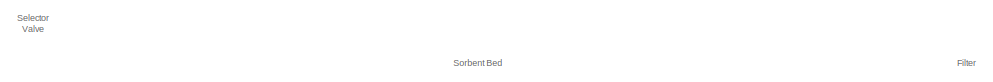
[diagram: root canvas - part 1/5, top center region]
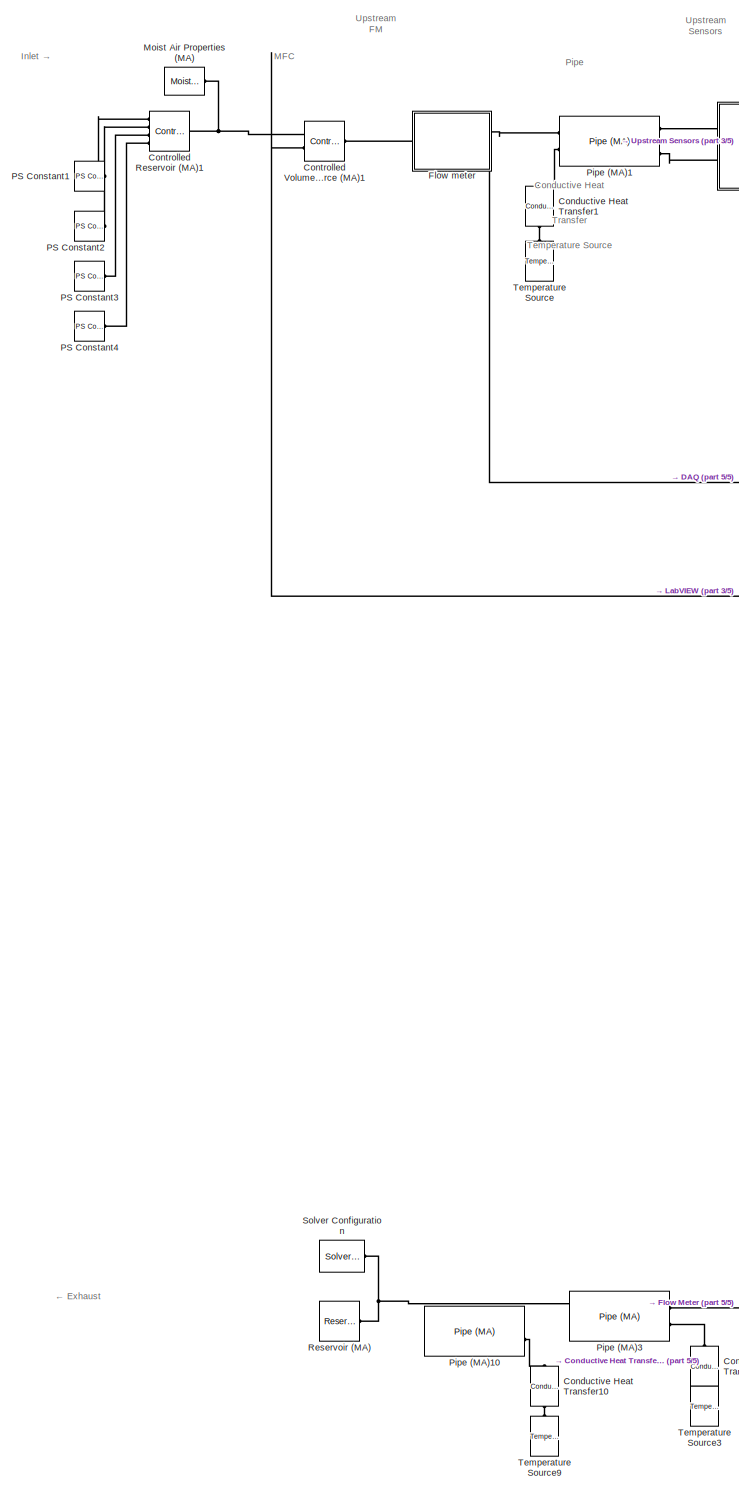
[diagram: root canvas - part 2/5, left side, full height]
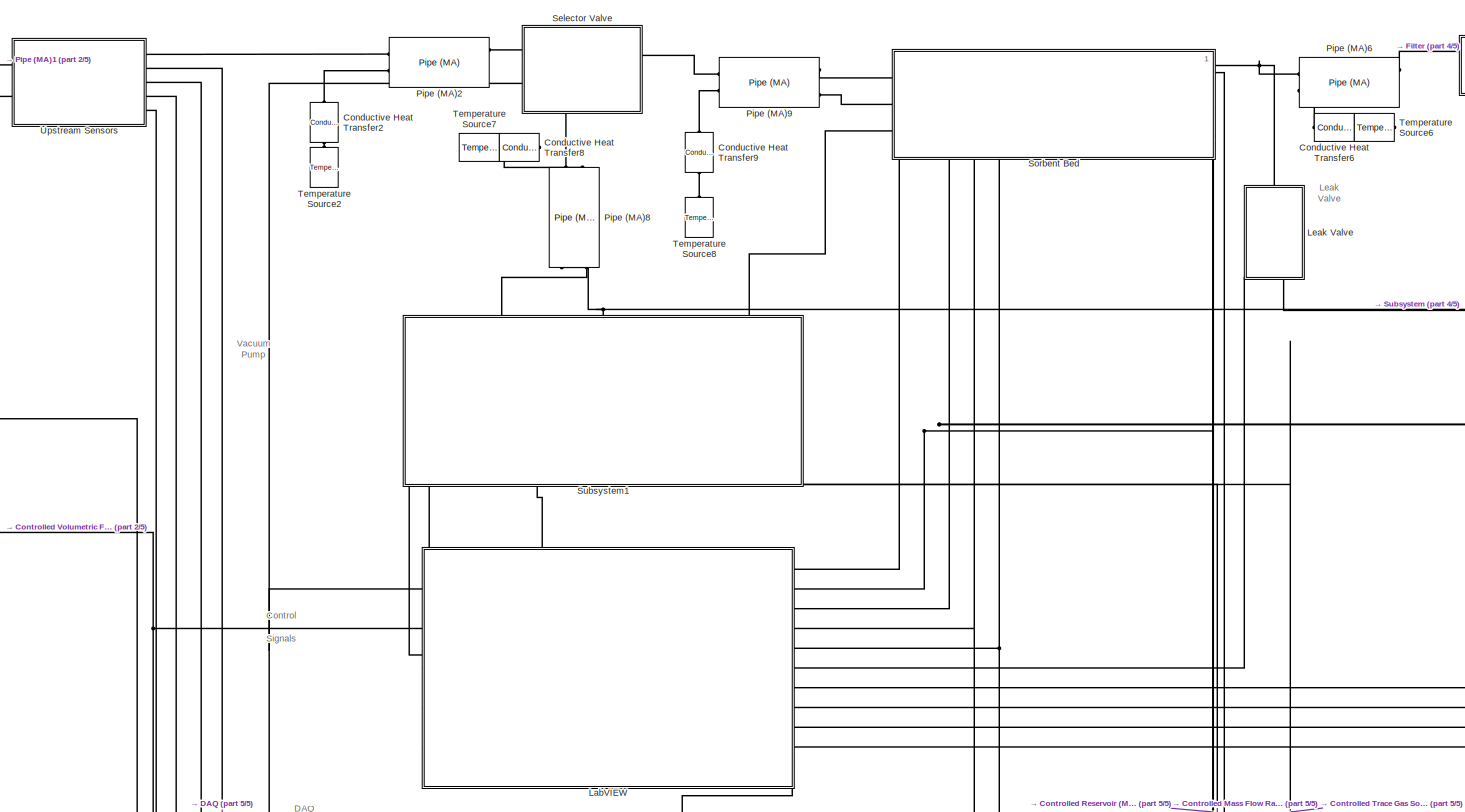
[diagram: root canvas - part 3/5, central region]
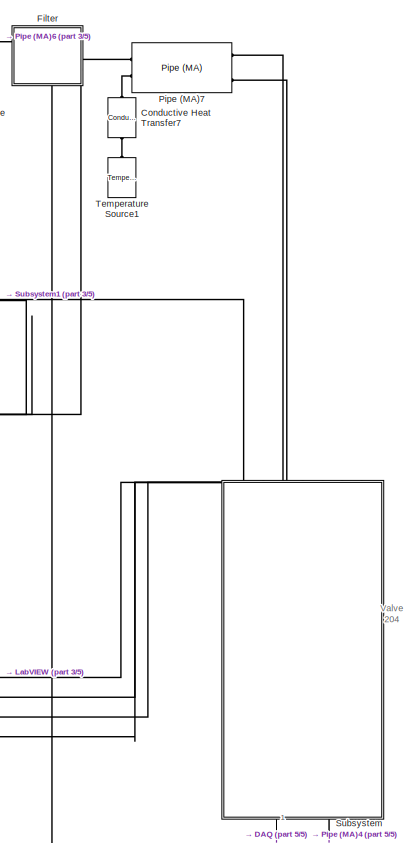
[diagram: root canvas - part 4/5, middle right region]
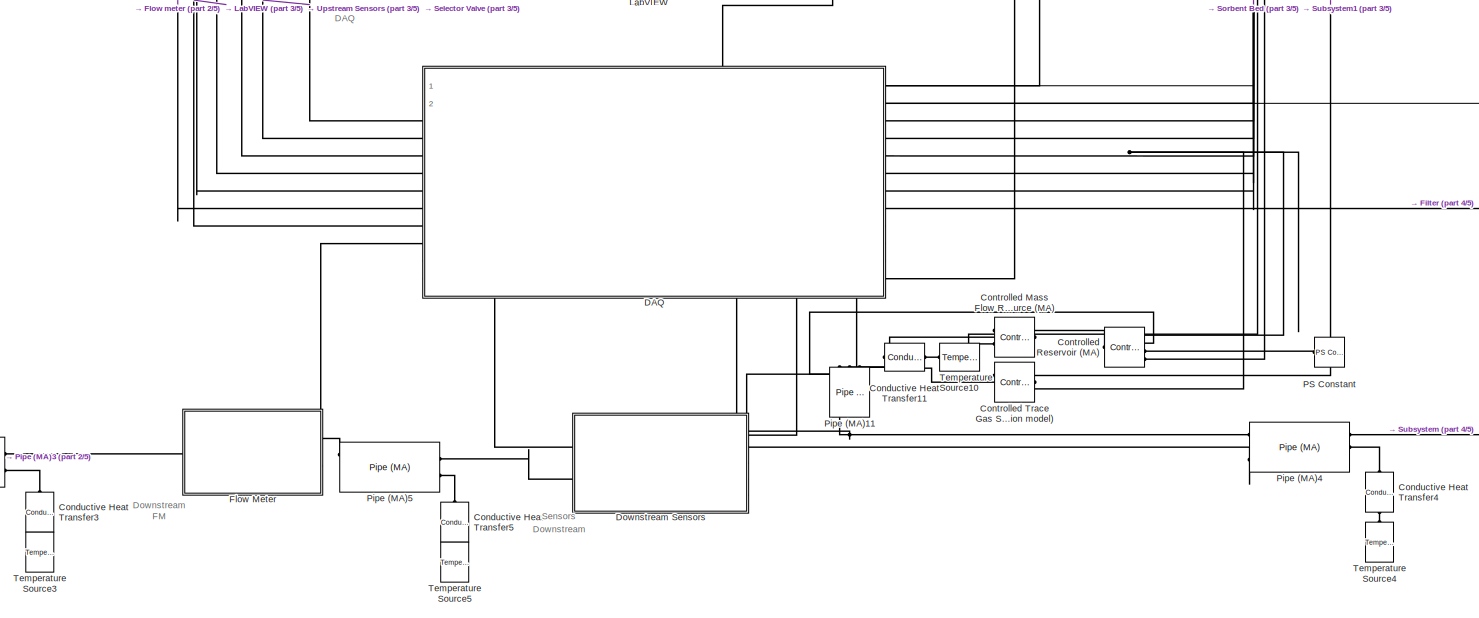
[diagram: root canvas - part 5/5, bottom center region]
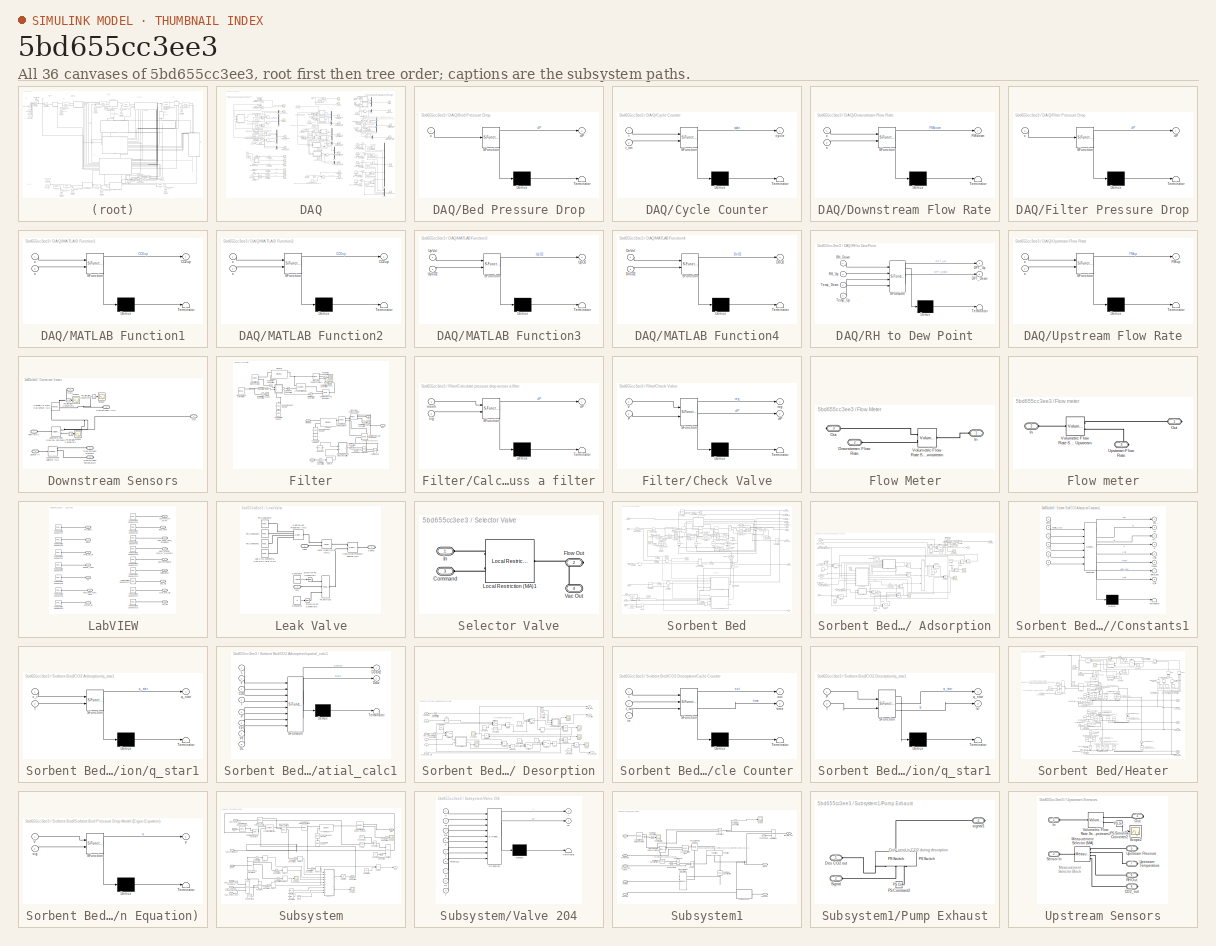
[diagram: thumbnail index - all 36 canvases of the model, root first then tree order]
MODEL slx_5bd655cc3ee3
KIND model
CONFIG AbsTol = auto
CONFIG EnableMultiTasking = off
CONFIG FixedStep = auto
CONFIG MaxStep = auto
CONFIG MinStep = auto
CONFIG RelTol = 1e-3
CONFIG SampleTimeConstraint = Unconstrained
CONFIG SolverName = VariableStepAuto
CONFIG StartTime = 0.0
CONFIG StopTime = 1000
BLOCK [Reference] Conductive Heat Transfer1  REF=fl_lib/Thermal/Thermal Elements/Conductive Heat
Transfer
  NameLocation = left
  Ports = [0, 0, 0, 0, 0, 1, 1]
  SourceBlock = fl_lib/Thermal/Thermal Elements/Conductive Heat\nTransfer
  SourceProductBaseCode = PW,SS,VE
  SourceType = Conductive Heat\nTransfer
BLOCK [Reference] Conductive Heat Transfer10  REF=fl_lib/Thermal/Thermal Elements/Conductive Heat
Transfer
  Commented = on
  NameLocation = left
  Ports = [0, 0, 0, 0, 0, 1, 1]
  SourceBlock = fl_lib/Thermal/Thermal Elements/Conductive Heat\nTransfer
  SourceProductBaseCode = PW,SS,VE
  SourceType = Conductive Heat\nTransfer
BLOCK [Reference] Conductive Heat Transfer11  REF=fl_lib/Thermal/Thermal Elements/Conductive Heat
Transfer
  NameLocation = top
  Ports = [0, 0, 0, 0, 0, 1, 1]
  SourceBlock = fl_lib/Thermal/Thermal Elements/Conductive Heat\nTransfer
  SourceProductBaseCode = PW,SS,VE
  SourceType = Conductive Heat\nTransfer
BLOCK [Reference] Conductive Heat Transfer2  REF=fl_lib/Thermal/Thermal Elements/Conductive Heat
Transfer
  NameLocation = left
  Ports = [0, 0, 0, 0, 0, 1, 1]
  SourceBlock = fl_lib/Thermal/Thermal Elements/Conductive Heat\nTransfer
  SourceProductBaseCode = PW,SS,VE
  SourceType = Conductive Heat\nTransfer
BLOCK [Reference] Conductive Heat Transfer3  REF=fl_lib/Thermal/Thermal Elements/Conductive Heat
Transfer
  NameLocation = left
  Ports = [0, 0, 0, 0, 0, 1, 1]
  SourceBlock = fl_lib/Thermal/Thermal Elements/Conductive Heat\nTransfer
  SourceProductBaseCode = PW,SS,VE
  SourceType = Conductive Heat\nTransfer
BLOCK [Reference] Conductive Heat Transfer4  REF=fl_lib/Thermal/Thermal Elements/Conductive Heat
Transfer
  NameLocation = left
  Ports = [0, 0, 0, 0, 0, 1, 1]
  SourceBlock = fl_lib/Thermal/Thermal Elements/Conductive Heat\nTransfer
  SourceProductBaseCode = PW,SS,VE
  SourceType = Conductive Heat\nTransfer
BLOCK [Reference] Conductive Heat Transfer5  REF=fl_lib/Thermal/Thermal Elements/Conductive Heat
Transfer
  NameLocation = left
  Ports = [0, 0, 0, 0, 0, 1, 1]
  SourceBlock = fl_lib/Thermal/Thermal Elements/Conductive Heat\nTransfer
  SourceProductBaseCode = PW,SS,VE
  SourceType = Conductive Heat\nTransfer
BLOCK [Reference] Conductive Heat Transfer6  REF=fl_lib/Thermal/Thermal Elements/Conductive Heat
Transfer
  Ports = [0, 0, 0, 0, 0, 1, 1]
  SourceBlock = fl_lib/Thermal/Thermal Elements/Conductive Heat\nTransfer
  SourceProductBaseCode = PW,SS,VE
  SourceType = Conductive Heat\nTransfer
BLOCK [Reference] Conductive Heat Transfer7  REF=fl_lib/Thermal/Thermal Elements/Conductive Heat
Transfer
  NameLocation = left
  Ports = [0, 0, 0, 0, 0, 1, 1]
  SourceBlock = fl_lib/Thermal/Thermal Elements/Conductive Heat\nTransfer
  SourceProductBaseCode = PW,SS,VE
  SourceType = Conductive Heat\nTransfer
BLOCK [Reference] Conductive Heat Transfer8  REF=fl_lib/Thermal/Thermal Elements/Conductive Heat
Transfer
  NameLocation = top
  Ports = [0, 0, 0, 0, 0, 1, 1]
  SourceBlock = fl_lib/Thermal/Thermal Elements/Conductive Heat\nTransfer
  SourceProductBaseCode = PW,SS,VE
  SourceType = Conductive Heat\nTransfer
BLOCK [Reference] Conductive Heat Transfer9  REF=fl_lib/Thermal/Thermal Elements/Conductive Heat
Transfer
  NameLocation = left
  Ports = [0, 0, 0, 0, 0, 1, 1]
  SourceBlock = fl_lib/Thermal/Thermal Elements/Conductive Heat\nTransfer
  SourceProductBaseCode = PW,SS,VE
  SourceType = Conductive Heat\nTransfer
BLOCK [Reference] Controlled Mass Flow Rate Source (MA)  REF=fl_lib/Moist Air/Sources/Controlled Mass Flow
Rate Source (MA)
  NameLocation = top
  Ports = [0, 0, 0, 0, 0, 2, 1]
  SourceBlock = fl_lib/Moist Air/Sources/Controlled Mass Flow\nRate Source (MA)
  SourceProductBaseCode = PW,SS,VE
  SourceType = Controlled Mass Flow\nRate Source (MA)
BLOCK [Reference] Controlled Reservoir (MA)  REF=fl_lib/Moist Air/Elements/Controlled Reservoir
(MA)
  NameLocation = top
  Ports = [0, 0, 0, 0, 0, 1, 4]
  SourceBlock = fl_lib/Moist Air/Elements/Controlled Reservoir\n(MA)
  SourceProductBaseCode = PW,SS,VE
  SourceType = Controlled Reservoir\n(MA)
BLOCK [Reference] Controlled Reservoir (MA)1  REF=fl_lib/Moist Air/Elements/Controlled Reservoir
(MA)
  Ports = [0, 0, 0, 0, 0, 1, 4]
  SourceBlock = fl_lib/Moist Air/Elements/Controlled Reservoir\n(MA)
  SourceProductBaseCode = PW,SS,VE
  SourceType = Controlled Reservoir\n(MA)
BLOCK [Reference] Controlled Trace Gas Source (Add//Remove CO2 that is calculated in the CO2 adsorption model)  REF=fl_lib/Moist Air/Sources/Moisture & Trace Gas
Sources/Controlled Trace Gas
Source (MA)
  Ports = [0, 0, 0, 0, 0, 1, 2]
  SourceBlock = fl_lib/Moist Air/Sources/Moisture & Trace Gas\nSources/Controlled Trace Gas\nSource (MA)
  SourceProductBaseCode = PW,SS,VE
  SourceType = Controlled Trace Gas\nSource (MA)
BLOCK [Reference] Controlled Volumetric Flow Rate Source (MA)1  REF=fl_lib/Moist Air/Sources/Controlled
Volumetric Flow Rate
Source (MA)
  Ports = [0, 0, 0, 0, 0, 2, 1]
  SourceBlock = fl_lib/Moist Air/Sources/Controlled\nVolumetric Flow Rate\nSource (MA)
  SourceProductBaseCode = PW,SS,VE
  SourceType = Controlled\nVolumetric Flow Rate\nSource (MA)
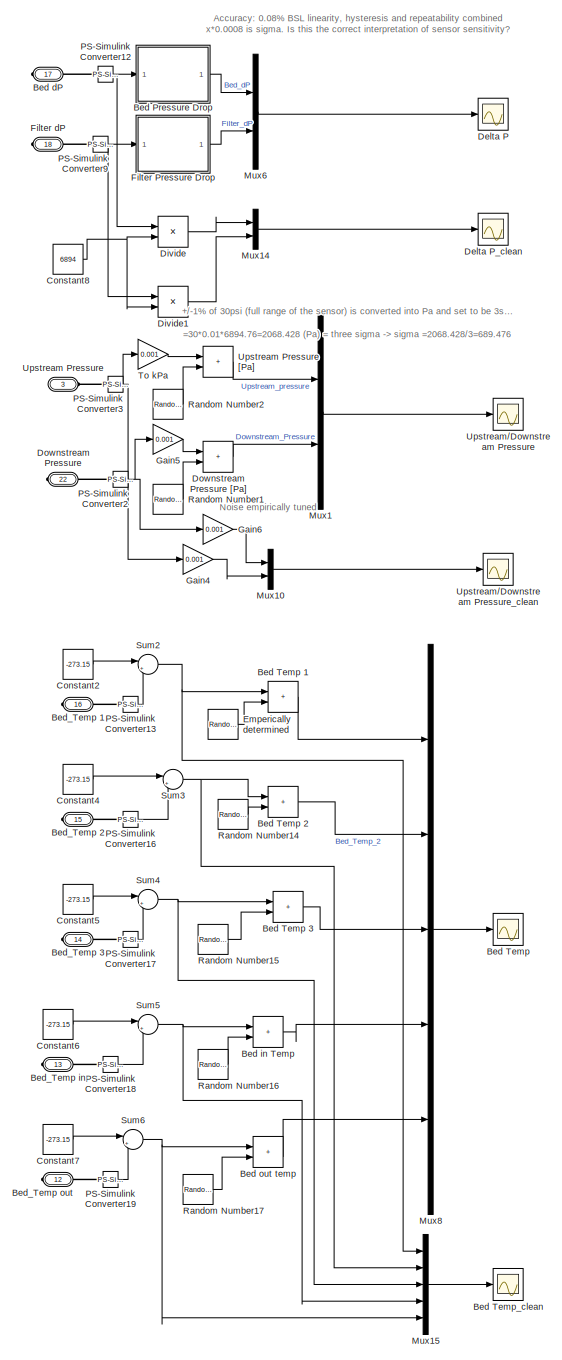
[diagram: DAQ - part 1/3, right side, full height]
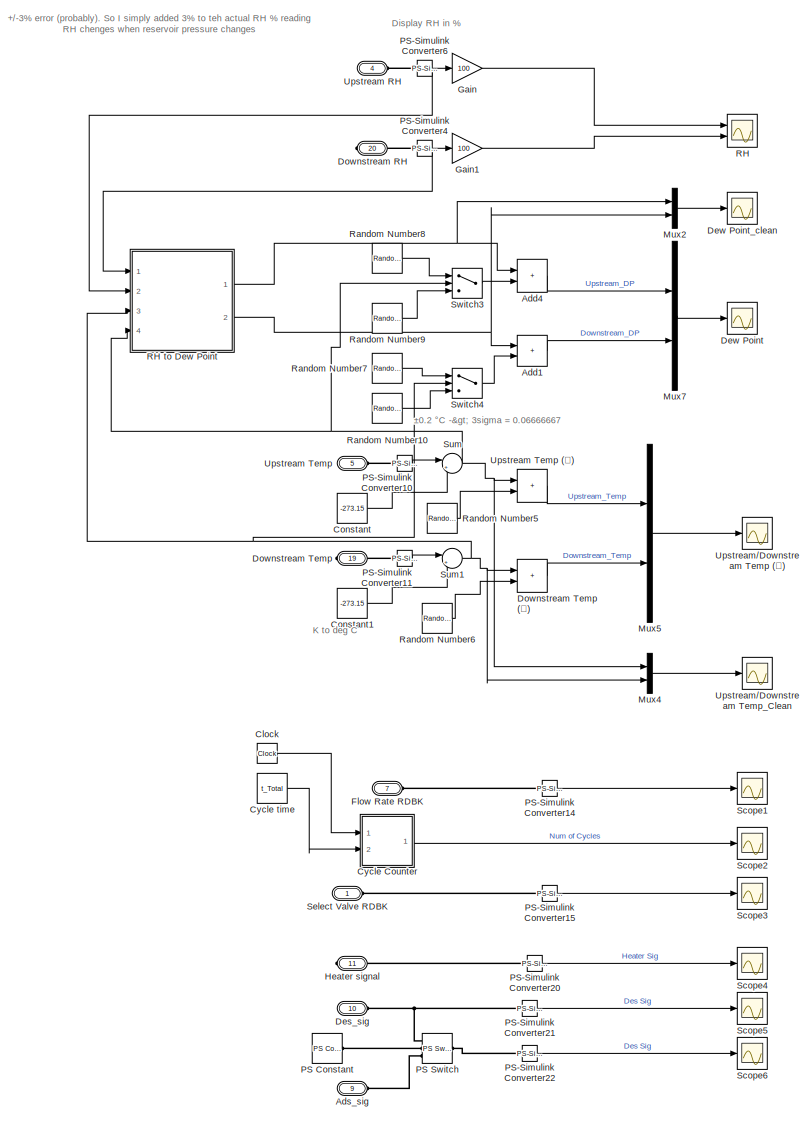
[diagram: DAQ - part 2/3, left side, full height]
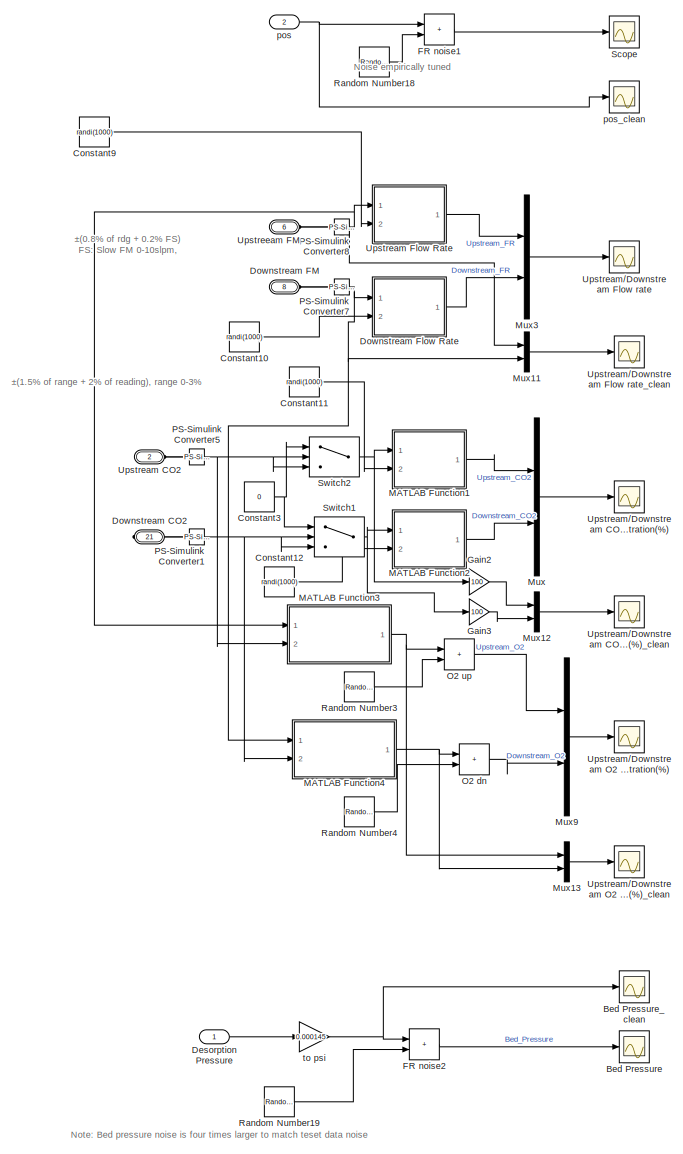
[diagram: DAQ - part 3/3, center side, full height]
BLOCK [SubSystem] DAQ
  PortSchema = {"entries":[{"content":{"sides":[{"content":{"connectorIds":["LConn1","LConn2","LConn3","LConn4","LConn5","LConn6","LConn7","LConn8"]},"type":"ConnectorPlacement.EquallySpacedRectSide","uuid":"4f30a82a-e779-4c66-a0b1-6ac9b4becc98"},{"content":{"connectorIds":["RConn1","In1","RConn2","RConn3","RConn4","RConn5","RConn6","RConn7","RConn8","In2"],"side":"RIGHT"},"type":"ConnectorPlacement.EquallySpace...<+727ch>
  Ports = [2, 0, 0, 0, 0, 10, 12]
  RequestExecContextInheritance = off
BLOCK [Sum] DAQ/Add1
  IconShape = rectangular
  Ports = [2, 1]
BLOCK [Sum] DAQ/Add4
  IconShape = rectangular
  Ports = [2, 1]
BLOCK [PMIOPort] DAQ/Ads_sig
  Port = 9
  Side = Left
BLOCK [Scope] DAQ/Bed Pressure
  Floating = off
  NumInputPorts = 1
  Ports = [1]
  ScopeSpecificationString = Simulink.scopes.TimeScopeBlockCfg('CurrentConfiguration', extmgr.ConfigurationSet(extmgr.Configuration('Core','General UI',true),extmgr.Configuration('Core','Source UI',true),extmgr.Configuration('Sources','WiredSimulink',true,'DataLoggingVariableName','ScopeBedPressure','DataLogging',true,'DataLoggingSaveFormat','StructureWithTime','SampleTime','1'),extmgr.Configuration('Visuals','Time Domain',tr...<+1535ch>
BLOCK [SubSystem] DAQ/Bed Pressure Drop
  ErrorFcn = Stateflow.Translate.translate
  PermitHierarchicalResolution = ExplicitOnly
  Ports = [1, 1]
  RequestExecContextInheritance = off
  SFBlockType = MATLAB Function
  TreatAsAtomicUnit = on
BLOCK [Demux] DAQ/Bed Pressure Drop/ Demux 
  Outputs = 1
  Ports = [1, 1]
BLOCK [S-Function] DAQ/Bed Pressure Drop/ SFunction 
  EnableBusSupport = on
  FunctionName = sf_sfun
  PortCounts = [1 2]
  Ports = [1, 2]
  SFcnIsStateOwnerBlock = off
  SFunctionDeploymentMode = off
  Tag = Stateflow S-Function 14
BLOCK [Terminator] DAQ/Bed Pressure Drop/ Terminator 
BLOCK [Outport] DAQ/Bed Pressure Drop/dP
BLOCK [Inport] DAQ/Bed Pressure Drop/x
BLOCK [Scope] DAQ/Bed Pressure_clean
  Floating = off
  NumInputPorts = 1
  Ports = [1]
  ScopeSpecificationString = Simulink.scopes.TimeScopeBlockCfg('CurrentConfiguration', extmgr.ConfigurationSet(extmgr.Configuration('Core','General UI',true),extmgr.Configuration('Core','Source UI',true),extmgr.Configuration('Sources','WiredSimulink',true,'DataLoggingVariableName','ScopeBedPressureClean','DataLogging',true,'DataLoggingSaveFormat','StructureWithTime','SampleTime','1'),extmgr.Configuration('Visuals','Time Domai...<+1541ch>
BLOCK [Scope] DAQ/Bed Temp
  Floating = off
  NumInputPorts = 1
  Ports = [1]
  ScopeSpecificationString = Simulink.scopes.TimeScopeBlockCfg('CurrentConfiguration', extmgr.ConfigurationSet(extmgr.Configuration('Core','General UI',true),extmgr.Configuration('Core','Source UI',true),extmgr.Configuration('Sources','WiredSimulink',true,'DataLoggingVariableName','ScopeDataBedTemp','DataLogging',true,'DataLoggingSaveFormat','StructureWithTime','SampleTime','1'),extmgr.Configuration('Visuals','Time Domain',tr...<+1731ch>
BLOCK [Sum] DAQ/Bed Temp 1
  IconShape = rectangular
  Ports = [2, 1]
BLOCK [Sum] DAQ/Bed Temp 2
  IconShape = rectangular
  Ports = [2, 1]
BLOCK [Sum] DAQ/Bed Temp 3
  IconShape = rectangular
  Ports = [2, 1]
BLOCK [Scope] DAQ/Bed Temp_clean
  Floating = off
  NumInputPorts = 1
  Ports = [1]
  ScopeSpecificationString = Simulink.scopes.TimeScopeBlockCfg('CurrentConfiguration', extmgr.ConfigurationSet(extmgr.Configuration('Core','General UI',true),extmgr.Configuration('Core','Source UI',true),extmgr.Configuration('Sources','WiredSimulink',true,'DataLoggingVariableName','ScopeDataBedTempClean','DataLogging',true,'DataLoggingSaveFormat','StructureWithTime','SampleTime','1'),extmgr.Configuration('Visuals','Time Domai...<+1703ch>
BLOCK [PMIOPort] DAQ/Bed dP
  Port = 17
  Side = Right
BLOCK [Sum] DAQ/Bed in Temp
  IconShape = rectangular
  Ports = [2, 1]
BLOCK [Sum] DAQ/Bed out temp
  IconShape = rectangular
  Ports = [2, 1]
BLOCK [PMIOPort] DAQ/Bed_Temp 1
  Port = 16
  Side = Right
BLOCK [PMIOPort] DAQ/Bed_Temp 2
  Port = 15
  Side = Right
BLOCK [PMIOPort] DAQ/Bed_Temp 3
  Port = 14
  Side = Right
BLOCK [PMIOPort] DAQ/Bed_Temp in
  Port = 13
  Side = Right
BLOCK [PMIOPort] DAQ/Bed_Temp out
  Port = 12
  Side = Right
BLOCK [Clock] DAQ/Clock
  Decimation = 1
BLOCK [Constant] DAQ/Constant
  Value = -273.15
BLOCK [Constant] DAQ/Constant1
  Value = -273.15
BLOCK [Constant] DAQ/Constant10
  Value = randi(1000)
BLOCK [Constant] DAQ/Constant11
  Value = randi(1000)
BLOCK [Constant] DAQ/Constant12
  Value = randi(1000)
BLOCK [Constant] DAQ/Constant2
  Value = -273.15
BLOCK [Constant] DAQ/Constant3
  Value = 0
BLOCK [Constant] DAQ/Constant4
  Value = -273.15
BLOCK [Constant] DAQ/Constant5
  Value = -273.15
BLOCK [Constant] DAQ/Constant6
  Value = -273.15
BLOCK [Constant] DAQ/Constant7
  Value = -273.15
BLOCK [Constant] DAQ/Constant8
  Value = 6894
BLOCK [Constant] DAQ/Constant9
  Value = randi(1000)
BLOCK [SubSystem] DAQ/Cycle Counter
  ErrorFcn = Stateflow.Translate.translate
  PermitHierarchicalResolution = ExplicitOnly
  Ports = [2, 1]
  RequestExecContextInheritance = off
  SFBlockType = MATLAB Function
  TreatAsAtomicUnit = on
BLOCK [Demux] DAQ/Cycle Counter/ Demux 
  Outputs = 1
  Ports = [1, 1]
BLOCK [S-Function] DAQ/Cycle Counter/ SFunction 
  EnableBusSupport = on
  FunctionName = sf_sfun
  PortCounts = [2 2]
  Ports = [2, 2]
  SFcnIsStateOwnerBlock = off
  SFunctionDeploymentMode = off
  Tag = Stateflow S-Function 4
BLOCK [Terminator] DAQ/Cycle Counter/ Terminator 
BLOCK [Outport] DAQ/Cycle Counter/cycle
BLOCK [Inport] DAQ/Cycle Counter/t
BLOCK [Inport] DAQ/Cycle Counter/t_tot
  Port = 2
BLOCK [Constant] DAQ/Cycle time
  Value = t_Total
BLOCK [Scope] DAQ/Delta P
  Floating = off
  NumInputPorts = 1
  Ports = [1]
  ScopeSpecificationString = Simulink.scopes.TimeScopeBlockCfg('CurrentConfiguration', extmgr.ConfigurationSet(extmgr.Configuration('Core','General UI',true),extmgr.Configuration('Core','Source UI',true),extmgr.Configuration('Sources','WiredSimulink',true,'DataLoggingVariableName','ScopeDataDeltaP','DataLogging',true,'DataLoggingSaveFormat','StructureWithTime','SampleTime','1'),extmgr.Configuration('Visuals','Time Domain',tru...<+1608ch>
BLOCK [Scope] DAQ/Delta P_clean
  Floating = off
  NumInputPorts = 1
  Ports = [1]
  ScopeSpecificationString = Simulink.scopes.TimeScopeBlockCfg('CurrentConfiguration', extmgr.ConfigurationSet(extmgr.Configuration('Core','General UI',true),extmgr.Configuration('Core','Source UI',true),extmgr.Configuration('Sources','WiredSimulink',true,'DataLoggingVariableName','ScopeDataDeltaPClean','DataLogging',true,'DataLoggingSaveFormat','StructureWithTime','SampleTime','1'),extmgr.Configuration('Visuals','Time Domain...<+1613ch>
BLOCK [PMIOPort] DAQ/Des_sig
  Port = 10
  Side = Left
BLOCK [Inport] DAQ/Desorption Pressure
BLOCK [Scope] DAQ/Dew Point
  Floating = off
  NumInputPorts = 1
  Ports = [1]
  ScopeSpecificationString = Simulink.scopes.TimeScopeBlockCfg('CurrentConfiguration', extmgr.ConfigurationSet(extmgr.Configuration('Core','General UI',true),extmgr.Configuration('Core','Source UI',true),extmgr.Configuration('Sources','WiredSimulink',true,'DataLoggingVariableName','ScopeDataDewPoint','SampleTime','1','DataLogging',true,'DataLoggingSaveFormat','StructureWithTime'),extmgr.Configuration('Visuals','Time Domain',t...<+1487ch>
BLOCK [Scope] DAQ/Dew Point_clean
  Floating = off
  NumInputPorts = 1
  Ports = [1]
  ScopeSpecificationString = Simulink.scopes.TimeScopeBlockCfg('CurrentConfiguration', extmgr.ConfigurationSet(extmgr.Configuration('Core','General UI',true),extmgr.Configuration('Core','Source UI',true),extmgr.Configuration('Sources','WiredSimulink',true,'DataLoggingVariableName','ScopeDataDewPointClean','SampleTime','1','DataLogging',true,'DataLoggingSaveFormat','StructureWithTime'),extmgr.Configuration('Visuals','Time Doma...<+1506ch>
BLOCK [Product] DAQ/Divide
  Inputs = */
  Ports = [2, 1]
BLOCK [Product] DAQ/Divide1
  Inputs = */
  Ports = [2, 1]
BLOCK [PMIOPort] DAQ/Downstream CO2
  Port = 21
  Side = Right
BLOCK [PMIOPort] DAQ/Downstream FM
  Port = 8
  Side = Left
BLOCK [SubSystem] DAQ/Downstream Flow Rate
  ErrorFcn = Stateflow.Translate.translate
  PermitHierarchicalResolution = ExplicitOnly
  Ports = [2, 1]
  RequestExecContextInheritance = off
  SFBlockType = MATLAB Function
  TreatAsAtomicUnit = on
BLOCK [Demux] DAQ/Downstream Flow Rate/ Demux 
  Outputs = 1
  Ports = [1, 1]
BLOCK [S-Function] DAQ/Downstream Flow Rate/ SFunction 
  EnableBusSupport = on
  FunctionName = sf_sfun
  PortCounts = [2 2]
  Ports = [2, 2]
  SFcnIsStateOwnerBlock = off
  SFunctionDeploymentMode = off
  Tag = Stateflow S-Function 10
BLOCK [Terminator] DAQ/Downstream Flow Rate/ Terminator 
BLOCK [Outport] DAQ/Downstream Flow Rate/FMdown
BLOCK [Inport] DAQ/Downstream Flow Rate/s
  Port = 2
BLOCK [Inport] DAQ/Downstream Flow Rate/x
BLOCK [PMIOPort] DAQ/Downstream Pressure
  Port = 22
  Side = Right
BLOCK [Sum] DAQ/Downstream Pressure [Pa]
  IconShape = rectangular
  Ports = [2, 1]
BLOCK [PMIOPort] DAQ/Downstream RH
  Port = 20
  Side = Right
BLOCK [PMIOPort] DAQ/Downstream Temp
  Port = 19
  Side = Right
BLOCK [Sum] DAQ/Downstream Temp (℃)
  IconShape = rectangular
  Ports = [2, 1]
BLOCK [RandomNumber] DAQ/Emperically determined
  SampleTime = 1
  Seed = randi(1000)
  Variance = 0.0197^2
  VectorParams1D = off
BLOCK [Sum] DAQ/FR noise1
  IconShape = rectangular
  Ports = [2, 1]
BLOCK [Sum] DAQ/FR noise2
  IconShape = rectangular
  Ports = [2, 1]
BLOCK [SubSystem] DAQ/Filter Pressure Drop
  ErrorFcn = Stateflow.Translate.translate
  PermitHierarchicalResolution = ExplicitOnly
  Ports = [1, 1]
  RequestExecContextInheritance = off
  SFBlockType = MATLAB Function
  TreatAsAtomicUnit = on
BLOCK [Demux] DAQ/Filter Pressure Drop/ Demux 
  Outputs = 1
  Ports = [1, 1]
BLOCK [S-Function] DAQ/Filter Pressure Drop/ SFunction 
  EnableBusSupport = on
  FunctionName = sf_sfun
  PortCounts = [1 2]
  Ports = [1, 2]
  SFcnIsStateOwnerBlock = off
  SFunctionDeploymentMode = off
  Tag = Stateflow S-Function 11
BLOCK [Terminator] DAQ/Filter Pressure Drop/ Terminator 
BLOCK [Outport] DAQ/Filter Pressure Drop/dP
BLOCK [Inport] DAQ/Filter Pressure Drop/x
BLOCK [PMIOPort] DAQ/Filter dP
  Port = 18
  Side = Right
BLOCK [PMIOPort] DAQ/Flow Rate RDBK
  Port = 7
  Side = Left
BLOCK [Gain] DAQ/Gain
  Gain = 100
BLOCK [Gain] DAQ/Gain1
  Gain = 100
BLOCK [Gain] DAQ/Gain2
  Gain = 100
BLOCK [Gain] DAQ/Gain3
  Gain = 100
BLOCK [Gain] DAQ/Gain4
  Gain = 0.001
BLOCK [Gain] DAQ/Gain5
  Gain = 0.001
BLOCK [Gain] DAQ/Gain6
  Gain = 0.001
BLOCK [PMIOPort] DAQ/Heater signal
  Port = 11
  Side = Right
BLOCK [SubSystem] DAQ/MATLAB Function1
  ErrorFcn = Stateflow.Translate.translate
  PermitHierarchicalResolution = ExplicitOnly
  Ports = [2, 1]
  RequestExecContextInheritance = off
  SFBlockType = MATLAB Function
  TreatAsAtomicUnit = on
BLOCK [Demux] DAQ/MATLAB Function1/ Demux 
  Outputs = 1
  Ports = [1, 1]
BLOCK [S-Function] DAQ/MATLAB Function1/ SFunction 
  EnableBusSupport = on
  FunctionName = sf_sfun
  PortCounts = [2 2]
  Ports = [2, 2]
  SFcnIsStateOwnerBlock = off
  SFunctionDeploymentMode = off
  Tag = Stateflow S-Function 3
BLOCK [Terminator] DAQ/MATLAB Function1/ Terminator 
BLOCK [Outport] DAQ/MATLAB Function1/CO2up
BLOCK [Inport] DAQ/MATLAB Function1/s
  Port = 2
BLOCK [Inport] DAQ/MATLAB Function1/x
BLOCK [SubSystem] DAQ/MATLAB Function2
  ErrorFcn = Stateflow.Translate.translate
  PermitHierarchicalResolution = ExplicitOnly
  Ports = [2, 1]
  RequestExecContextInheritance = off
  SFBlockType = MATLAB Function
  TreatAsAtomicUnit = on
BLOCK [Demux] DAQ/MATLAB Function2/ Demux 
  Outputs = 1
  Ports = [1, 1]
BLOCK [S-Function] DAQ/MATLAB Function2/ SFunction 
  EnableBusSupport = on
  FunctionName = sf_sfun
  PortCounts = [2 2]
  Ports = [2, 2]
  SFcnIsStateOwnerBlock = off
  SFunctionDeploymentMode = off
  Tag = Stateflow S-Function 5
BLOCK [Terminator] DAQ/MATLAB Function2/ Terminator 
BLOCK [Outport] DAQ/MATLAB Function2/CO2up
BLOCK [Inport] DAQ/MATLAB Function2/s
  Port = 2
BLOCK [Inport] DAQ/MATLAB Function2/x
BLOCK [SubSystem] DAQ/MATLAB Function3
  ErrorFcn = Stateflow.Translate.translate
  PermitHierarchicalResolution = ExplicitOnly
  Ports = [2, 1]
  RequestExecContextInheritance = off
  SFBlockType = MATLAB Function
  TreatAsAtomicUnit = on
BLOCK [Demux] DAQ/MATLAB Function3/ Demux 
  Outputs = 1
  Ports = [1, 1]
BLOCK [S-Function] DAQ/MATLAB Function3/ SFunction 
  EnableBusSupport = on
  FunctionName = sf_sfun
  PortCounts = [2 2]
  Ports = [2, 2]
  SFcnIsStateOwnerBlock = off
  SFunctionDeploymentMode = off
  Tag = Stateflow S-Function 2
BLOCK [Terminator] DAQ/MATLAB Function3/ Terminator 
BLOCK [Inport] DAQ/MATLAB Function3/UpCO2
  Port = 2
BLOCK [Outport] DAQ/MATLAB Function3/UpO2
BLOCK [Inport] DAQ/MATLAB Function3/UpVol
BLOCK [SubSystem] DAQ/MATLAB Function4
  ErrorFcn = Stateflow.Translate.translate
  PermitHierarchicalResolution = ExplicitOnly
  Ports = [2, 1]
  RequestExecContextInheritance = off
  SFBlockType = MATLAB Function
  TreatAsAtomicUnit = on
BLOCK [Demux] DAQ/MATLAB Function4/ Demux 
  Outputs = 1
  Ports = [1, 1]
BLOCK [S-Function] DAQ/MATLAB Function4/ SFunction 
  EnableBusSupport = on
  FunctionName = sf_sfun
  PortCounts = [2 2]
  Ports = [2, 2]
  SFcnIsStateOwnerBlock = off
  SFunctionDeploymentMode = off
  Tag = Stateflow S-Function 8
BLOCK [Terminator] DAQ/MATLAB Function4/ Terminator 
BLOCK [Inport] DAQ/MATLAB Function4/DnCO2
  Port = 2
BLOCK [Outport] DAQ/MATLAB Function4/DnO2
BLOCK [Inport] DAQ/MATLAB Function4/DnVol
BLOCK [Mux] DAQ/Mux
  DisplayOption = bar
  Inputs = 2
  Ports = [2, 1]
BLOCK [Mux] DAQ/Mux1
  DisplayOption = bar
  Inputs = 2
  Ports = [2, 1]
BLOCK [Mux] DAQ/Mux10
  DisplayOption = bar
  Inputs = 2
  Ports = [2, 1]
BLOCK [Mux] DAQ/Mux11
  DisplayOption = bar
  Inputs = 2
  Ports = [2, 1]
BLOCK [Mux] DAQ/Mux12
  DisplayOption = bar
  Inputs = 2
  Ports = [2, 1]
BLOCK [Mux] DAQ/Mux13
  DisplayOption = bar
  Inputs = 2
  Ports = [2, 1]
BLOCK [Mux] DAQ/Mux14
  DisplayOption = bar
  Inputs = 2
  Ports = [2, 1]
BLOCK [Mux] DAQ/Mux15
  DisplayOption = bar
  Inputs = 5
  Ports = [5, 1]
BLOCK [Mux] DAQ/Mux2
  DisplayOption = bar
  Inputs = 2
  Ports = [2, 1]
BLOCK [Mux] DAQ/Mux3
  DisplayOption = bar
  Inputs = 2
  Ports = [2, 1]
BLOCK [Mux] DAQ/Mux4
  DisplayOption = bar
  Inputs = 2
  Ports = [2, 1]
BLOCK [Mux] DAQ/Mux5
  DisplayOption = bar
  Inputs = 2
  Ports = [2, 1]
BLOCK [Mux] DAQ/Mux6
  DisplayOption = bar
  Inputs = 2
  Ports = [2, 1]
BLOCK [Mux] DAQ/Mux7
  DisplayOption = bar
  Inputs = 2
  Ports = [2, 1]
BLOCK [Mux] DAQ/Mux8
  DisplayOption = bar
  Inputs = 5
  Ports = [5, 1]
BLOCK [Mux] DAQ/Mux9
  DisplayOption = bar
  Inputs = 2
  Ports = [2, 1]
BLOCK [Sum] DAQ/O2 dn
  IconShape = rectangular
  Ports = [2, 1]
BLOCK [Sum] DAQ/O2 up
  IconShape = rectangular
  Ports = [2, 1]
BLOCK [Reference] DAQ/PS Constant  REF=fl_lib/Physical Signals/Sources/PS Constant
  Ports = [0, 0, 0, 0, 0, 0, 1]
  SourceBlock = fl_lib/Physical Signals/Sources/PS Constant
  SourceProductBaseCode = PW,SS,VE
  SourceType = PS Constant
BLOCK [Reference] DAQ/PS Switch  REF=fl_lib/Physical Signals/Nonlinear Operators/PS Switch
  Ports = [0, 0, 0, 0, 0, 3, 1]
  SourceBlock = fl_lib/Physical Signals/Nonlinear Operators/PS Switch
  SourceProductBaseCode = PW,SS,VE
  SourceType = PS Switch
BLOCK [Reference] DAQ/PS-Simulink Converter1  REF=nesl_utility/PS-Simulink
Converter
  Ports = [0, 1, 0, 0, 0, 1]
  SourceBlock = nesl_utility/PS-Simulink\nConverter
  SourceProductBaseCode = SS,PW,VE
  SourceType = PS-Simulink\nConverter
BLOCK [Reference] DAQ/PS-Simulink Converter10  REF=nesl_utility/PS-Simulink
Converter
  Ports = [0, 1, 0, 0, 0, 1]
  SourceBlock = nesl_utility/PS-Simulink\nConverter
  SourceProductBaseCode = SS,PW,VE
  SourceType = PS-Simulink\nConverter
BLOCK [Reference] DAQ/PS-Simulink Converter11  REF=nesl_utility/PS-Simulink
Converter
  Ports = [0, 1, 0, 0, 0, 1]
  SourceBlock = nesl_utility/PS-Simulink\nConverter
  SourceProductBaseCode = SS,PW,VE
  SourceType = PS-Simulink\nConverter
BLOCK [Reference] DAQ/PS-Simulink Converter12  REF=nesl_utility/PS-Simulink
Converter
  Ports = [0, 1, 0, 0, 0, 1]
  SourceBlock = nesl_utility/PS-Simulink\nConverter
  SourceProductBaseCode = SS,PW,VE
  SourceType = PS-Simulink\nConverter
BLOCK [Reference] DAQ/PS-Simulink Converter13  REF=nesl_utility/PS-Simulink
Converter
  Ports = [0, 1, 0, 0, 0, 1]
  SourceBlock = nesl_utility/PS-Simulink\nConverter
  SourceProductBaseCode = SS,PW,VE
  SourceType = PS-Simulink\nConverter
BLOCK [Reference] DAQ/PS-Simulink Converter14  REF=nesl_utility/PS-Simulink
Converter
  Ports = [0, 1, 0, 0, 0, 1]
  SourceBlock = nesl_utility/PS-Simulink\nConverter
  SourceProductBaseCode = SS,PW,VE
  SourceType = PS-Simulink\nConverter
BLOCK [Reference] DAQ/PS-Simulink Converter15  REF=nesl_utility/PS-Simulink
Converter
  Ports = [0, 1, 0, 0, 0, 1]
  SourceBlock = nesl_utility/PS-Simulink\nConverter
  SourceProductBaseCode = SS,PW,VE
  SourceType = PS-Simulink\nConverter
BLOCK [Reference] DAQ/PS-Simulink Converter16  REF=nesl_utility/PS-Simulink
Converter
  Ports = [0, 1, 0, 0, 0, 1]
  SourceBlock = nesl_utility/PS-Simulink\nConverter
  SourceProductBaseCode = SS,PW,VE
  SourceType = PS-Simulink\nConverter
BLOCK [Reference] DAQ/PS-Simulink Converter17  REF=nesl_utility/PS-Simulink
Converter
  Ports = [0, 1, 0, 0, 0, 1]
  SourceBlock = nesl_utility/PS-Simulink\nConverter
  SourceProductBaseCode = SS,PW,VE
  SourceType = PS-Simulink\nConverter
BLOCK [Reference] DAQ/PS-Simulink Converter18  REF=nesl_utility/PS-Simulink
Converter
  Ports = [0, 1, 0, 0, 0, 1]
  SourceBlock = nesl_utility/PS-Simulink\nConverter
  SourceProductBaseCode = SS,PW,VE
  SourceType = PS-Simulink\nConverter
BLOCK [Reference] DAQ/PS-Simulink Converter19  REF=nesl_utility/PS-Simulink
Converter
  Ports = [0, 1, 0, 0, 0, 1]
  SourceBlock = nesl_utility/PS-Simulink\nConverter
  SourceProductBaseCode = SS,PW,VE
  SourceType = PS-Simulink\nConverter
BLOCK [Reference] DAQ/PS-Simulink Converter2  REF=nesl_utility/PS-Simulink
Converter
  Ports = [0, 1, 0, 0, 0, 1]
  SourceBlock = nesl_utility/PS-Simulink\nConverter
  SourceProductBaseCode = SS,PW,VE
  SourceType = PS-Simulink\nConverter
BLOCK [Reference] DAQ/PS-Simulink Converter20  REF=nesl_utility/PS-Simulink
Converter
  Ports = [0, 1, 0, 0, 0, 1]
  SourceBlock = nesl_utility/PS-Simulink\nConverter
  SourceProductBaseCode = SS,PW,VE
  SourceType = PS-Simulink\nConverter
BLOCK [Reference] DAQ/PS-Simulink Converter21  REF=nesl_utility/PS-Simulink
Converter
  Ports = [0, 1, 0, 0, 0, 1]
  SourceBlock = nesl_utility/PS-Simulink\nConverter
  SourceProductBaseCode = SS,PW,VE
  SourceType = PS-Simulink\nConverter
BLOCK [Reference] DAQ/PS-Simulink Converter22  REF=nesl_utility/PS-Simulink
Converter
  Ports = [0, 1, 0, 0, 0, 1]
  SourceBlock = nesl_utility/PS-Simulink\nConverter
  SourceProductBaseCode = SS,PW,VE
  SourceType = PS-Simulink\nConverter
BLOCK [Reference] DAQ/PS-Simulink Converter3  REF=nesl_utility/PS-Simulink
Converter
  Ports = [0, 1, 0, 0, 0, 1]
  SourceBlock = nesl_utility/PS-Simulink\nConverter
  SourceProductBaseCode = SS,PW,VE
  SourceType = PS-Simulink\nConverter
BLOCK [Reference] DAQ/PS-Simulink Converter4  REF=nesl_utility/PS-Simulink
Converter
  Ports = [0, 1, 0, 0, 0, 1]
  SourceBlock = nesl_utility/PS-Simulink\nConverter
  SourceProductBaseCode = SS,PW,VE
  SourceType = PS-Simulink\nConverter
BLOCK [Reference] DAQ/PS-Simulink Converter5  REF=nesl_utility/PS-Simulink
Converter
  Ports = [0, 1, 0, 0, 0, 1]
  SourceBlock = nesl_utility/PS-Simulink\nConverter
  SourceProductBaseCode = SS,PW,VE
  SourceType = PS-Simulink\nConverter
BLOCK [Reference] DAQ/PS-Simulink Converter6  REF=nesl_utility/PS-Simulink
Converter
  Ports = [0, 1, 0, 0, 0, 1]
  SourceBlock = nesl_utility/PS-Simulink\nConverter
  SourceProductBaseCode = SS,PW,VE
  SourceType = PS-Simulink\nConverter
BLOCK [Reference] DAQ/PS-Simulink Converter7  REF=nesl_utility/PS-Simulink
Converter
  Ports = [0, 1, 0, 0, 0, 1]
  SourceBlock = nesl_utility/PS-Simulink\nConverter
  SourceProductBaseCode = SS,PW,VE
  SourceType = PS-Simulink\nConverter
BLOCK [Reference] DAQ/PS-Simulink Converter8  REF=nesl_utility/PS-Simulink
Converter
  Ports = [0, 1, 0, 0, 0, 1]
  SourceBlock = nesl_utility/PS-Simulink\nConverter
  SourceProductBaseCode = SS,PW,VE
  SourceType = PS-Simulink\nConverter
BLOCK [Reference] DAQ/PS-Simulink Converter9  REF=nesl_utility/PS-Simulink
Converter
  Ports = [0, 1, 0, 0, 0, 1]
  SourceBlock = nesl_utility/PS-Simulink\nConverter
  SourceProductBaseCode = SS,PW,VE
  SourceType = PS-Simulink\nConverter
BLOCK [Scope] DAQ/RH
  Floating = off
  NumInputPorts = 2
  Ports = [2]
  ScopeSpecificationString = Simulink.scopes.TimeScopeBlockCfg('CurrentConfiguration', extmgr.ConfigurationSet(extmgr.Configuration('Core','General UI',true),extmgr.Configuration('Core','Source UI',true),extmgr.Configuration('Sources','WiredSimulink',true,'DataLoggingVariableName','ScopeDataRH','SampleTime','1','DataLogging',true,'DataLoggingSaveFormat','StructureWithTime'),extmgr.Configuration('Visuals','Time Domain',true,'S...<+1446ch>
BLOCK [SubSystem] DAQ/RH to Dew Point
  ErrorFcn = Stateflow.Translate.translate
  PermitHierarchicalResolution = ExplicitOnly
  Ports = [4, 2]
  RequestExecContextInheritance = off
  SFBlockType = MATLAB Function
  TreatAsAtomicUnit = on
BLOCK [Demux] DAQ/RH to Dew Point/ Demux 
  Outputs = 1
  Ports = [1, 1]
BLOCK [S-Function] DAQ/RH to Dew Point/ SFunction 
  EnableBusSupport = on
  FunctionName = sf_sfun
  PortCounts = [4 3]
  Ports = [4, 3]
  SFcnIsStateOwnerBlock = off
  SFunctionDeploymentMode = off
  Tag = Stateflow S-Function 7
BLOCK [Terminator] DAQ/RH to Dew Point/ Terminator 
BLOCK [Outport] DAQ/RH to Dew Point/DPT_Down
  Port = 2
BLOCK [Outport] DAQ/RH to Dew Point/DPT_Up
BLOCK [Inport] DAQ/RH to Dew Point/RH_Down
BLOCK [Inport] DAQ/RH to Dew Point/RH_Up
  Port = 2
BLOCK [Inport] DAQ/RH to Dew Point/Temp_Down
  Port = 3
BLOCK [Inport] DAQ/RH to Dew Point/Temp_Up
  Port = 4
BLOCK [RandomNumber] DAQ/Random Number1
  SampleTime = 1
  Seed = randi(1000)
  Variance = 0.0068
  VectorParams1D = off
BLOCK [RandomNumber] DAQ/Random Number10
  SampleTime = 1
  Seed = randi(1000)
  Variance = (4/3)^2
  VectorParams1D = off
BLOCK [RandomNumber] DAQ/Random Number14
  SampleTime = 1
  Seed = randi(1000)
  Variance = 0.0197^2
  VectorParams1D = off
BLOCK [RandomNumber] DAQ/Random Number15
  SampleTime = 1
  Seed = randi(1000)
  Variance = 0.0197^2
  VectorParams1D = off
BLOCK [RandomNumber] DAQ/Random Number16
  SampleTime = 1
  Seed = randi(1000)
  Variance = 0.0197^2
  VectorParams1D = off
BLOCK [RandomNumber] DAQ/Random Number17
  SampleTime = 1
  Seed = randi(1000)
  Variance = 0.0197^2
  VectorParams1D = off
BLOCK [RandomNumber] DAQ/Random Number18
  SampleTime = 1
  Seed = randi(1000)
  Variance = 0.0542
  VectorParams1D = off
BLOCK [RandomNumber] DAQ/Random Number19
  SampleTime = 1
  Seed = randi(1000)
  Variance = 0.0326^2
  VectorParams1D = off
BLOCK [RandomNumber] DAQ/Random Number2
  SampleTime = 1
  Seed = randi(1000)
  Variance = 0.0068
  VectorParams1D = off
BLOCK [RandomNumber] DAQ/Random Number3
  SampleTime = 1
  Seed = randi(1000)
  Variance = 0.0175^2
  VectorParams1D = off
BLOCK [RandomNumber] DAQ/Random Number4
  SampleTime = 1
  Seed = randi(1000)
  Variance = 0.0175^2
  VectorParams1D = off
BLOCK [RandomNumber] DAQ/Random Number5
  SampleTime = 1
  Seed = randi(1000)
  Variance = (0.06666667/3)^2
  VectorParams1D = off
BLOCK [RandomNumber] DAQ/Random Number6
  SampleTime = 1
  Seed = randi(1000)
  Variance = (0.06666667/3)^2
  VectorParams1D = off
BLOCK [RandomNumber] DAQ/Random Number7
  SampleTime = 1
  Seed = randi(1000)
  Variance = (2/3)^2
  VectorParams1D = off
BLOCK [RandomNumber] DAQ/Random Number8
  SampleTime = 1
  Seed = randi(1000)
  Variance = (2/3)^2
  VectorParams1D = off
BLOCK [RandomNumber] DAQ/Random Number9
  SampleTime = 1
  Seed = randi(1000)
  Variance = (4/3)^2
  VectorParams1D = off
BLOCK [Scope] DAQ/Scope
  Floating = off
  NumInputPorts = 1
  Ports = [1]
  ScopeSpecificationString = Simulink.scopes.TimeScopeBlockCfg('CurrentConfiguration', extmgr.ConfigurationSet(extmgr.Configuration('Core','General UI',true),extmgr.Configuration('Core','Source UI',true),extmgr.Configuration('Sources','WiredSimulink',true,'DataLoggingVariableName','ScopeDataValvePos','DataLogging',true,'DataLoggingSaveFormat','StructureWithTime','SampleTime','1'),extmgr.Configuration('Visuals','Time Domain',t...<+1490ch>
BLOCK [Scope] DAQ/Scope1
  Floating = off
  NumInputPorts = 1
  Ports = [1]
  ScopeSpecificationString = Simulink.scopes.TimeScopeBlockCfg('CurrentConfiguration', extmgr.ConfigurationSet(extmgr.Configuration('Core','General UI',true),extmgr.Configuration('Core','Source UI',true),extmgr.Configuration('Sources','WiredSimulink',true,'DataLoggingVariableName','ScopeDataFlowRDBK','DataLogging',true,'DataLoggingSaveFormat','StructureWithTime','SampleTime','1'),extmgr.Configuration('Visuals','Time Domain',t...<+1469ch>
BLOCK [Scope] DAQ/Scope2
  Floating = off
  NumInputPorts = 1
  Ports = [1]
  ScopeSpecificationString = Simulink.scopes.TimeScopeBlockCfg('CurrentConfiguration', extmgr.ConfigurationSet(extmgr.Configuration('Core','General UI',true),extmgr.Configuration('Core','Source UI',true),extmgr.Configuration('Sources','WiredSimulink',true,'DataLoggingVariableName','ScopeDataCycle','DataLogging',true,'DataLoggingSaveFormat','StructureWithTime','SampleTime','1'),extmgr.Configuration('Visuals','Time Domain',true...<+1432ch>
BLOCK [Scope] DAQ/Scope3
  Floating = off
  NumInputPorts = 1
  Ports = [1]
  ScopeSpecificationString = Simulink.scopes.TimeScopeBlockCfg('CurrentConfiguration', extmgr.ConfigurationSet(extmgr.Configuration('Core','General UI',true),extmgr.Configuration('Core','Source UI',true),extmgr.Configuration('Sources','WiredSimulink',true,'DataLoggingVariableName','ScopeDataValveRDBK','DataLogging',true,'DataLoggingSaveFormat','StructureWithTime','SampleTime','1'),extmgr.Configuration('Visuals','Time Domain',...<+1470ch>
BLOCK [Scope] DAQ/Scope4
  Floating = off
  NumInputPorts = 1
  Ports = [1]
  ScopeSpecificationString = Simulink.scopes.TimeScopeBlockCfg('CurrentConfiguration', extmgr.ConfigurationSet(extmgr.Configuration('Core','General UI',true),extmgr.Configuration('Core','Source UI',true),extmgr.Configuration('Sources','WiredSimulink',true,'DataLoggingVariableName','ScopeDataHeaterSig','DataLogging',true,'DataLoggingSaveFormat','StructureWithTime','SampleTime','1'),extmgr.Configuration('Visuals','Time Domain',...<+1457ch>
BLOCK [Scope] DAQ/Scope5
  Floating = off
  NumInputPorts = 1
  Ports = [1]
  ScopeSpecificationString = Simulink.scopes.TimeScopeBlockCfg('CurrentConfiguration', extmgr.ConfigurationSet(extmgr.Configuration('Core','General UI',true),extmgr.Configuration('Core','Source UI',true),extmgr.Configuration('Sources','WiredSimulink',true,'DataLoggingVariableName','ScopeDataDesSig','DataLogging',true,'DataLoggingSaveFormat','StructureWithTime','SampleTime','1'),extmgr.Configuration('Visuals','Time Domain',tru...<+1439ch>
BLOCK [Scope] DAQ/Scope6
  Floating = off
  NumInputPorts = 1
  Ports = [1]
  ScopeSpecificationString = Simulink.scopes.TimeScopeBlockCfg('CurrentConfiguration', extmgr.ConfigurationSet(extmgr.Configuration('Core','General UI',true),extmgr.Configuration('Core','Source UI',true),extmgr.Configuration('Sources','WiredSimulink',true,'DataLoggingVariableName','ScopeDataAdsSig','DataLogging',true,'DataLoggingSaveFormat','StructureWithTime','SampleTime','1'),extmgr.Configuration('Visuals','Time Domain',tru...<+1439ch>
BLOCK [PMIOPort] DAQ/Select Valve RDBK
  Side = Left
BLOCK [Sum] DAQ/Sum
  Inputs = |++
  Ports = [2, 1]
BLOCK [Sum] DAQ/Sum1
  Inputs = |++
  Ports = [2, 1]
BLOCK [Sum] DAQ/Sum2
  Inputs = |++
  Ports = [2, 1]
BLOCK [Sum] DAQ/Sum3
  Inputs = |++
  Ports = [2, 1]
BLOCK [Sum] DAQ/Sum4
  Inputs = |++
  Ports = [2, 1]
BLOCK [Sum] DAQ/Sum5
  Inputs = |++
  Ports = [2, 1]
BLOCK [Sum] DAQ/Sum6
  Inputs = |++
  Ports = [2, 1]
BLOCK [Switch] DAQ/Switch1
  InputSameDT = off
  SaturateOnIntegerOverflow = off
  Threshold = 0.013
BLOCK [Switch] DAQ/Switch2
  InputSameDT = off
  SaturateOnIntegerOverflow = off
  Threshold = 0.013
BLOCK [Switch] DAQ/Switch3
  InputSameDT = off
  SaturateOnIntegerOverflow = off
BLOCK [Switch] DAQ/Switch4
  InputSameDT = off
  SaturateOnIntegerOverflow = off
BLOCK [Gain] DAQ/To kPa
  Gain = 0.001
BLOCK [PMIOPort] DAQ/Upstream CO2
  Port = 2
  Side = Left
BLOCK [SubSystem] DAQ/Upstream Flow Rate
  ErrorFcn = Stateflow.Translate.translate
  PermitHierarchicalResolution = ExplicitOnly
  Ports = [2, 1]
  RequestExecContextInheritance = off
  SFBlockType = MATLAB Function
  TreatAsAtomicUnit = on
BLOCK [Demux] DAQ/Upstream Flow Rate/ Demux 
  Outputs = 1
  Ports = [1, 1]
BLOCK [S-Function] DAQ/Upstream Flow Rate/ SFunction 
  EnableBusSupport = on
  FunctionName = sf_sfun
  PortCounts = [2 2]
  Ports = [2, 2]
  SFcnIsStateOwnerBlock = off
  SFunctionDeploymentMode = off
  Tag = Stateflow S-Function 6
BLOCK [Terminator] DAQ/Upstream Flow Rate/ Terminator 
BLOCK [Outport] DAQ/Upstream Flow Rate/FMup
BLOCK [Inport] DAQ/Upstream Flow Rate/s
  Port = 2
BLOCK [Inport] DAQ/Upstream Flow Rate/x
BLOCK [PMIOPort] DAQ/Upstream Pressure
  Port = 3
  Side = Left
BLOCK [Sum] DAQ/Upstream Pressure [Pa]
  IconShape = rectangular
  Ports = [2, 1]
BLOCK [PMIOPort] DAQ/Upstream RH
  Port = 4
  Side = Left
BLOCK [PMIOPort] DAQ/Upstream Temp
  Port = 5
  Side = Left
BLOCK [Sum] DAQ/Upstream Temp (℃)
  IconShape = rectangular
  Ports = [2, 1]
BLOCK [Scope] DAQ/Upstream//Downstream CO2 Concentration(%)
  Floating = off
  NumInputPorts = 1
  Ports = [1]
  ScopeSpecificationString = Simulink.scopes.TimeScopeBlockCfg('CurrentConfiguration', extmgr.ConfigurationSet(extmgr.Configuration('Core','General UI',true),extmgr.Configuration('Core','Source UI',true),extmgr.Configuration('Sources','WiredSimulink',true,'DataLoggingVariableName','ScopeDataCO2','DataLogging',true,'DataLoggingSaveFormat','StructureWithTime','SampleTime','1'),extmgr.Configuration('Visuals','Time Domain',true,'...<+1538ch>
BLOCK [Scope] DAQ/Upstream//Downstream CO2 Concentration(%)_clean
  Floating = off
  NumInputPorts = 1
  Ports = [1]
  ScopeSpecificationString = Simulink.scopes.TimeScopeBlockCfg('CurrentConfiguration', extmgr.ConfigurationSet(extmgr.Configuration('Core','General UI',true),extmgr.Configuration('Core','Source UI',true),extmgr.Configuration('Sources','WiredSimulink',true,'DataLoggingVariableName','ScopeDataCO2Clean','DataLogging',true,'DataLoggingSaveFormat','StructureWithTime','SampleTime','1'),extmgr.Configuration('Visuals','Time Domain',t...<+1563ch>
BLOCK [Scope] DAQ/Upstream//Downstream Flow rate
  Floating = off
  NumInputPorts = 1
  Ports = [1]
  ScopeSpecificationString = Simulink.scopes.TimeScopeBlockCfg('CurrentConfiguration', extmgr.ConfigurationSet(extmgr.Configuration('Core','General UI',true),extmgr.Configuration('Core','Source UI',true),extmgr.Configuration('Sources','WiredSimulink',true,'DataLoggingVariableName','ScopeDataFlowRate','DataLogging',true,'DataLoggingSaveFormat','StructureWithTime','SampleTime','1'),extmgr.Configuration('Visuals','Time Domain',t...<+1613ch>
BLOCK [Scope] DAQ/Upstream//Downstream Flow rate_clean
  Floating = off
  NumInputPorts = 1
  Ports = [1]
  ScopeSpecificationString = Simulink.scopes.TimeScopeBlockCfg('CurrentConfiguration', extmgr.ConfigurationSet(extmgr.Configuration('Core','General UI',true),extmgr.Configuration('Core','Source UI',true),extmgr.Configuration('Sources','WiredSimulink',true,'DataLoggingVariableName','ScopeDataFlowRateClean','DataLogging',true,'DataLoggingSaveFormat','StructureWithTime','SampleTime','1'),extmgr.Configuration('Visuals','Time Doma...<+1566ch>
BLOCK [Scope] DAQ/Upstream//Downstream O2 Concentration(%)
  Floating = off
  NumInputPorts = 1
  Ports = [1]
  ScopeSpecificationString = Simulink.scopes.TimeScopeBlockCfg('CurrentConfiguration', extmgr.ConfigurationSet(extmgr.Configuration('Core','General UI',true),extmgr.Configuration('Core','Source UI',true),extmgr.Configuration('Sources','WiredSimulink',true,'DataLoggingVariableName','ScopeDataO2','SampleTime','1','DataLogging',true,'DataLoggingSaveFormat','StructureWithTime'),extmgr.Configuration('Visuals','Time Domain',true,'S...<+1602ch>
BLOCK [Scope] DAQ/Upstream//Downstream O2 Concentration(%)_clean
  Floating = off
  NumInputPorts = 1
  Ports = [1]
  ScopeSpecificationString = Simulink.scopes.TimeScopeBlockCfg('CurrentConfiguration', extmgr.ConfigurationSet(extmgr.Configuration('Core','General UI',true),extmgr.Configuration('Core','Source UI',true),extmgr.Configuration('Sources','WiredSimulink',true,'DataLoggingVariableName','ScopeDataO2Clean','SampleTime','1','DataLogging',true,'DataLoggingSaveFormat','StructureWithTime'),extmgr.Configuration('Visuals','Time Domain',tr...<+1591ch>
BLOCK [Scope] DAQ/Upstream//Downstream Pressure
  Floating = off
  NumInputPorts = 1
  Ports = [1]
  ScopeSpecificationString = Simulink.scopes.TimeScopeBlockCfg('CurrentConfiguration', extmgr.ConfigurationSet(extmgr.Configuration('Core','General UI',true),extmgr.Configuration('Core','Source UI',true),extmgr.Configuration('Sources','WiredSimulink',true,'DataLoggingVariableName','ScopeDataPressure','DataLogging',true,'DataLoggingSaveFormat','StructureWithTime','SampleTime','1'),extmgr.Configuration('Visuals','Time Domain',t...<+1591ch>
BLOCK [Scope] DAQ/Upstream//Downstream Pressure_clean
  Floating = off
  NumInputPorts = 1
  Ports = [1]
  ScopeSpecificationString = Simulink.scopes.TimeScopeBlockCfg('CurrentConfiguration', extmgr.ConfigurationSet(extmgr.Configuration('Core','General UI',true),extmgr.Configuration('Core','Source UI',true),extmgr.Configuration('Sources','WiredSimulink',true,'DataLoggingVariableName','ScopeDataPressureClean','DataLogging',true,'DataLoggingSaveFormat','StructureWithTime','SampleTime','1'),extmgr.Configuration('Visuals','Time Doma...<+1542ch>
BLOCK [Scope] DAQ/Upstream//Downstream Temp (℃)
  Floating = off
  NumInputPorts = 1
  Ports = [1]
  ScopeSpecificationString = Simulink.scopes.TimeScopeBlockCfg('CurrentConfiguration', extmgr.ConfigurationSet(extmgr.Configuration('Core','General UI',true),extmgr.Configuration('Core','Source UI',true),extmgr.Configuration('Sources','WiredSimulink',true,'DataLoggingVariableName','ScopeDataTemp','DataLogging',true,'DataLoggingSaveFormat','StructureWithTime','SampleTime','1'),extmgr.Configuration('Visuals','Time Domain',true,...<+1526ch>
BLOCK [Scope] DAQ/Upstream//Downstream Temp_Clean
  Floating = off
  NumInputPorts = 1
  Ports = [1]
  ScopeSpecificationString = Simulink.scopes.TimeScopeBlockCfg('CurrentConfiguration', extmgr.ConfigurationSet(extmgr.Configuration('Core','General UI',true),extmgr.Configuration('Core','Source UI',true),extmgr.Configuration('Sources','WiredSimulink',true,'DataLoggingVariableName','ScopeDataTempClean','DataLogging',true,'DataLoggingSaveFormat','StructureWithTime','SampleTime','1'),extmgr.Configuration('Visuals','Time Domain',...<+1463ch>
BLOCK [PMIOPort] DAQ/Upstreeam FM
  Port = 6
  Side = Left
BLOCK [Inport] DAQ/pos
  Port = 2
BLOCK [Scope] DAQ/pos_clean
  Floating = off
  NumInputPorts = 1
  Ports = [1]
  ScopeSpecificationString = Simulink.scopes.TimeScopeBlockCfg('CurrentConfiguration', extmgr.ConfigurationSet(extmgr.Configuration('Core','General UI',true),extmgr.Configuration('Core','Source UI',true),extmgr.Configuration('Sources','WiredSimulink',true,'DataLoggingVariableName','ScopeDataValvePosClean','DataLogging',true,'DataLoggingSaveFormat','StructureWithTime','SampleTime','1'),extmgr.Configuration('Visuals','Time Doma...<+1448ch>
BLOCK [Gain] DAQ/to psi
  Gain = 0.000145
BLOCK [SubSystem] Downstream Sensors
  PortSchema = {"entries":[{"content":{"sides":[{"content":{"connectorIds":["LConn1","LConn2"]},"type":"ConnectorPlacement.EquallySpacedRectSide","uuid":"4d1fb57a-3f5b-4aac-b5cf-7deb5b6f9cbc"},{"content":{"connectorIds":["RConn1","RConn2"],"side":"RIGHT"},"type":"ConnectorPlacement.EquallySpacedRectSide","uuid":"fc7ac109-689d-4d89-9d15-ef4886904309"},{"content":{"connectorIds":["LConn3","LConn4","LConn5"],"side"...<+289ch>
  Ports = [0, 0, 0, 0, 0, 5, 2]
  RequestExecContextInheritance = off
BLOCK [PMIOPort] Downstream Sensors/Downstream CO2
  Port = 4
  Side = Left
BLOCK [PMIOPort] Downstream Sensors/Downstream Pressure
  Port = 3
  Side = Left
BLOCK [PMIOPort] Downstream Sensors/Downstream Temperature
  Port = 6
  Side = Right
BLOCK [Reference] Downstream Sensors/Humidity & Trace Gas Sensor (MA)  REF=fl_lib/Moist Air/Sensors/Humidity & Trace Gas
Sensor (MA)
  Ports = [0, 0, 0, 0, 0, 1, 2]
  SourceBlock = fl_lib/Moist Air/Sensors/Humidity & Trace Gas\nSensor (MA)
  SourceProductBaseCode = PW,SS,VE
  SourceType = Humidity & Trace Gas\nSensor (MA)
BLOCK [Reference] Downstream Sensors/Measurement Selector (MA)  REF=fl_lib/Moist Air/Sensors/Measurement Selector
(MA)
  Ports = [0, 0, 0, 0, 0, 1, 4]
  SourceBlock = fl_lib/Moist Air/Sensors/Measurement Selector\n(MA)
  SourceProductBaseCode = PW,SS,VE
  SourceType = Measurement Selector\n(MA)
BLOCK [PMIOPort] Downstream Sensors/Out
  Port = 7
  Side = Right
BLOCK [PMIOPort] Downstream Sensors/Out3
  Port = 5
  Side = Left
BLOCK [Reference] Downstream Sensors/PS-Simulink Converter1  REF=nesl_utility/PS-Simulink
Converter
  Ports = [0, 1, 0, 0, 0, 1]
  SourceBlock = nesl_utility/PS-Simulink\nConverter
  SourceProductBaseCode = SS,PW,VE
  SourceType = PS-Simulink\nConverter
BLOCK [Reference] Downstream Sensors/PS-Simulink Converter3  REF=nesl_utility/PS-Simulink
Converter
  Ports = [0, 1, 0, 0, 0, 1]
  SourceBlock = nesl_utility/PS-Simulink\nConverter
  SourceProductBaseCode = SS,PW,VE
  SourceType = PS-Simulink\nConverter
BLOCK [Reference] Downstream Sensors/PS-Simulink Converter6  REF=nesl_utility/PS-Simulink
Converter
  Ports = [0, 1, 0, 0, 0, 1]
  SourceBlock = nesl_utility/PS-Simulink\nConverter
  SourceProductBaseCode = SS,PW,VE
  SourceType = PS-Simulink\nConverter
BLOCK [PMIOPort] Downstream Sensors/Pipe (MA)4
  Side = Left
BLOCK [Scope] Downstream Sensors/Scope1
  Floating = off
  NumInputPorts = 1
  Ports = [1]
  ScopeSpecificationString = Simulink.scopes.TimeScopeBlockCfg('CurrentConfiguration', extmgr.ConfigurationSet(extmgr.Configuration('Core','General UI',true),extmgr.Configuration('Core','Source UI',true),extmgr.Configuration('Sources','WiredSimulink',true,'DataLoggingVariableName','ScopeData2','SampleTime','60'),extmgr.Configuration('Visuals','Time Domain',true,'SerializedDisplays',{struct('MinYLimReal','0.00707','MaxYLimReal...<+1425ch>
BLOCK [Scope] Downstream Sensors/Scope2
  Floating = off
  NumInputPorts = 1
  Ports = [1]
  ScopeSpecificationString = Simulink.scopes.TimeScopeBlockCfg('CurrentConfiguration', extmgr.ConfigurationSet(extmgr.Configuration('Core','General UI',true),extmgr.Configuration('Core','Source UI',true),extmgr.Configuration('Sources','WiredSimulink',true,'DataLoggingVariableName','ScopeData1','SampleTime','60'),extmgr.Configuration('Visuals','Time Domain',true,'SerializedDisplays',{struct('MinYLimReal','-0.12313','MaxYLimRea...<+1472ch>
BLOCK [Scope] Downstream Sensors/Scope3
  Floating = off
  NumInputPorts = 1
  Ports = [1]
  ScopeSpecificationString = Simulink.scopes.TimeScopeBlockCfg('CurrentConfiguration', extmgr.ConfigurationSet(extmgr.Configuration('Core','General UI',true),extmgr.Configuration('Core','Source UI',true),extmgr.Configuration('Sources','WiredSimulink',true,'DataLoggingVariableName','ScopeData4','SampleTime','60'),extmgr.Configuration('Visuals','Time Domain',true,'SerializedDisplays',{struct('MinYLimReal','-0.00055','MaxYLimRea...<+1427ch>
BLOCK [PMIOPort] Downstream Sensors/Sensor In
  Port = 2
  Side = Left
BLOCK [Reference] Downstream Sensors/Volumetric Flow Rate Sensor (MA) Upstream1  REF=fl_lib/Moist Air/Sensors/Volumetric Flow Rate
Sensor (MA)
  Ports = [0, 0, 0, 0, 0, 1, 2]
  SourceBlock = fl_lib/Moist Air/Sensors/Volumetric Flow Rate\nSensor (MA)
  SourceProductBaseCode = PW,SS,VE
  SourceType = Volumetric Flow Rate\nSensor (MA)
BLOCK [SubSystem] Filter
  PortSchema = {"entries":[{"content":{"sides":[{"content":{"connectorIds":["LConn1"]},"type":"ConnectorPlacement.EquallySpacedRectSide","uuid":"0b29c2ad-5e27-4e8c-bbe1-532d19f17f3b"},{"content":{"connectorIds":["RConn1"],"side":"RIGHT"},"type":"ConnectorPlacement.EquallySpacedRectSide","uuid":"81157ac0-840e-4edb-a0d8-0f8368602de6"},{"content":{"connectorIds":["LConn2","LConn3"],"side":"TOP"},"type":"ConnectorPl...<+406ch>
  Ports = [0, 0, 0, 0, 0, 3, 1]
  RequestExecContextInheritance = off
BLOCK [SubSystem] Filter/Calculate pressure drop across a filter
  ErrorFcn = Stateflow.Translate.translate
  PermitHierarchicalResolution = ExplicitOnly
  Ports = [2, 1]
  RequestExecContextInheritance = off
  SFBlockType = MATLAB Function
  TreatAsAtomicUnit = on
BLOCK [Demux] Filter/Calculate pressure drop across a filter/ Demux 
  Outputs = 1
  Ports = [1, 1]
BLOCK [S-Function] Filter/Calculate pressure drop across a filter/ SFunction 
  EnableBusSupport = on
  FunctionName = sf_sfun
  PortCounts = [2 2]
  Ports = [2, 2]
  SFcnIsStateOwnerBlock = off
  SFunctionDeploymentMode = off
  Tag = Stateflow S-Function 13
BLOCK [Terminator] Filter/Calculate pressure drop across a filter/ Terminator 
BLOCK [Outport] Filter/Calculate pressure drop across a filter/dP
BLOCK [Inport] Filter/Calculate pressure drop across a filter/mesh
BLOCK [Inport] Filter/Calculate pressure drop across a filter/sig
  Port = 2
BLOCK [SubSystem] Filter/Check Valve
  Commented = on
  ErrorFcn = Stateflow.Translate.translate
  PermitHierarchicalResolution = ExplicitOnly
  Ports = [2, 2]
  RequestExecContextInheritance = off
  SFBlockType = MATLAB Function
  TreatAsAtomicUnit = on
BLOCK [Demux] Filter/Check Valve/ Demux 
  Outputs = 1
  Ports = [1, 1]
BLOCK [S-Function] Filter/Check Valve/ SFunction 
  EnableBusSupport = on
  FunctionName = sf_sfun
  PortCounts = [2 3]
  Ports = [2, 3]
  SFcnIsStateOwnerBlock = off
  SFunctionDeploymentMode = off
  Tag = Stateflow S-Function 12
BLOCK [Terminator] Filter/Check Valve/ Terminator 
BLOCK [Inport] Filter/Check Valve/P
  Port = 2
BLOCK [Inport] Filter/Check Valve/V
BLOCK [Outport] Filter/Check Valve/dP
  Port = 2
BLOCK [Outport] Filter/Check Valve/reg
BLOCK [Reference] Filter/Conductive Heat Transfer4  REF=fl_lib/Thermal/Thermal Elements/Conductive Heat
Transfer
  NameLocation = left
  Ports = [0, 0, 0, 0, 0, 1, 1]
  SourceBlock = fl_lib/Thermal/Thermal Elements/Conductive Heat\nTransfer
  SourceProductBaseCode = PW,SS,VE
  SourceType = Conductive Heat\nTransfer
BLOCK [Reference] Filter/Conductive Heat Transfer7  REF=fl_lib/Thermal/Thermal Elements/Conductive Heat
Transfer
  Commented = on
  NameLocation = left
  Ports = [0, 0, 0, 0, 0, 1, 1]
  SourceBlock = fl_lib/Thermal/Thermal Elements/Conductive Heat\nTransfer
  SourceProductBaseCode = PW,SS,VE
  SourceType = Conductive Heat\nTransfer
BLOCK [Reference] Filter/Controlled Pressure Source (MA)  REF=fl_lib/Moist Air/Sources/Controlled Pressure
Source (MA)
  Commented = on
  Ports = [0, 0, 0, 0, 0, 2, 1]
  SourceBlock = fl_lib/Moist Air/Sources/Controlled Pressure\nSource (MA)
  SourceProductBaseCode = PW,SS,VE
  SourceType = Controlled Pressure\nSource (MA)
BLOCK [Reference] Filter/Controlled Pressure Source (MA)1  REF=fl_lib/Moist Air/Sources/Controlled Pressure
Source (MA)
  Ports = [0, 0, 0, 0, 0, 2, 1]
  SourceBlock = fl_lib/Moist Air/Sources/Controlled Pressure\nSource (MA)
  SourceProductBaseCode = PW,SS,VE
  SourceType = Controlled Pressure\nSource (MA)
BLOCK [Delay] Filter/Delay5
  DelayLength = 1
  InitialCondition = 1
  InputPortMap = u0
  Ports = [1, 1]
BLOCK [Reference] Filter/Local Restriction (MA)  REF=fl_lib/Moist Air/Elements/Local Restriction
(MA)
  Commented = on
  Ports = [0, 0, 0, 0, 0, 2, 1]
  SourceBlock = fl_lib/Moist Air/Elements/Local Restriction\n(MA)
  SourceProductBaseCode = PW,SS,VE
  SourceType = Local Restriction\n(MA)
BLOCK [Reference] Filter/Measurement Selector (MA)  REF=fl_lib/Moist Air/Sensors/Measurement Selector
(MA)
  Commented = on
  Ports = [0, 0, 0, 0, 0, 1, 4]
  SourceBlock = fl_lib/Moist Air/Sensors/Measurement Selector\n(MA)
  SourceProductBaseCode = PW,SS,VE
  SourceType = Measurement Selector\n(MA)
BLOCK [Constant] Filter/Mesh Size
  NameLocation = right
  Value = mesh_size
BLOCK [Reference] Filter/PS Constant  REF=fl_lib/Physical Signals/Sources/PS Constant
  Ports = [0, 0, 0, 0, 0, 0, 1]
  SourceBlock = fl_lib/Physical Signals/Sources/PS Constant
  SourceProductBaseCode = PW,SS,VE
  SourceType = PS Constant
BLOCK [Reference] Filter/PS Product  REF=fl_lib/Physical Signals/Functions/PS Product
  Ports = [0, 0, 0, 0, 0, 2, 1]
  SourceBlock = fl_lib/Physical Signals/Functions/PS Product
  SourceProductBaseCode = PW,SS,VE
  SourceType = PS Product
BLOCK [Reference] Filter/PS Product1  REF=fl_lib/Physical Signals/Functions/PS Product
  Ports = [0, 0, 0, 0, 0, 2, 1]
  SourceBlock = fl_lib/Physical Signals/Functions/PS Product
  SourceProductBaseCode = PW,SS,VE
  SourceType = PS Product
BLOCK [Reference] Filter/PS-Simulink Converter  REF=nesl_utility/PS-Simulink
Converter
  Commented = on
  Ports = [0, 1, 0, 0, 0, 1]
  SourceBlock = nesl_utility/PS-Simulink\nConverter
  SourceProductBaseCode = SS,PW,VE
  SourceType = PS-Simulink\nConverter
BLOCK [Reference] Filter/PS-Simulink Converter1  REF=nesl_utility/PS-Simulink
Converter
  Commented = on
  Ports = [0, 1, 0, 0, 0, 1]
  SourceBlock = nesl_utility/PS-Simulink\nConverter
  SourceProductBaseCode = SS,PW,VE
  SourceType = PS-Simulink\nConverter
BLOCK [Reference] Filter/PS-Simulink Converter2  REF=nesl_utility/PS-Simulink
Converter
  Commented = on
  Ports = [0, 1, 0, 0, 0, 1]
  SourceBlock = nesl_utility/PS-Simulink\nConverter
  SourceProductBaseCode = SS,PW,VE
  SourceType = PS-Simulink\nConverter
BLOCK [Reference] Filter/PS-Simulink Converter4  REF=nesl_utility/PS-Simulink
Converter
  Commented = on
  Ports = [0, 1, 0, 0, 0, 1]
  SourceBlock = nesl_utility/PS-Simulink\nConverter
  SourceProductBaseCode = SS,PW,VE
  SourceType = PS-Simulink\nConverter
BLOCK [Reference] Filter/PS-Simulink Converter5  REF=nesl_utility/PS-Simulink
Converter
  Commented = on
  Ports = [0, 1, 0, 0, 0, 1]
  SourceBlock = nesl_utility/PS-Simulink\nConverter
  SourceProductBaseCode = SS,PW,VE
  SourceType = PS-Simulink\nConverter
BLOCK [Reference] Filter/PS-Simulink Converter6  REF=nesl_utility/PS-Simulink
Converter
  Ports = [0, 1, 0, 0, 0, 1]
  SourceBlock = nesl_utility/PS-Simulink\nConverter
  SourceProductBaseCode = SS,PW,VE
  SourceType = PS-Simulink\nConverter
BLOCK [Reference] Filter/PS-Simulink Converter9  REF=nesl_utility/PS-Simulink
Converter
  Ports = [0, 1, 0, 0, 0, 1]
  SourceBlock = nesl_utility/PS-Simulink\nConverter
  SourceProductBaseCode = SS,PW,VE
  SourceType = PS-Simulink\nConverter
BLOCK [Reference] Filter/Pipe (MA)4  REF=fl_lib/Moist Air/Elements/Pipe (MA)
  Ports = [0, 0, 0, 0, 0, 2, 3]
  SourceBlock = fl_lib/Moist Air/Elements/Pipe (MA)
  SourceProductBaseCode = PW,SS,VE
  SourceType = Pipe (MA)
BLOCK [PMIOPort] Filter/Pipe (MA)6
  Side = Left
BLOCK [Reference] Filter/Pipe (MA)7  REF=fl_lib/Moist Air/Elements/Pipe (MA)
  Commented = on
  Ports = [0, 0, 0, 0, 0, 2, 3]
  SourceBlock = fl_lib/Moist Air/Elements/Pipe (MA)
  SourceProductBaseCode = PW,SS,VE
  SourceType = Pipe (MA)
BLOCK [Reference] Filter/Pressure & Temperature Sensor (MA)  REF=fl_lib/Moist Air/Sensors/Pressure &
Temperature Sensor
(MA)
  Commented = on
  Ports = [0, 0, 0, 0, 0, 1, 3]
  SourceBlock = fl_lib/Moist Air/Sensors/Pressure &\nTemperature Sensor\n(MA)
  SourceProductBaseCode = PW,SS,VE
  SourceType = Pressure &\nTemperature Sensor\n(MA)
BLOCK [Reference] Filter/Pressure & Temperature Sensor (MA)1  REF=fl_lib/Moist Air/Sensors/Pressure &
Temperature Sensor
(MA)
  Ports = [0, 0, 0, 0, 0, 1, 3]
  SourceBlock = fl_lib/Moist Air/Sensors/Pressure &\nTemperature Sensor\n(MA)
  SourceProductBaseCode = PW,SS,VE
  SourceType = Pressure &\nTemperature Sensor\n(MA)
BLOCK [Scope] Filter/Scope1
  Commented = on
  Floating = off
  NumInputPorts = 1
  Ports = [1]
  ScopeSpecificationString = Simulink.scopes.TimeScopeBlockCfg('CurrentConfiguration', extmgr.ConfigurationSet(extmgr.Configuration('Core','General UI',true),extmgr.Configuration('Core','Source UI',true),extmgr.Configuration('Sources','WiredSimulink',true,'DataLoggingVariableName','ScopeData2'),extmgr.Configuration('Visuals','Time Domain',true,'SerializedDisplays',{struct('MinYLimReal','531.11571','MaxYLimReal','731.11571','Y...<+1401ch>
BLOCK [Scope] Filter/Scope2
  Floating = off
  NumInputPorts = 1
  Ports = [1]
  ScopeSpecificationString = Simulink.scopes.TimeScopeBlockCfg('CurrentConfiguration', extmgr.ConfigurationSet(extmgr.Configuration('Core','General UI',true),extmgr.Configuration('Core','Source UI',true),extmgr.Configuration('Sources','WiredSimulink',true,'DataLoggingVariableName','ScopeData1','SampleTime','60'),extmgr.Configuration('Visuals','Time Domain',true,'SerializedDisplays',{struct('MinYLimReal','-2.7028','MaxYLimReal...<+1423ch>
BLOCK [Scope] Filter/Scope3
  Commented = on
  Floating = off
  NumInputPorts = 1
  Ports = [1]
  ScopeSpecificationString = Simulink.scopes.TimeScopeBlockCfg('CurrentConfiguration', extmgr.ConfigurationSet(extmgr.Configuration('Core','General UI',true),extmgr.Configuration('Core','Source UI',true),extmgr.Configuration('Sources','WiredSimulink',true,'DataLoggingVariableName','ScopeData1'),extmgr.Configuration('Visuals','Time Domain',true,'SerializedDisplays',{struct('MinYLimReal','531.11571','MaxYLimReal','731.11571','Y...<+1401ch>
BLOCK [Scope] Filter/Scope4
  Commented = on
  Floating = off
  NumInputPorts = 1
  Ports = [1]
  ScopeSpecificationString = Simulink.scopes.TimeScopeBlockCfg('CurrentConfiguration', extmgr.ConfigurationSet(extmgr.Configuration('Core','General UI',true),extmgr.Configuration('Core','Source UI',true),extmgr.Configuration('Sources','WiredSimulink',true,'DataLoggingVariableName','ScopeData2'),extmgr.Configuration('Visuals','Time Domain',true,'SerializedDisplays',{struct('MinYLimReal','3.13885','MaxYLimReal','5.13885','YLabe...<+1407ch>
BLOCK [Reference] Filter/Simulink-PS Converter1  REF=nesl_utility/Simulink-PS
Converter
  Commented = on
  Ports = [1, 0, 0, 0, 0, 0, 1]
  SourceBlock = nesl_utility/Simulink-PS\nConverter
  SourceProductBaseCode = SS,PW,VE
  SourceType = Simulink-PS\nConverter
BLOCK [Reference] Filter/Simulink-PS Converter2  REF=nesl_utility/Simulink-PS
Converter
  Commented = on
  Ports = [1, 0, 0, 0, 0, 0, 1]
  SourceBlock = nesl_utility/Simulink-PS\nConverter
  SourceProductBaseCode = SS,PW,VE
  SourceType = Simulink-PS\nConverter
BLOCK [Reference] Filter/Simulink-PS Converter3  REF=nesl_utility/Simulink-PS
Converter
  Ports = [1, 0, 0, 0, 0, 0, 1]
  SourceBlock = nesl_utility/Simulink-PS\nConverter
  SourceProductBaseCode = SS,PW,VE
  SourceType = Simulink-PS\nConverter
BLOCK [Reference] Filter/Temperature Source4  REF=fl_lib/Thermal/Thermal Sources/Temperature Source
  NameLocation = right
  Ports = [0, 0, 0, 0, 0, 1]
  SourceBlock = fl_lib/Thermal/Thermal Sources/Temperature Source
  SourceProductBaseCode = PW,SS,VE
  SourceType = Temperature Source
BLOCK [Reference] Filter/Temperature Source7  REF=fl_lib/Thermal/Thermal Sources/Temperature Source
  Commented = on
  NameLocation = right
  Ports = [0, 0, 0, 0, 0, 1]
  SourceBlock = fl_lib/Thermal/Thermal Sources/Temperature Source
  SourceProductBaseCode = PW,SS,VE
  SourceType = Temperature Source
BLOCK [Reference] Filter/Volumetric Flow Rate Sensor (MA)  REF=fl_lib/Moist Air/Sensors/Volumetric Flow Rate
Sensor (MA)
  Commented = on
  Ports = [0, 0, 0, 0, 0, 1, 2]
  SourceBlock = fl_lib/Moist Air/Sensors/Volumetric Flow Rate\nSensor (MA)
  SourceProductBaseCode = PW,SS,VE
  SourceType = Volumetric Flow Rate\nSensor (MA)
BLOCK [Reference] Filter/Volumetric Flow Rate Upstream  REF=fl_lib/Moist Air/Sensors/Volumetric Flow Rate
Sensor (MA)
  Ports = [0, 0, 0, 0, 0, 1, 2]
  SourceBlock = fl_lib/Moist Air/Sensors/Volumetric Flow Rate\nSensor (MA)
  SourceProductBaseCode = PW,SS,VE
  SourceType = Volumetric Flow Rate\nSensor (MA)
BLOCK [PMIOPort] Filter/dP
  Port = 3
  Side = Left
BLOCK [PMIOPort] Filter/in
  Port = 2
  Side = Left
BLOCK [PMIOPort] Filter/out
  Port = 4
  Side = Right
BLOCK [SubSystem] Flow Meter
  PortSchema = {"entries":[{"content":{"sides":[{"content":{"connectorIds":["LConn1"]},"type":"ConnectorPlacement.EquallySpacedRectSide","uuid":"237a4b66-cc79-41f1-9651-0fb2f17d3b46"},{"content":{"connectorIds":["RConn1"],"side":"RIGHT"},"type":"ConnectorPlacement.EquallySpacedRectSide","uuid":"5e2dee54-542f-45c3-ad3e-a2ca79831200"},{"content":{"connectorIds":["LConn2"],"side":"TOP"},"type":"ConnectorPlacement.E...<+253ch>
  Ports = [0, 0, 0, 0, 0, 2, 1]
  RequestExecContextInheritance = off
BLOCK [PMIOPort] Flow Meter/Downstream Flow Rate
  Port = 2
  Side = Left
BLOCK [PMIOPort] Flow Meter/In
  Side = Left
BLOCK [PMIOPort] Flow Meter/Out
  Port = 3
  Side = Right
BLOCK [Reference] Flow Meter/Volumetric Flow Rate Sensor (MA) Downstream  REF=fl_lib/Moist Air/Sensors/Volumetric Flow Rate
Sensor (MA)
  Ports = [0, 0, 0, 0, 0, 1, 2]
  SourceBlock = fl_lib/Moist Air/Sensors/Volumetric Flow Rate\nSensor (MA)
  SourceProductBaseCode = PW,SS,VE
  SourceType = Volumetric Flow Rate\nSensor (MA)
BLOCK [SubSystem] Flow meter
  Ports = [0, 0, 0, 0, 0, 1, 2]
  RequestExecContextInheritance = off
BLOCK [PMIOPort] Flow meter/In
  Port = 2
  Side = Left
BLOCK [PMIOPort] Flow meter/Out
  Side = Right
BLOCK [PMIOPort] Flow meter/Upstream Flow Rate
  Port = 3
  Side = Right
BLOCK [Reference] Flow meter/Volumetric Flow Rate Sensor (MA) Upstream  REF=fl_lib/Moist Air/Sensors/Volumetric Flow Rate
Sensor (MA)
  Ports = [0, 0, 0, 0, 0, 1, 2]
  SourceBlock = fl_lib/Moist Air/Sensors/Volumetric Flow Rate\nSensor (MA)
  SourceProductBaseCode = PW,SS,VE
  SourceType = Volumetric Flow Rate\nSensor (MA)
BLOCK [SubSystem] LabVIEW
  PortSchema = {"entries":[{"content":{"sides":[{"content":{"connectorIds":["LConn1","LConn2"]},"type":"ConnectorPlacement.EquallySpacedRectSide","uuid":"16e3feb4-6b1e-4135-ac7c-b26736975c4a"},{"content":{"connectorIds":["RConn1","RConn2","RConn3","RConn4","RConn5","RConn6","RConn7","RConn8","RConn9","RConn10"],"side":"RIGHT"},"type":"ConnectorPlacement.EquallySpacedRectSide","uuid":"4125f434-024a-4fa1-82b5-349d...<+515ch>
  Ports = [0, 0, 0, 0, 0, 5, 11]
  RequestExecContextInheritance = off
BLOCK [PMIOPort] LabVIEW/Ads_sig
  Port = 16
  Side = Right
BLOCK [PMIOPort] LabVIEW/Belimo signal
  Port = 15
  Side = Right
BLOCK [PMIOPort] LabVIEW/CO2_on_off
  Port = 6
  Side = Right
BLOCK [PMIOPort] LabVIEW/Cycle_end_sig
  Port = 8
  Side = Right
BLOCK [PMIOPort] LabVIEW/Des_sig
  Port = 9
  Side = Right
BLOCK [PMIOPort] LabVIEW/FR
  Port = 2
  Side = Left
BLOCK [PMIOPort] LabVIEW/Nom_Valve_open_close
  Port = 12
  Side = Right
BLOCK [Reference] LabVIEW/PS Repeating Sequence1  REF=fl_lib/Physical Signals/Sources/PS Repeating
Sequence
  Ports = [0, 0, 0, 0, 0, 0, 1]
  SourceBlock = fl_lib/Physical Signals/Sources/PS Repeating\nSequence
  SourceProductBaseCode = PW,SS,VE
  SourceType = PS Repeating\nSequence
BLOCK [Reference] LabVIEW/PS Repeating Sequence10  REF=fl_lib/Physical Signals/Sources/PS Repeating
Sequence
  Ports = [0, 0, 0, 0, 0, 0, 1]
  SourceBlock = fl_lib/Physical Signals/Sources/PS Repeating\nSequence
  SourceProductBaseCode = PW,SS,VE
  SourceType = PS Repeating\nSequence
BLOCK [Reference] LabVIEW/PS Repeating Sequence11  REF=fl_lib/Physical Signals/Sources/PS Repeating
Sequence
  Ports = [0, 0, 0, 0, 0, 0, 1]
  SourceBlock = fl_lib/Physical Signals/Sources/PS Repeating\nSequence
  SourceProductBaseCode = PW,SS,VE
  SourceType = PS Repeating\nSequence
BLOCK [Reference] LabVIEW/PS Repeating Sequence12  REF=fl_lib/Physical Signals/Sources/PS Repeating
Sequence
  Ports = [0, 0, 0, 0, 0, 0, 1]
  SourceBlock = fl_lib/Physical Signals/Sources/PS Repeating\nSequence
  SourceProductBaseCode = PW,SS,VE
  SourceType = PS Repeating\nSequence
BLOCK [Reference] LabVIEW/PS Repeating Sequence13  REF=fl_lib/Physical Signals/Sources/PS Repeating
Sequence
  Ports = [0, 0, 0, 0, 0, 0, 1]
  SourceBlock = fl_lib/Physical Signals/Sources/PS Repeating\nSequence
  SourceProductBaseCode = PW,SS,VE
  SourceType = PS Repeating\nSequence
BLOCK [Reference] LabVIEW/PS Repeating Sequence14  REF=fl_lib/Physical Signals/Sources/PS Repeating
Sequence
  Ports = [0, 0, 0, 0, 0, 0, 1]
  SourceBlock = fl_lib/Physical Signals/Sources/PS Repeating\nSequence
  SourceProductBaseCode = PW,SS,VE
  SourceType = PS Repeating\nSequence
BLOCK [Reference] LabVIEW/PS Repeating Sequence15  REF=fl_lib/Physical Signals/Sources/PS Repeating
Sequence
  Ports = [0, 0, 0, 0, 0, 0, 1]
  SourceBlock = fl_lib/Physical Signals/Sources/PS Repeating\nSequence
  SourceProductBaseCode = PW,SS,VE
  SourceType = PS Repeating\nSequence
BLOCK [Reference] LabVIEW/PS Repeating Sequence16  REF=fl_lib/Physical Signals/Sources/PS Repeating
Sequence
  Ports = [0, 0, 0, 0, 0, 0, 1]
  SourceBlock = fl_lib/Physical Signals/Sources/PS Repeating\nSequence
  SourceProductBaseCode = PW,SS,VE
  SourceType = PS Repeating\nSequence
BLOCK [Reference] LabVIEW/PS Repeating Sequence2  REF=fl_lib/Physical Signals/Sources/PS Repeating
Sequence
  Ports = [0, 0, 0, 0, 0, 0, 1]
  SourceBlock = fl_lib/Physical Signals/Sources/PS Repeating\nSequence
  SourceProductBaseCode = PW,SS,VE
  SourceType = PS Repeating\nSequence
BLOCK [Reference] LabVIEW/PS Repeating Sequence3  REF=fl_lib/Physical Signals/Sources/PS Repeating
Sequence
  Ports = [0, 0, 0, 0, 0, 0, 1]
  SourceBlock = fl_lib/Physical Signals/Sources/PS Repeating\nSequence
  SourceProductBaseCode = PW,SS,VE
  SourceType = PS Repeating\nSequence
BLOCK [Reference] LabVIEW/PS Repeating Sequence4  REF=fl_lib/Physical Signals/Sources/PS Repeating
Sequence
  Ports = [0, 0, 0, 0, 0, 0, 1]
  SourceBlock = fl_lib/Physical Signals/Sources/PS Repeating\nSequence
  SourceProductBaseCode = PW,SS,VE
  SourceType = PS Repeating\nSequence
BLOCK [Reference] LabVIEW/PS Repeating Sequence5  REF=fl_lib/Physical Signals/Sources/PS Repeating
Sequence
  Ports = [0, 0, 0, 0, 0, 0, 1]
  SourceBlock = fl_lib/Physical Signals/Sources/PS Repeating\nSequence
  SourceProductBaseCode = PW,SS,VE
  SourceType = PS Repeating\nSequence
BLOCK [Reference] LabVIEW/PS Repeating Sequence6  REF=fl_lib/Physical Signals/Sources/PS Repeating
Sequence
  Ports = [0, 0, 0, 0, 0, 0, 1]
  SourceBlock = fl_lib/Physical Signals/Sources/PS Repeating\nSequence
  SourceProductBaseCode = PW,SS,VE
  SourceType = PS Repeating\nSequence
BLOCK [Reference] LabVIEW/PS Repeating Sequence7  REF=fl_lib/Physical Signals/Sources/PS Repeating
Sequence
  Ports = [0, 0, 0, 0, 0, 0, 1]
  SourceBlock = fl_lib/Physical Signals/Sources/PS Repeating\nSequence
  SourceProductBaseCode = PW,SS,VE
  SourceType = PS Repeating\nSequence
BLOCK [Reference] LabVIEW/PS Repeating Sequence8  REF=fl_lib/Physical Signals/Sources/PS Repeating
Sequence
  Ports = [0, 0, 0, 0, 0, 0, 1]
  SourceBlock = fl_lib/Physical Signals/Sources/PS Repeating\nSequence
  SourceProductBaseCode = PW,SS,VE
  SourceType = PS Repeating\nSequence
BLOCK [Reference] LabVIEW/PS Repeating Sequence9  REF=fl_lib/Physical Signals/Sources/PS Repeating
Sequence
  Ports = [0, 0, 0, 0, 0, 0, 1]
  SourceBlock = fl_lib/Physical Signals/Sources/PS Repeating\nSequence
  SourceProductBaseCode = PW,SS,VE
  SourceType = PS Repeating\nSequence
BLOCK [PMIOPort] LabVIEW/Pump_on_off
  Port = 4
  Side = Left
BLOCK [PMIOPort] LabVIEW/Selector_valve
  Side = Left
BLOCK [PMIOPort] LabVIEW/Vac Pressure param
  Port = 5
  Side = Left
BLOCK [PMIOPort] LabVIEW/Valve control signal
  Port = 7
  Side = Right
BLOCK [PMIOPort] LabVIEW/Valve_anomaly_none(0)_present(1)
  Port = 14
  Side = Right
BLOCK [PMIOPort] LabVIEW/Valve_open_close_anomalous
  Port = 13
  Side = Right
BLOCK [PMIOPort] LabVIEW/htr_signal
  Port = 10
  Side = Right
BLOCK [PMIOPort] LabVIEW/leak_valve
  Port = 11
  Side = Right
BLOCK [PMIOPort] LabVIEW/signal
  Port = 3
  Side = Left
BLOCK [SubSystem] Leak Valve
  NameLocation = right
  Ports = [0, 0, 0, 0, 0, 2, 1]
  RequestExecContextInheritance = off
BLOCK [PMIOPort] Leak Valve/Conn2
  Port = 2
  Side = Right
BLOCK [Constant] Leak Valve/Constant3
  Value = 0
BLOCK [Constant] Leak Valve/Constant4
  Value = -70000
BLOCK [Reference] Leak Valve/Controlled Pressure Source (MA)  REF=fl_lib/Moist Air/Sources/Controlled Pressure
Source (MA)
  Ports = [0, 0, 0, 0, 0, 2, 1]
  SourceBlock = fl_lib/Moist Air/Sources/Controlled Pressure\nSource (MA)
  SourceProductBaseCode = PW,SS,VE
  SourceType = Controlled Pressure\nSource (MA)
BLOCK [Reference] Leak Valve/Controlled Reservoir (MA)  REF=fl_lib/Moist Air/Elements/Controlled Reservoir
(MA)
  Ports = [0, 0, 0, 0, 0, 1, 4]
  SourceBlock = fl_lib/Moist Air/Elements/Controlled Reservoir\n(MA)
  SourceProductBaseCode = PW,SS,VE
  SourceType = Controlled Reservoir\n(MA)
BLOCK [Reference] Leak Valve/Lab CO2 concentration NOT inlet CO2  REF=fl_lib/Physical Signals/Sources/PS Constant
  Ports = [0, 0, 0, 0, 0, 0, 1]
  SourceBlock = fl_lib/Physical Signals/Sources/PS Constant
  SourceProductBaseCode = PW,SS,VE
  SourceType = PS Constant
BLOCK [Reference] Leak Valve/Local Restriction (MA)1  REF=fl_lib/Moist Air/Elements/Local Restriction
(MA)
  Ports = [0, 0, 0, 0, 0, 2, 1]
  SourceBlock = fl_lib/Moist Air/Elements/Local Restriction\n(MA)
  SourceProductBaseCode = PW,SS,VE
  SourceType = Local Restriction\n(MA)
BLOCK [Reference] Leak Valve/PS Constant1  REF=fl_lib/Physical Signals/Sources/PS Constant
  Ports = [0, 0, 0, 0, 0, 0, 1]
  SourceBlock = fl_lib/Physical Signals/Sources/PS Constant
  SourceProductBaseCode = PW,SS,VE
  SourceType = PS Constant
BLOCK [Reference] Leak Valve/PS Constant2  REF=fl_lib/Physical Signals/Sources/PS Constant
  Ports = [0, 0, 0, 0, 0, 0, 1]
  SourceBlock = fl_lib/Physical Signals/Sources/PS Constant
  SourceProductBaseCode = PW,SS,VE
  SourceType = PS Constant
BLOCK [Reference] Leak Valve/PS Constant3  REF=fl_lib/Physical Signals/Sources/PS Constant
  Ports = [0, 0, 0, 0, 0, 0, 1]
  SourceBlock = fl_lib/Physical Signals/Sources/PS Constant
  SourceProductBaseCode = PW,SS,VE
  SourceType = PS Constant
BLOCK [Reference] Leak Valve/PS Switch2  REF=fl_lib/Physical Signals/Nonlinear Operators/PS Switch
  Ports = [0, 0, 0, 0, 0, 3, 1]
  SourceBlock = fl_lib/Physical Signals/Nonlinear Operators/PS Switch
  SourceProductBaseCode = PW,SS,VE
  SourceType = PS Switch
BLOCK [Reference] Leak Valve/Simulink-PS Converter3  REF=nesl_utility/Simulink-PS
Converter
  Ports = [1, 0, 0, 0, 0, 0, 1]
  SourceBlock = nesl_utility/Simulink-PS\nConverter
  SourceProductBaseCode = SS,PW,VE
  SourceType = Simulink-PS\nConverter
BLOCK [Reference] Leak Valve/Simulink-PS Converter4  REF=nesl_utility/Simulink-PS
Converter
  Ports = [1, 0, 0, 0, 0, 0, 1]
  SourceBlock = nesl_utility/Simulink-PS\nConverter
  SourceProductBaseCode = SS,PW,VE
  SourceType = Simulink-PS\nConverter
BLOCK [PMIOPort] Leak Valve/input
  Side = Left
BLOCK [PMIOPort] Leak Valve/sig
  Port = 3
  Side = Left
BLOCK [Reference] Moist Air Properties (MA)  REF=fl_lib/Moist Air/Utilities/Moist Air Properties
(MA)
  Ports = [0, 0, 0, 0, 0, 0, 1]
  SourceBlock = fl_lib/Moist Air/Utilities/Moist Air Properties\n(MA)
  SourceProductBaseCode = PW,SS,VE
  SourceType = Moist Air Properties\n(MA)
BLOCK [Reference] PS Constant  REF=fl_lib/Physical Signals/Sources/PS Constant
  Ports = [0, 0, 0, 0, 0, 0, 1]
  SourceBlock = fl_lib/Physical Signals/Sources/PS Constant
  SourceProductBaseCode = PW,SS,VE
  SourceType = PS Constant
BLOCK [Reference] PS Constant1  REF=fl_lib/Physical Signals/Sources/PS Constant
  Ports = [0, 0, 0, 0, 0, 0, 1]
  SourceBlock = fl_lib/Physical Signals/Sources/PS Constant
  SourceProductBaseCode = PW,SS,VE
  SourceType = PS Constant
BLOCK [Reference] PS Constant2  REF=fl_lib/Physical Signals/Sources/PS Constant
  Ports = [0, 0, 0, 0, 0, 0, 1]
  SourceBlock = fl_lib/Physical Signals/Sources/PS Constant
  SourceProductBaseCode = PW,SS,VE
  SourceType = PS Constant
BLOCK [Reference] PS Constant3  REF=fl_lib/Physical Signals/Sources/PS Constant
  Ports = [0, 0, 0, 0, 0, 0, 1]
  SourceBlock = fl_lib/Physical Signals/Sources/PS Constant
  SourceProductBaseCode = PW,SS,VE
  SourceType = PS Constant
BLOCK [Reference] PS Constant4  REF=fl_lib/Physical Signals/Sources/PS Constant
  Ports = [0, 0, 0, 0, 0, 0, 1]
  SourceBlock = fl_lib/Physical Signals/Sources/PS Constant
  SourceProductBaseCode = PW,SS,VE
  SourceType = PS Constant
BLOCK [Reference] Pipe (MA)1  REF=fl_lib/Moist Air/Elements/Pipe (MA)
  Ports = [0, 0, 0, 0, 0, 2, 3]
  SourceBlock = fl_lib/Moist Air/Elements/Pipe (MA)
  SourceProductBaseCode = PW,SS,VE
  SourceType = Pipe (MA)
BLOCK [Reference] Pipe (MA)10  REF=fl_lib/Moist Air/Elements/Pipe (MA)
  Commented = on
  Ports = [0, 0, 0, 0, 0, 2, 3]
  SourceBlock = fl_lib/Moist Air/Elements/Pipe (MA)
  SourceProductBaseCode = PW,SS,VE
  SourceType = Pipe (MA)
BLOCK [Reference] Pipe (MA)11  REF=fl_lib/Moist Air/Elements/Pipe (MA)
  NameLocation = left
  Ports = [0, 0, 0, 0, 0, 3, 3]
  SourceBlock = fl_lib/Moist Air/Elements/Pipe (MA)
  SourceProductBaseCode = PW,SS,VE
  SourceType = Pipe (MA)
BLOCK [Reference] Pipe (MA)2  REF=fl_lib/Moist Air/Elements/Pipe (MA)
  Ports = [0, 0, 0, 0, 0, 2, 3]
  SourceBlock = fl_lib/Moist Air/Elements/Pipe (MA)
  SourceProductBaseCode = PW,SS,VE
  SourceType = Pipe (MA)
BLOCK [Reference] Pipe (MA)3  REF=fl_lib/Moist Air/Elements/Pipe (MA)
  Ports = [0, 0, 0, 0, 0, 2, 3]
  SourceBlock = fl_lib/Moist Air/Elements/Pipe (MA)
  SourceProductBaseCode = PW,SS,VE
  SourceType = Pipe (MA)
BLOCK [Reference] Pipe (MA)4  REF=fl_lib/Moist Air/Elements/Pipe (MA)
  Ports = [0, 0, 0, 0, 0, 3, 3]
  SourceBlock = fl_lib/Moist Air/Elements/Pipe (MA)
  SourceProductBaseCode = PW,SS,VE
  SourceType = Pipe (MA)
BLOCK [Reference] Pipe (MA)5  REF=fl_lib/Moist Air/Elements/Pipe (MA)
  Ports = [0, 0, 0, 0, 0, 2, 3]
  SourceBlock = fl_lib/Moist Air/Elements/Pipe (MA)
  SourceProductBaseCode = PW,SS,VE
  SourceType = Pipe (MA)
BLOCK [Reference] Pipe (MA)6  REF=fl_lib/Moist Air/Elements/Pipe (MA)
  Ports = [0, 0, 0, 0, 0, 2, 3]
  SourceBlock = fl_lib/Moist Air/Elements/Pipe (MA)
  SourceProductBaseCode = PW,SS,VE
  SourceType = Pipe (MA)
BLOCK [Reference] Pipe (MA)7  REF=fl_lib/Moist Air/Elements/Pipe (MA)
  Ports = [0, 0, 0, 0, 0, 2, 3]
  SourceBlock = fl_lib/Moist Air/Elements/Pipe (MA)
  SourceProductBaseCode = PW,SS,VE
  SourceType = Pipe (MA)
BLOCK [Reference] Pipe (MA)8  REF=fl_lib/Moist Air/Elements/Pipe (MA)
  NameLocation = left
  Ports = [0, 0, 0, 0, 0, 2, 3]
  SourceBlock = fl_lib/Moist Air/Elements/Pipe (MA)
  SourceProductBaseCode = PW,SS,VE
  SourceType = Pipe (MA)
BLOCK [Reference] Pipe (MA)9  REF=fl_lib/Moist Air/Elements/Pipe (MA)
  Ports = [0, 0, 0, 0, 0, 2, 3]
  SourceBlock = fl_lib/Moist Air/Elements/Pipe (MA)
  SourceProductBaseCode = PW,SS,VE
  SourceType = Pipe (MA)
BLOCK [Reference] Reservoir (MA)  REF=fl_lib/Moist Air/Elements/Reservoir (MA)
  Ports = [0, 0, 0, 0, 0, 1]
  SourceBlock = fl_lib/Moist Air/Elements/Reservoir (MA)
  SourceProductBaseCode = PW,SS,VE
  SourceType = Reservoir (MA)
BLOCK [SubSystem] Selector Valve
  PortSchema = {"entries":[{"content":{"sides":[{"content":{"connectorIds":["LConn1","LConn2"]},"type":"ConnectorPlacement.EquallySpacedRectSide","uuid":"4b491f79-d023-48f6-ac90-389d768834b9"},{"content":{"connectorIds":["RConn1"],"side":"RIGHT"},"type":"ConnectorPlacement.EquallySpacedRectSide","uuid":"32d7aaf4-5788-42de-9870-eeee1827183c"},{"content":{"connectorIds":[],"side":"TOP"},"type":"ConnectorPlacement....<+406ch>
  Ports = [0, 0, 0, 0, 0, 2, 2]
  RequestExecContextInheritance = off
BLOCK [PMIOPort] Selector Valve/Command
  Port = 3
  Side = Left
BLOCK [PMIOPort] Selector Valve/Flow Out
  Port = 2
  Side = Right
BLOCK [PMIOPort] Selector Valve/In
  Side = Left
BLOCK [Reference] Selector Valve/Local Restriction (MA)1  REF=fl_lib/Moist Air/Elements/Local Restriction
(MA)
  Ports = [0, 0, 0, 0, 0, 2, 1]
  SourceBlock = fl_lib/Moist Air/Elements/Local Restriction\n(MA)
  SourceProductBaseCode = PW,SS,VE
  SourceType = Local Restriction\n(MA)
BLOCK [PMIOPort] Selector Valve/Vac Out
  Port = 4
  Side = Right
BLOCK [Reference] Solver Configuration  REF=nesl_utility/Solver
Configuration
  Ports = [0, 0, 0, 0, 0, 0, 1]
  SourceBlock = nesl_utility/Solver\nConfiguration
  SourceProductBaseCode = SS,PW,VE
  SourceType = Solver\nConfiguration
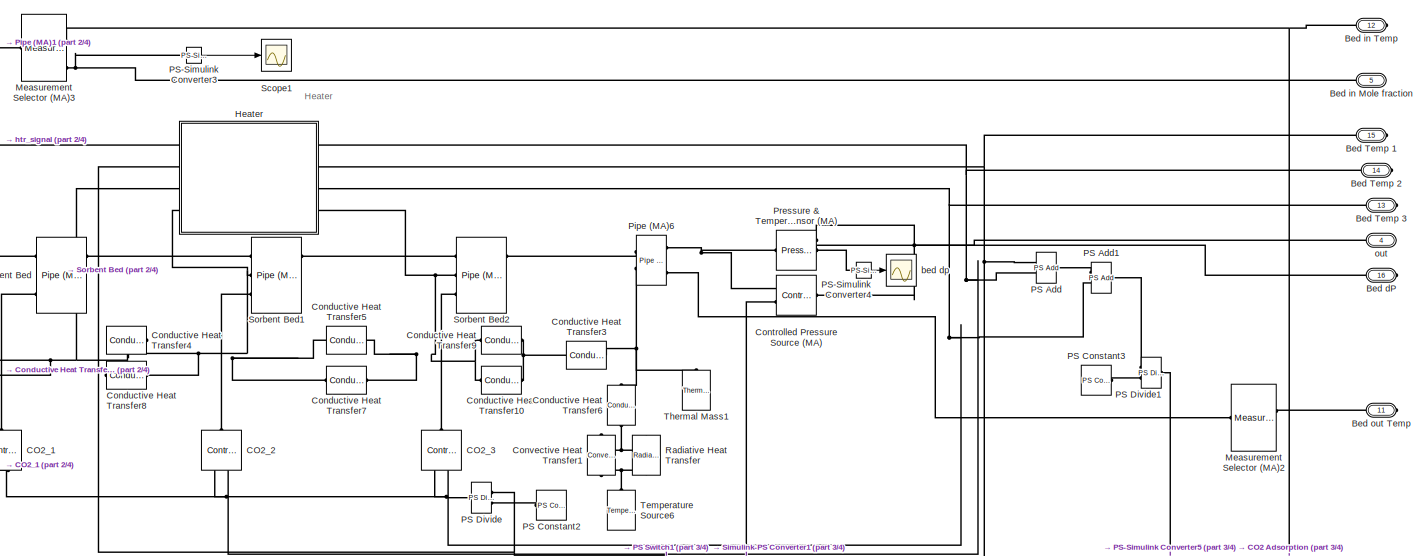
[diagram: Sorbent Bed - part 1/4, top center region]
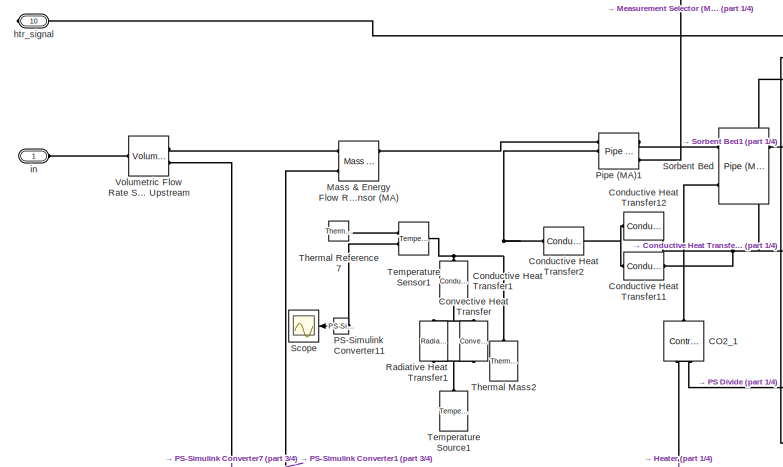
[diagram: Sorbent Bed - part 2/4, top left region]
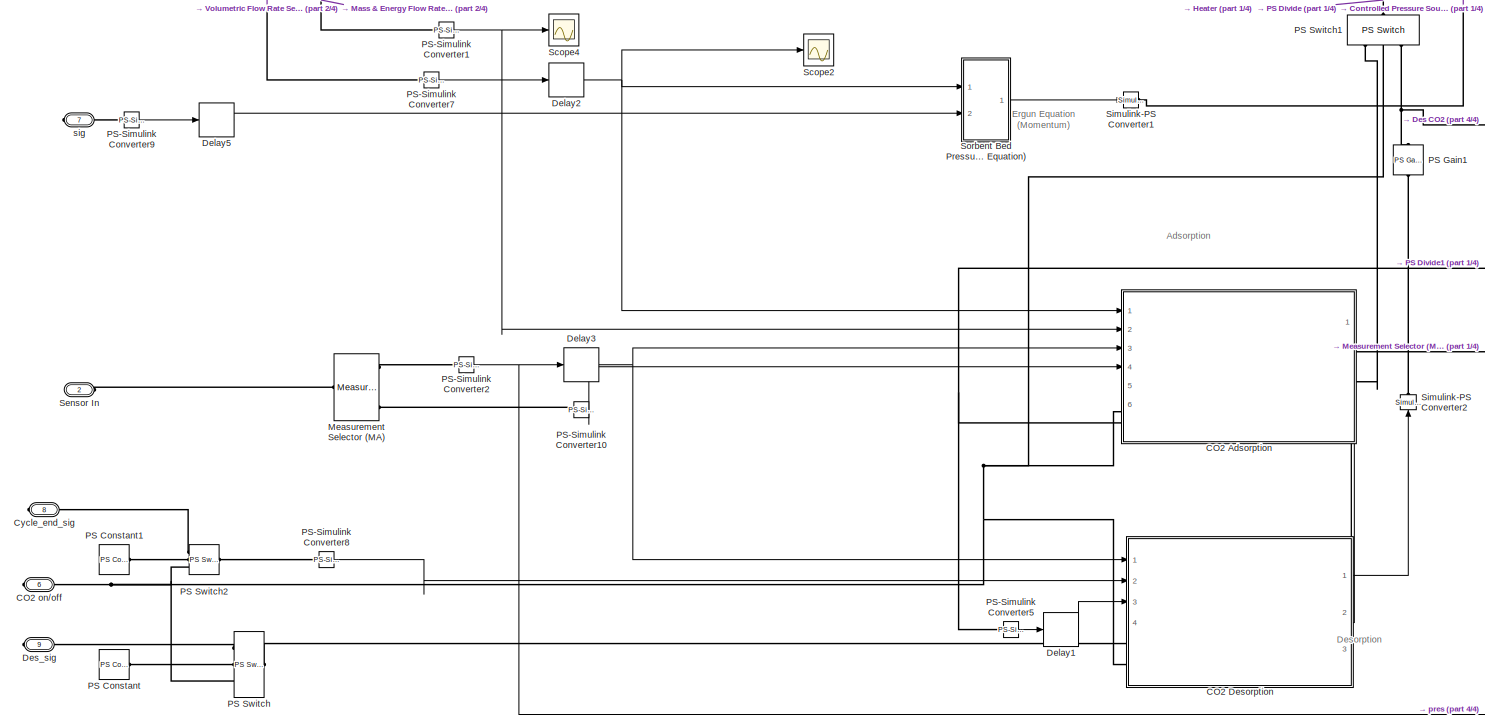
[diagram: Sorbent Bed - part 3/4, bottom center region]
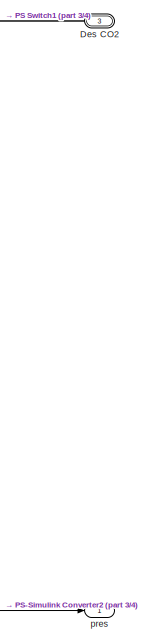
[diagram: Sorbent Bed - part 4/4, bottom right region]
BLOCK [SubSystem] Sorbent Bed
  MinAlgLoopOccurrences = on
  PortSchema = {"entries":[{"content":{"sides":[{"content":{"connectorIds":["LConn1","LConn2","LConn3"]},"type":"ConnectorPlacement.EquallySpacedRectSide","uuid":"938ee7f6-5b4b-4f3b-8428-1e7acf7d2793"},{"content":{"connectorIds":["RConn1","RConn2"],"side":"RIGHT"},"type":"ConnectorPlacement.EquallySpacedRectSide","uuid":"9346dbb3-d201-4765-b029-9e6f9eda9d09"},{"content":{"connectorIds":[],"side":"TOP"},"type":"C...<+525ch>
  Ports = [0, 1, 0, 0, 0, 3, 13]
  RequestExecContextInheritance = off
BLOCK [PMIOPort] Sorbent Bed/Bed Temp 1
  Port = 15
  Side = Right
BLOCK [PMIOPort] Sorbent Bed/Bed Temp 2
  Port = 14
  Side = Right
BLOCK [PMIOPort] Sorbent Bed/Bed Temp 3
  Port = 13
  Side = Right
BLOCK [PMIOPort] Sorbent Bed/Bed dP
  Port = 16
  Side = Right
BLOCK [PMIOPort] Sorbent Bed/Bed in Mole fraction
  Port = 5
  Side = Right
BLOCK [PMIOPort] Sorbent Bed/Bed in Temp 
  Port = 12
  Side = Right
BLOCK [PMIOPort] Sorbent Bed/Bed out Temp
  Port = 11
  Side = Right
BLOCK [SubSystem] Sorbent Bed/CO2 Adsorption
  NameLocation = top
  PortSchema = {"entries":[{"content":{"sides":[{"content":{"connectorIds":["In1","In2","In3","LConn1","In4"]},"type":"ConnectorPlacement.EquallySpacedRectSide","uuid":"fb5d8689-8c7c-41c6-b33a-026ebdfeda46"},{"content":{"connectorIds":["RConn1","RConn2"],"side":"RIGHT"},"type":"ConnectorPlacement.EquallySpacedRectSide","uuid":"e615a398-5db1-42bf-ba80-688914a64f02"},{"content":{"connectorIds":[],"side":"TOP"},"ty...<+449ch>
  Ports = [6, 1, 0, 0, 0, 1, 3]
  RequestExecContextInheritance = off
BLOCK [Sum] Sorbent Bed/CO2 Adsorption/Add1
  IconShape = rectangular
  Inputs = +--
  Ports = [3, 1]
BLOCK [PMIOPort] Sorbent Bed/CO2 Adsorption/Ads_CO2
  Port = 3
  Side = Right
BLOCK [PMIOPort] Sorbent Bed/CO2 Adsorption/Bed in Temp
  Port = 2
  Side = Right
BLOCK [Constant] Sorbent Bed/CO2 Adsorption/Bed length
  Value = L
BLOCK [PMIOPort] Sorbent Bed/CO2 Adsorption/CO2 on//off
  Port = 4
  Side = Right
BLOCK [Scope] Sorbent Bed/CO2 Adsorption/CO2 plot
  Floating = off
  NumInputPorts = 1
  Ports = [1]
  ScopeSpecificationString = Simulink.scopes.TimeScopeBlockCfg('CurrentConfiguration', extmgr.ConfigurationSet(extmgr.Configuration('Core','General UI',true),extmgr.Configuration('Core','Source UI',true),extmgr.Configuration('Sources','WiredSimulink',true,'DataLoggingVariableName','ScopeData5'),extmgr.Configuration('Visuals','Time Domain',true,'SerializedDisplays',{struct('MinYLimReal','-0.00002','MaxYLimReal','0.00016','YLab...<+1440ch>
BLOCK [Inport] Sorbent Bed/CO2 Adsorption/CO2_in_kg//s
  Port = 2
BLOCK [Inport] Sorbent Bed/CO2 Adsorption/CO2_mol//mol
  Port = 4
BLOCK [Clock] Sorbent Bed/CO2 Adsorption/Clock
  Decimation = 1
BLOCK [Constant] Sorbent Bed/CO2 Adsorption/Const
  Value = 0
BLOCK [SubSystem] Sorbent Bed/CO2 Adsorption/Constants1
  ErrorFcn = Stateflow.Translate.translate
  PermitHierarchicalResolution = ExplicitOnly
  Ports = [6, 8]
  RequestExecContextInheritance = off
  SFBlockType = MATLAB Function
  TreatAsAtomicUnit = on
BLOCK [Demux] Sorbent Bed/CO2 Adsorption/Constants1/ Demux 
  Outputs = 1
  Ports = [1, 1]
BLOCK [S-Function] Sorbent Bed/CO2 Adsorption/Constants1/ SFunction 
  EnableBusSupport = on
  FunctionName = sf_sfun
  PortCounts = [6 9]
  Ports = [6, 9]
  SFcnIsStateOwnerBlock = off
  SFunctionDeploymentMode = off
  Tag = Stateflow S-Function 19
BLOCK [Terminator] Sorbent Bed/CO2 Adsorption/Constants1/ Terminator 
BLOCK [Inport] Sorbent Bed/CO2 Adsorption/Constants1/CO2
  Port = 4
BLOCK [Outport] Sorbent Bed/CO2 Adsorption/Constants1/DL
  Port = 3
BLOCK [Inport] Sorbent Bed/CO2 Adsorption/Constants1/P
  Port = 6
BLOCK [Inport] Sorbent Bed/CO2 Adsorption/Constants1/T
  Port = 5
BLOCK [Inport] Sorbent Bed/CO2 Adsorption/Constants1/V
  Port = 3
BLOCK [Outport] Sorbent Bed/CO2 Adsorption/Constants1/cFeed
  Port = 6
BLOCK [Outport] Sorbent Bed/CO2 Adsorption/Constants1/c_init
  Port = 5
BLOCK [Outport] Sorbent Bed/CO2 Adsorption/Constants1/delta_eps
  Port = 7
BLOCK [Outport] Sorbent Bed/CO2 Adsorption/Constants1/eps
BLOCK [Outport] Sorbent Bed/CO2 Adsorption/Constants1/q_init
  Port = 8
BLOCK [Inport] Sorbent Bed/CO2 Adsorption/Constants1/resid_CO2
  Port = 2
BLOCK [Inport] Sorbent Bed/CO2 Adsorption/Constants1/time
BLOCK [Outport] Sorbent Bed/CO2 Adsorption/Constants1/vi
  Port = 4
BLOCK [Outport] Sorbent Bed/CO2 Adsorption/Constants1/vs
  Port = 2
BLOCK [MultiPortSwitch] Sorbent Bed/CO2 Adsorption/Index Vector
  InputSameDT = off
  Inputs = 1
  Ports = [2, 1]
  SaturateOnIntegerOverflow = off
BLOCK [Integrator] Sorbent Bed/CO2 Adsorption/Integrator3
  ExternalReset = either
  InitialCondition = zeros(10,1)
  InitialConditionSource = external
  Ports = [3, 1]
BLOCK [Integrator] Sorbent Bed/CO2 Adsorption/Integrator4
  ExternalReset = either
  InitialCondition = 0.003
  InitialConditionSource = external
  Ports = [3, 1]
BLOCK [Constant] Sorbent Bed/CO2 Adsorption/Mol
  Value = 0
BLOCK [Constant] Sorbent Bed/CO2 Adsorption/Mol1
  Value = 0.00001
BLOCK [Constant] Sorbent Bed/CO2 Adsorption/Mol2
  Value = 1500
BLOCK [Inport] Sorbent Bed/CO2 Adsorption/P
  Port = 3
BLOCK [Reference] Sorbent Bed/CO2 Adsorption/PS Switch  REF=fl_lib/Physical Signals/Nonlinear Operators/PS Switch
  Ports = [0, 0, 0, 0, 0, 3, 1]
  SourceBlock = fl_lib/Physical Signals/Nonlinear Operators/PS Switch
  SourceProductBaseCode = PW,SS,VE
  SourceType = PS Switch
BLOCK [Product] Sorbent Bed/CO2 Adsorption/Product
  Ports = [2, 1]
BLOCK [Product] Sorbent Bed/CO2 Adsorption/Product1
  Ports = [2, 1]
BLOCK [Product] Sorbent Bed/CO2 Adsorption/Product3
  Ports = [2, 1]
BLOCK [Product] Sorbent Bed/CO2 Adsorption/Product4
  Ports = [2, 1]
BLOCK [Product] Sorbent Bed/CO2 Adsorption/Product5
  Ports = [2, 1]
BLOCK [Scope] Sorbent Bed/CO2 Adsorption/Remv CO2
  Floating = off
  NumInputPorts = 1
  Ports = [1]
  ScopeSpecificationString = Simulink.scopes.TimeScopeBlockCfg('CurrentConfiguration', extmgr.ConfigurationSet(extmgr.Configuration('Core','General UI',true),extmgr.Configuration('Core','Source UI',true),extmgr.Configuration('Sources','WiredSimulink',true,'DataLoggingVariableName','ScopeData3'),extmgr.Configuration('Visuals','Time Domain',true,'SerializedDisplays',{struct('MinYLimReal','-0.00000025','MaxYLimReal','0.00000035'...<+1464ch>
BLOCK [Gain] Sorbent Bed/CO2 Adsorption/Roh (kg//m3)
  Gain = 1054
BLOCK [Saturate] Sorbent Bed/CO2 Adsorption/Saturation
  LowerLimit = -inf
  UpperLimit = 0.003
BLOCK [Scope] Sorbent Bed/CO2 Adsorption/Scope2
  Floating = off
  NumInputPorts = 2
  Ports = [2]
  ScopeSpecificationString = Simulink.scopes.TimeScopeBlockCfg('CurrentConfiguration', extmgr.ConfigurationSet(extmgr.Configuration('Core','General UI',true),extmgr.Configuration('Core','Source UI',true),extmgr.Configuration('Sources','WiredSimulink',true,'DataLoggingVariableName','ScopeData6'),extmgr.Configuration('Visuals','Time Domain',true,'SerializedDisplays',{struct('MinYLimReal','-0.01423','MaxYLimReal','0.12805','YLab...<+1556ch>
BLOCK [Scope] Sorbent Bed/CO2 Adsorption/Scope3
  Floating = off
  NumInputPorts = 1
  Ports = [1]
  ScopeSpecificationString = Simulink.scopes.TimeScopeBlockCfg('CurrentConfiguration', extmgr.ConfigurationSet(extmgr.Configuration('Core','General UI',true),extmgr.Configuration('Core','Source UI',true),extmgr.Configuration('Sources','WiredSimulink',true,'DataLoggingVariableName','ScopeData7'),extmgr.Configuration('Visuals','Time Domain',true,'SerializedDisplays',{struct('MinYLimReal','-2180930450.10605','MaxYLimReal','24232...<+1585ch>
BLOCK [Reference] Sorbent Bed/CO2 Adsorption/Simulink-PS Converter  REF=nesl_utility/Simulink-PS
Converter
  Ports = [1, 0, 0, 0, 0, 0, 1]
  SourceBlock = nesl_utility/Simulink-PS\nConverter
  SourceProductBaseCode = SS,PW,VE
  SourceType = Simulink-PS\nConverter
BLOCK [Reference] Sorbent Bed/CO2 Adsorption/Simulink-PS Converter1  REF=nesl_utility/Simulink-PS
Converter
  Ports = [1, 0, 0, 0, 0, 0, 1]
  SourceBlock = nesl_utility/Simulink-PS\nConverter
  SourceProductBaseCode = SS,PW,VE
  SourceType = Simulink-PS\nConverter
BLOCK [Reference] Sorbent Bed/CO2 Adsorption/Simulink-PS Converter2  REF=nesl_utility/Simulink-PS
Converter
  Ports = [1, 0, 0, 0, 0, 0, 1]
  SourceBlock = nesl_utility/Simulink-PS\nConverter
  SourceProductBaseCode = SS,PW,VE
  SourceType = Simulink-PS\nConverter
BLOCK [Sum] Sorbent Bed/CO2 Adsorption/Subtract
  IconShape = rectangular
  Inputs = -+
  Ports = [2, 1]
BLOCK [Sum] Sorbent Bed/CO2 Adsorption/Subtract1
  IconShape = rectangular
  Inputs = +-
  Ports = [2, 1]
BLOCK [Sum] Sorbent Bed/CO2 Adsorption/Subtract2
  IconShape = rectangular
  Inputs = -+
  Ports = [2, 1]
BLOCK [Switch] Sorbent Bed/CO2 Adsorption/Switch
  InputSameDT = off
  SaturateOnIntegerOverflow = off
  Threshold = 1
BLOCK [Switch] Sorbent Bed/CO2 Adsorption/Switch1
  InputSameDT = off
  SaturateOnIntegerOverflow = off
  Threshold = 1
BLOCK [Switch] Sorbent Bed/CO2 Adsorption/Switch2
  InputSameDT = off
  SaturateOnIntegerOverflow = off
  Threshold = 1
BLOCK [Switch] Sorbent Bed/CO2 Adsorption/Switch3
  InputSameDT = off
  SaturateOnIntegerOverflow = off
  Threshold = 1
BLOCK [Switch] Sorbent Bed/CO2 Adsorption/Switch4
  Criteria = u2 > Threshold
  InputSameDT = off
  SaturateOnIntegerOverflow = off
  Threshold = 1
BLOCK [PMIOPort] Sorbent Bed/CO2 Adsorption/T
  Side = Left
BLOCK [Reference] Sorbent Bed/CO2 Adsorption/Upstream Pres  REF=nesl_utility/PS-Simulink
Converter
  Ports = [0, 1, 0, 0, 0, 1]
  SourceBlock = nesl_utility/PS-Simulink\nConverter
  SourceProductBaseCode = SS,PW,VE
  SourceType = PS-Simulink\nConverter
BLOCK [Reference] Sorbent Bed/CO2 Adsorption/Upstream Pres1  REF=nesl_utility/PS-Simulink
Converter
  Ports = [0, 1, 0, 0, 0, 1]
  SourceBlock = nesl_utility/PS-Simulink\nConverter
  SourceProductBaseCode = SS,PW,VE
  SourceType = PS-Simulink\nConverter
BLOCK [Reference] Sorbent Bed/CO2 Adsorption/Upstream Pres2  REF=nesl_utility/PS-Simulink
Converter
  Ports = [0, 1, 0, 0, 0, 1]
  SourceBlock = nesl_utility/PS-Simulink\nConverter
  SourceProductBaseCode = SS,PW,VE
  SourceType = PS-Simulink\nConverter
BLOCK [Inport] Sorbent Bed/CO2 Adsorption/V
BLOCK [Inport] Sorbent Bed/CO2 Adsorption/cycle_time
  Port = 6
BLOCK [Constant] Sorbent Bed/CO2 Adsorption/element
  Value = 9
BLOCK [Constant] Sorbent Bed/CO2 Adsorption/kg//mol
  Value = 0.04401
BLOCK [Constant] Sorbent Bed/CO2 Adsorption/kg//mol1
  Value = 0
BLOCK [Constant] Sorbent Bed/CO2 Adsorption/kg//mol2
  Value = 8e-9
BLOCK [Gain] Sorbent Bed/CO2 Adsorption/kn1
  Gain = 0.37
BLOCK [SubSystem] Sorbent Bed/CO2 Adsorption/q_star1
  ErrorFcn = Stateflow.Translate.translate
  PermitHierarchicalResolution = ExplicitOnly
  Ports = [2, 1]
  RequestExecContextInheritance = off
  SFBlockType = MATLAB Function
  TreatAsAtomicUnit = on
BLOCK [Demux] Sorbent Bed/CO2 Adsorption/q_star1/ Demux 
  Outputs = 1
  Ports = [1, 1]
BLOCK [S-Function] Sorbent Bed/CO2 Adsorption/q_star1/ SFunction 
  EnableBusSupport = on
  FunctionName = sf_sfun
  PortCounts = [2 2]
  Ports = [2, 2]
  SFcnIsStateOwnerBlock = off
  SFunctionDeploymentMode = off
  Tag = Stateflow S-Function 20
BLOCK [Terminator] Sorbent Bed/CO2 Adsorption/q_star1/ Terminator 
BLOCK [Inport] Sorbent Bed/CO2 Adsorption/q_star1/T
  Port = 2
BLOCK [Inport] Sorbent Bed/CO2 Adsorption/q_star1/c_t
BLOCK [Outport] Sorbent Bed/CO2 Adsorption/q_star1/q_star
BLOCK [Inport] Sorbent Bed/CO2 Adsorption/resid_CO2
  Port = 5
BLOCK [SubSystem] Sorbent Bed/CO2 Adsorption/spatial_calc1
  ErrorFcn = Stateflow.Translate.translate
  PermitHierarchicalResolution = ExplicitOnly
  Ports = [8, 2]
  RequestExecContextInheritance = off
  SFBlockType = MATLAB Function
  TreatAsAtomicUnit = on
BLOCK [Demux] Sorbent Bed/CO2 Adsorption/spatial_calc1/ Demux 
  Outputs = 1
  Ports = [1, 1]
BLOCK [S-Function] Sorbent Bed/CO2 Adsorption/spatial_calc1/ SFunction 
  EnableBusSupport = on
  FunctionName = sf_sfun
  PortCounts = [8 3]
  Ports = [8, 3]
  SFcnIsStateOwnerBlock = off
  SFunctionDeploymentMode = off
  Tag = Stateflow S-Function 21
BLOCK [Terminator] Sorbent Bed/CO2 Adsorption/spatial_calc1/ Terminator 
BLOCK [Inport] Sorbent Bed/CO2 Adsorption/spatial_calc1/CO2
  Port = 3
BLOCK [Outport] Sorbent Bed/CO2 Adsorption/spatial_calc1/D2cDz2
BLOCK [Inport] Sorbent Bed/CO2 Adsorption/spatial_calc1/DL
  Port = 8
BLOCK [Outport] Sorbent Bed/CO2 Adsorption/spatial_calc1/DcDz
  Port = 2
BLOCK [Inport] Sorbent Bed/CO2 Adsorption/spatial_calc1/L
BLOCK [Inport] Sorbent Bed/CO2 Adsorption/spatial_calc1/P
  Port = 5
BLOCK [Inport] Sorbent Bed/CO2 Adsorption/spatial_calc1/T
  Port = 4
BLOCK [Inport] Sorbent Bed/CO2 Adsorption/spatial_calc1/Vs
  Port = 7
BLOCK [Inport] Sorbent Bed/CO2 Adsorption/spatial_calc1/c
  Port = 2
BLOCK [Inport] Sorbent Bed/CO2 Adsorption/spatial_calc1/eps
  Port = 6
BLOCK [Outport] Sorbent Bed/CO2 Adsorption/y
BLOCK [SubSystem] Sorbent Bed/CO2 Desorption
  PortSchema = {"entries":[{"content":{"sides":[{"content":{"connectorIds":["In1","In2","In3","LConn1"]},"type":"ConnectorPlacement.EquallySpacedRectSide","uuid":"c0a19cc0-55b6-4f26-88f6-d4532b770ac9"},{"content":{"connectorIds":["Out1"],"side":"RIGHT"},"type":"ConnectorPlacement.EquallySpacedRectSide","uuid":"04c46a21-a116-4a66-b667-6b06cdc38df3"},{"content":{"connectorIds":["LConn2","In4","Out2","Out3"],"side"...<+289ch>
  Ports = [4, 3, 0, 0, 0, 2]
  RequestExecContextInheritance = off
BLOCK [Abs] Sorbent Bed/CO2 Desorption/Abs
  SaturateOnIntegerOverflow = off
BLOCK [Abs] Sorbent Bed/CO2 Desorption/Abs1
  SaturateOnIntegerOverflow = off
BLOCK [Scope] Sorbent Bed/CO2 Desorption/Accum CO2
  Floating = off
  NumInputPorts = 1
  Ports = [1]
  ScopeSpecificationString = Simulink.scopes.TimeScopeBlockCfg('CurrentConfiguration', extmgr.ConfigurationSet(extmgr.Configuration('Core','General UI',true),extmgr.Configuration('Core','Source UI',true),extmgr.Configuration('Sources','WiredSimulink',true,'DataLoggingVariableName','ScopeData2'),extmgr.Configuration('Visuals','Time Domain',true,'SerializedDisplays',{struct('MinYLimReal','-0.16666','MaxYLimReal','1.4999','YLabe...<+1437ch>
BLOCK [Inport] Sorbent Bed/CO2 Desorption/Ads CO2
  Port = 4
BLOCK [PMIOPort] Sorbent Bed/CO2 Desorption/CO2 on//off
  Port = 2
  Side = Left
BLOCK [Clock] Sorbent Bed/CO2 Desorption/Clock
  Decimation = 1
BLOCK [Constant] Sorbent Bed/CO2 Desorption/Constant1
  Value = 0
BLOCK [Constant] Sorbent Bed/CO2 Desorption/Constant2
  Value = 0
BLOCK [Constant] Sorbent Bed/CO2 Desorption/Constant3
  Value = 0.04401*0.1105
BLOCK [Constant] Sorbent Bed/CO2 Desorption/Constant4
  Value = 0.04401*0.1105
BLOCK [Constant] Sorbent Bed/CO2 Desorption/Constant5
  Value = 940
BLOCK [Constant] Sorbent Bed/CO2 Desorption/Constant6
  Value = 0
BLOCK [Constant] Sorbent Bed/CO2 Desorption/Constant8
  Value = 0
BLOCK [SubSystem] Sorbent Bed/CO2 Desorption/Cycle Counter
  ErrorFcn = Stateflow.Translate.translate
  PermitHierarchicalResolution = ExplicitOnly
  Ports = [3, 2]
  RequestExecContextInheritance = off
  SFBlockType = MATLAB Function
  TreatAsAtomicUnit = on
BLOCK [Demux] Sorbent Bed/CO2 Desorption/Cycle Counter/ Demux 
  Outputs = 1
  Ports = [1, 1]
BLOCK [S-Function] Sorbent Bed/CO2 Desorption/Cycle Counter/ SFunction 
  EnableBusSupport = on
  FunctionName = sf_sfun
  PortCounts = [3 3]
  Ports = [3, 3]
  SFcnIsStateOwnerBlock = off
  SFunctionDeploymentMode = off
  Tag = Stateflow S-Function 15
BLOCK [Terminator] Sorbent Bed/CO2 Desorption/Cycle Counter/ Terminator 
BLOCK [Inport] Sorbent Bed/CO2 Desorption/Cycle Counter/in
  Port = 3
BLOCK [Outport] Sorbent Bed/CO2 Desorption/Cycle Counter/out
BLOCK [Inport] Sorbent Bed/CO2 Desorption/Cycle Counter/t
BLOCK [Inport] Sorbent Bed/CO2 Desorption/Cycle Counter/t_tot
  Port = 2
BLOCK [Outport] Sorbent Bed/CO2 Desorption/Cycle Counter/time
  Port = 2
BLOCK [Constant] Sorbent Bed/CO2 Desorption/Cycle time
  Value = t_Total
BLOCK [Inport] Sorbent Bed/CO2 Desorption/Cycle_end_sig
  Port = 2
BLOCK [Delay] Sorbent Bed/CO2 Desorption/Delay
  DelayLength = 1
  InitialCondition = 0
  InputPortMap = u0
  Ports = [1, 1]
BLOCK [PMIOPort] Sorbent Bed/CO2 Desorption/Des_sig
  Side = Left
BLOCK [Product] Sorbent Bed/CO2 Desorption/Divide
  Inputs = */
  Ports = [2, 1]
BLOCK [Integrator] Sorbent Bed/CO2 Desorption/Integrator
  ExternalReset = either
  InitialConditionSource = external
  Ports = [3, 1]
BLOCK [Integrator] Sorbent Bed/CO2 Desorption/Integrator1
  ExternalReset = either
  Ports = [2, 1]
BLOCK [Inport] Sorbent Bed/CO2 Desorption/P
BLOCK [Reference] Sorbent Bed/CO2 Desorption/PS-Simulink Converter1  REF=nesl_utility/PS-Simulink
Converter
  Ports = [0, 1, 0, 0, 0, 1]
  SourceBlock = nesl_utility/PS-Simulink\nConverter
  SourceProductBaseCode = SS,PW,VE
  SourceType = PS-Simulink\nConverter
BLOCK [Reference] Sorbent Bed/CO2 Desorption/PS-Simulink Converter5  REF=nesl_utility/PS-Simulink
Converter
  Ports = [0, 1, 0, 0, 0, 1]
  SourceBlock = nesl_utility/PS-Simulink\nConverter
  SourceProductBaseCode = SS,PW,VE
  SourceType = PS-Simulink\nConverter
BLOCK [Product] Sorbent Bed/CO2 Desorption/Product
  Ports = [2, 1]
BLOCK [Product] Sorbent Bed/CO2 Desorption/Product1
  Ports = [2, 1]
BLOCK [Scope] Sorbent Bed/CO2 Desorption/Scope
  Floating = off
  NumInputPorts = 1
  Ports = [1]
  ScopeSpecificationString = Simulink.scopes.TimeScopeBlockCfg('CurrentConfiguration', extmgr.ConfigurationSet(extmgr.Configuration('Core','General UI',true),extmgr.Configuration('Core','Source UI',true),extmgr.Configuration('Sources','WiredSimulink',true,'DataLoggingVariableName','ScopeData3'),extmgr.Configuration('Visuals','Time Domain',true,'SerializedDisplays',{struct('MinYLimReal','-0.04784','MaxYLimReal','0.45657','YLab...<+1398ch>
BLOCK [Sum] Sorbent Bed/CO2 Desorption/Subtract1
  IconShape = rectangular
  Inputs = -+
  Ports = [2, 1]
BLOCK [Sum] Sorbent Bed/CO2 Desorption/Subtract2
  IconShape = rectangular
  Inputs = +-
  Ports = [2, 1]
BLOCK [Switch] Sorbent Bed/CO2 Desorption/Switch1
  Criteria = u2 > Threshold
  InputSameDT = off
  SaturateOnIntegerOverflow = off
BLOCK [Switch] Sorbent Bed/CO2 Desorption/Switch2
  InputSameDT = off
  SaturateOnIntegerOverflow = off
BLOCK [Switch] Sorbent Bed/CO2 Desorption/Switch3
  Criteria = u2 > Threshold
  InputSameDT = off
  SaturateOnIntegerOverflow = off
BLOCK [Switch] Sorbent Bed/CO2 Desorption/Switch5
  Criteria = u2 > Threshold
  InputSameDT = off
  SaturateOnIntegerOverflow = off
BLOCK [Switch] Sorbent Bed/CO2 Desorption/Switch6
  Criteria = u2 > Threshold
  InputSameDT = off
  SaturateOnIntegerOverflow = off
BLOCK [Inport] Sorbent Bed/CO2 Desorption/T
  Port = 3
BLOCK [Scope] Sorbent Bed/CO2 Desorption/ads1
  Floating = off
  NumInputPorts = 1
  Ports = [1]
  ScopeSpecificationString = Simulink.scopes.TimeScopeBlockCfg('CurrentConfiguration', extmgr.ConfigurationSet(extmgr.Configuration('Core','General UI',true),extmgr.Configuration('Core','Source UI',true),extmgr.Configuration('Sources','WiredSimulink',true,'DataLoggingVariableName','ScopeData1'),extmgr.Configuration('Visuals','Time Domain',true,'SerializedDisplays',{struct('MinYLimReal','-0.000001','MaxYLimReal','0.00001','YLa...<+1443ch>
BLOCK [Scope] Sorbent Bed/CO2 Desorption/ads2
  Floating = off
  NumInputPorts = 1
  Ports = [1]
  ScopeSpecificationString = Simulink.scopes.TimeScopeBlockCfg('CurrentConfiguration', extmgr.ConfigurationSet(extmgr.Configuration('Core','General UI',true),extmgr.Configuration('Core','Source UI',true),extmgr.Configuration('Sources','WiredSimulink',true,'DataLoggingVariableName','ScopeData1'),extmgr.Configuration('Visuals','Time Domain',true,'SerializedDisplays',{struct('MinYLimReal','-5052845504390.9502','MaxYLimReal','561...<+1537ch>
BLOCK [Scope] Sorbent Bed/CO2 Desorption/ads3
  Floating = off
  NumInputPorts = 1
  Ports = [1]
  ScopeSpecificationString = Simulink.scopes.TimeScopeBlockCfg('CurrentConfiguration', extmgr.ConfigurationSet(extmgr.Configuration('Core','General UI',true),extmgr.Configuration('Core','Source UI',true),extmgr.Configuration('Sources','WiredSimulink',true,'DataLoggingVariableName','ScopeData1'),extmgr.Configuration('Visuals','Time Domain',true,'SerializedDisplays',{struct('MinYLimReal','-0.16666','MaxYLimReal','1.4999','YLabe...<+1438ch>
BLOCK [Scope] Sorbent Bed/CO2 Desorption/ads4
  Floating = off
  NumInputPorts = 1
  Ports = [1]
  ScopeSpecificationString = Simulink.scopes.TimeScopeBlockCfg('CurrentConfiguration', extmgr.ConfigurationSet(extmgr.Configuration('Core','General UI',true),extmgr.Configuration('Core','Source UI',true),extmgr.Configuration('Sources','WiredSimulink',true,'DataLoggingVariableName','ScopeData3'),extmgr.Configuration('Visuals','Time Domain',true,'SerializedDisplays',{struct('MinYLimReal','-0.97015','MaxYLimReal','1.02985','YLab...<+1442ch>
BLOCK [Outport] Sorbent Bed/CO2 Desorption/cycle_time
  Port = 3
BLOCK [Outport] Sorbent Bed/CO2 Desorption/des_m_CO2
BLOCK [SubSystem] Sorbent Bed/CO2 Desorption/q_star1
  ErrorFcn = Stateflow.Translate.translate
  PermitHierarchicalResolution = ExplicitOnly
  Ports = [2, 2]
  RequestExecContextInheritance = off
  SFBlockType = MATLAB Function
  TreatAsAtomicUnit = on
BLOCK [Demux] Sorbent Bed/CO2 Desorption/q_star1/ Demux 
  Outputs = 1
  Ports = [1, 1]
BLOCK [S-Function] Sorbent Bed/CO2 Desorption/q_star1/ SFunction 
  EnableBusSupport = on
  FunctionName = sf_sfun
  PortCounts = [2 3]
  Ports = [2, 3]
  SFcnIsStateOwnerBlock = off
  SFunctionDeploymentMode = off
  Tag = Stateflow S-Function 18
BLOCK [Terminator] Sorbent Bed/CO2 Desorption/q_star1/ Terminator 
BLOCK [Inport] Sorbent Bed/CO2 Desorption/q_star1/P
BLOCK [Inport] Sorbent Bed/CO2 Desorption/q_star1/T
  Port = 2
BLOCK [Outport] Sorbent Bed/CO2 Desorption/q_star1/kl
  Port = 2
BLOCK [Outport] Sorbent Bed/CO2 Desorption/q_star1/q_star
BLOCK [Outport] Sorbent Bed/CO2 Desorption/resid_CO2
  Port = 2
BLOCK [PMIOPort] Sorbent Bed/CO2 on//off
  Port = 6
  Side = Right
BLOCK [Reference] Sorbent Bed/CO2_1  REF=fl_lib/Moist Air/Sources/Moisture & Trace Gas
Sources/Controlled Trace Gas
Source (MA)
  NameLocation = right
  Ports = [0, 0, 0, 0, 0, 1, 2]
  SourceBlock = fl_lib/Moist Air/Sources/Moisture & Trace Gas\nSources/Controlled Trace Gas\nSource (MA)
  SourceProductBaseCode = PW,SS,VE
  SourceType = Controlled Trace Gas\nSource (MA)
BLOCK [Reference] Sorbent Bed/CO2_2  REF=fl_lib/Moist Air/Sources/Moisture & Trace Gas
Sources/Controlled Trace Gas
Source (MA)
  NameLocation = right
  Ports = [0, 0, 0, 0, 0, 1, 2]
  SourceBlock = fl_lib/Moist Air/Sources/Moisture & Trace Gas\nSources/Controlled Trace Gas\nSource (MA)
  SourceProductBaseCode = PW,SS,VE
  SourceType = Controlled Trace Gas\nSource (MA)
BLOCK [Reference] Sorbent Bed/CO2_3  REF=fl_lib/Moist Air/Sources/Moisture & Trace Gas
Sources/Controlled Trace Gas
Source (MA)
  NameLocation = right
  Ports = [0, 0, 0, 0, 0, 1, 2]
  SourceBlock = fl_lib/Moist Air/Sources/Moisture & Trace Gas\nSources/Controlled Trace Gas\nSource (MA)
  SourceProductBaseCode = PW,SS,VE
  SourceType = Controlled Trace Gas\nSource (MA)
BLOCK [Reference] Sorbent Bed/Conductive Heat Transfer1  REF=fl_lib/Thermal/Thermal Elements/Conductive Heat
Transfer
  NameLocation = left
  Ports = [0, 0, 0, 0, 0, 1, 1]
  SourceBlock = fl_lib/Thermal/Thermal Elements/Conductive Heat\nTransfer
  SourceProductBaseCode = PW,SS,VE
  SourceType = Conductive Heat\nTransfer
BLOCK [Reference] Sorbent Bed/Conductive Heat Transfer10  REF=fl_lib/Thermal/Thermal Elements/Conductive Heat
Transfer
  Ports = [0, 0, 0, 0, 0, 1, 1]
  SourceBlock = fl_lib/Thermal/Thermal Elements/Conductive Heat\nTransfer
  SourceProductBaseCode = PW,SS,VE
  SourceType = Conductive Heat\nTransfer
BLOCK [Reference] Sorbent Bed/Conductive Heat Transfer11  REF=fl_lib/Thermal/Thermal Elements/Conductive Heat
Transfer
  Ports = [0, 0, 0, 0, 0, 1, 1]
  SourceBlock = fl_lib/Thermal/Thermal Elements/Conductive Heat\nTransfer
  SourceProductBaseCode = PW,SS,VE
  SourceType = Conductive Heat\nTransfer
BLOCK [Reference] Sorbent Bed/Conductive Heat Transfer12  REF=fl_lib/Thermal/Thermal Elements/Conductive Heat
Transfer
  Ports = [0, 0, 0, 0, 0, 1, 1]
  SourceBlock = fl_lib/Thermal/Thermal Elements/Conductive Heat\nTransfer
  SourceProductBaseCode = PW,SS,VE
  SourceType = Conductive Heat\nTransfer
BLOCK [Reference] Sorbent Bed/Conductive Heat Transfer2  REF=fl_lib/Thermal/Thermal Elements/Conductive Heat
Transfer
  NameLocation = top
  Ports = [0, 0, 0, 0, 0, 1, 1]
  SourceBlock = fl_lib/Thermal/Thermal Elements/Conductive Heat\nTransfer
  SourceProductBaseCode = PW,SS,VE
  SourceType = Conductive Heat\nTransfer
BLOCK [Reference] Sorbent Bed/Conductive Heat Transfer3  REF=fl_lib/Thermal/Thermal Elements/Conductive Heat
Transfer
  Ports = [0, 0, 0, 0, 0, 1, 1]
  SourceBlock = fl_lib/Thermal/Thermal Elements/Conductive Heat\nTransfer
  SourceProductBaseCode = PW,SS,VE
  SourceType = Conductive Heat\nTransfer
BLOCK [Reference] Sorbent Bed/Conductive Heat Transfer4  REF=fl_lib/Thermal/Thermal Elements/Conductive Heat
Transfer
  NameLocation = top
  Ports = [0, 0, 0, 0, 0, 1, 1]
  SourceBlock = fl_lib/Thermal/Thermal Elements/Conductive Heat\nTransfer
  SourceProductBaseCode = PW,SS,VE
  SourceType = Conductive Heat\nTransfer
BLOCK [Reference] Sorbent Bed/Conductive Heat Transfer5  REF=fl_lib/Thermal/Thermal Elements/Conductive Heat
Transfer
  Ports = [0, 0, 0, 0, 0, 1, 1]
  SourceBlock = fl_lib/Thermal/Thermal Elements/Conductive Heat\nTransfer
  SourceProductBaseCode = PW,SS,VE
  SourceType = Conductive Heat\nTransfer
BLOCK [Reference] Sorbent Bed/Conductive Heat Transfer6  REF=fl_lib/Thermal/Thermal Elements/Conductive Heat
Transfer
  NameLocation = left
  Ports = [0, 0, 0, 0, 0, 1, 1]
  SourceBlock = fl_lib/Thermal/Thermal Elements/Conductive Heat\nTransfer
  SourceProductBaseCode = PW,SS,VE
  SourceType = Conductive Heat\nTransfer
BLOCK [Reference] Sorbent Bed/Conductive Heat Transfer7  REF=fl_lib/Thermal/Thermal Elements/Conductive Heat
Transfer
  Ports = [0, 0, 0, 0, 0, 1, 1]
  SourceBlock = fl_lib/Thermal/Thermal Elements/Conductive Heat\nTransfer
  SourceProductBaseCode = PW,SS,VE
  SourceType = Conductive Heat\nTransfer
BLOCK [Reference] Sorbent Bed/Conductive Heat Transfer8  REF=fl_lib/Thermal/Thermal Elements/Conductive Heat
Transfer
  Ports = [0, 0, 0, 0, 0, 1, 1]
  SourceBlock = fl_lib/Thermal/Thermal Elements/Conductive Heat\nTransfer
  SourceProductBaseCode = PW,SS,VE
  SourceType = Conductive Heat\nTransfer
BLOCK [Reference] Sorbent Bed/Conductive Heat Transfer9  REF=fl_lib/Thermal/Thermal Elements/Conductive Heat
Transfer
  Ports = [0, 0, 0, 0, 0, 1, 1]
  SourceBlock = fl_lib/Thermal/Thermal Elements/Conductive Heat\nTransfer
  SourceProductBaseCode = PW,SS,VE
  SourceType = Conductive Heat\nTransfer
BLOCK [Reference] Sorbent Bed/Controlled Pressure Source (MA)  REF=fl_lib/Moist Air/Sources/Controlled Pressure
Source (MA)
  Ports = [0, 0, 0, 0, 0, 2, 1]
  SourceBlock = fl_lib/Moist Air/Sources/Controlled Pressure\nSource (MA)
  SourceProductBaseCode = PW,SS,VE
  SourceType = Controlled Pressure\nSource (MA)
BLOCK [Reference] Sorbent Bed/Convective Heat Transfer  REF=fl_lib/Thermal/Thermal Elements/Convective Heat
Transfer
  NameLocation = left
  Ports = [0, 0, 0, 0, 0, 1, 1]
  SourceBlock = fl_lib/Thermal/Thermal Elements/Convective Heat\nTransfer
  SourceProductBaseCode = PW,SS,VE
  SourceType = Convective Heat\nTransfer
BLOCK [Reference] Sorbent Bed/Convective Heat Transfer1  REF=fl_lib/Thermal/Thermal Elements/Convective Heat
Transfer
  NameLocation = left
  Ports = [0, 0, 0, 0, 0, 1, 1]
  SourceBlock = fl_lib/Thermal/Thermal Elements/Convective Heat\nTransfer
  SourceProductBaseCode = PW,SS,VE
  SourceType = Convective Heat\nTransfer
BLOCK [PMIOPort] Sorbent Bed/Cycle_end_sig
  Port = 8
  Side = Right
BLOCK [Delay] Sorbent Bed/Delay1
  DelayLength = 1
  InitialCondition = 293.15
  InputPortMap = u0
  Ports = [1, 1]
BLOCK [Delay] Sorbent Bed/Delay2
  DelayLength = 1
  InitialCondition = 0.00013
  InputPortMap = u0
  Ports = [1, 1]
BLOCK [Delay] Sorbent Bed/Delay3
  DelayLength = 1
  InitialCondition = 91700
  InputPortMap = u0
  Ports = [1, 1]
BLOCK [Delay] Sorbent Bed/Delay5
  DelayLength = 1
  InitialCondition = 0
  InputPortMap = u0
  Ports = [1, 1]
BLOCK [PMIOPort] Sorbent Bed/Des CO2
  Port = 3
  Side = Left
BLOCK [PMIOPort] Sorbent Bed/Des_sig
  Port = 9
  Side = Right
BLOCK [SubSystem] Sorbent Bed/Heater
  Ports = [0, 0, 0, 0, 0, 4, 4]
  RequestExecContextInheritance = off
BLOCK [PMIOPort] Sorbent Bed/Heater/Ads CO2 [kg//s]
  Port = 2
  Side = Left
BLOCK [PMIOPort] Sorbent Bed/Heater/Bed Temp 1
  Port = 6
  Side = Right
BLOCK [PMIOPort] Sorbent Bed/Heater/Bed Temp 2
  Port = 5
  Side = Right
BLOCK [PMIOPort] Sorbent Bed/Heater/Bed Temp 3
  Port = 7
  Side = Right
BLOCK [Reference] Sorbent Bed/Heater/Conductive Heat Transfer  REF=fl_lib/Thermal/Thermal Elements/Conductive Heat
Transfer
  NameLocation = left
  Ports = [0, 0, 0, 0, 0, 1, 1]
  SourceBlock = fl_lib/Thermal/Thermal Elements/Conductive Heat\nTransfer
  SourceProductBaseCode = PW,SS,VE
  SourceType = Conductive Heat\nTransfer
BLOCK [Reference] Sorbent Bed/Heater/Conductive Heat Transfer1  REF=fl_lib/Thermal/Thermal Elements/Conductive Heat
Transfer
  NameLocation = left
  Ports = [0, 0, 0, 0, 0, 1, 1]
  SourceBlock = fl_lib/Thermal/Thermal Elements/Conductive Heat\nTransfer
  SourceProductBaseCode = PW,SS,VE
  SourceType = Conductive Heat\nTransfer
BLOCK [Reference] Sorbent Bed/Heater/Conductive Heat Transfer2  REF=fl_lib/Thermal/Thermal Elements/Conductive Heat
Transfer
  NameLocation = right
  Ports = [0, 0, 0, 0, 0, 1, 1]
  SourceBlock = fl_lib/Thermal/Thermal Elements/Conductive Heat\nTransfer
  SourceProductBaseCode = PW,SS,VE
  SourceType = Conductive Heat\nTransfer
BLOCK [Constant] Sorbent Bed/Heater/Constant
  Value = 0.0833
BLOCK [Constant] Sorbent Bed/Heater/Constant1
  Value = max_temp + 10
BLOCK [Constant] Sorbent Bed/Heater/Constant2
  Value = Ramp_rate
BLOCK [Constant] Sorbent Bed/Heater/Constant4
  NameLocation = left
BLOCK [Constant] Sorbent Bed/Heater/Constant5
  NameLocation = left
BLOCK [Constant] Sorbent Bed/Heater/Constant6
  NameLocation = left
BLOCK [Constant] Sorbent Bed/Heater/Constant7
  Value = 0
BLOCK [Reference] Sorbent Bed/Heater/Controlled Heat Flow Rate Source  REF=fl_lib/Thermal/Thermal Sources/Controlled Heat Flow
Rate Source
  NameLocation = left
  Ports = [0, 0, 0, 0, 0, 1, 2]
  SourceBlock = fl_lib/Thermal/Thermal Sources/Controlled Heat Flow\nRate Source
  SourceProductBaseCode = PW,SS,VE
  SourceType = Controlled Heat Flow\nRate Source
BLOCK [Reference] Sorbent Bed/Heater/Controlled Heat Flow Rate Source1  REF=fl_lib/Thermal/Thermal Sources/Controlled Heat Flow
Rate Source
  NameLocation = left
  Ports = [0, 0, 0, 0, 0, 1, 2]
  SourceBlock = fl_lib/Thermal/Thermal Sources/Controlled Heat Flow\nRate Source
  SourceProductBaseCode = PW,SS,VE
  SourceType = Controlled Heat Flow\nRate Source
BLOCK [Reference] Sorbent Bed/Heater/Controlled Heat Flow Rate Source2  REF=fl_lib/Thermal/Thermal Sources/Controlled Heat Flow
Rate Source
  NameLocation = left
  Ports = [0, 0, 0, 0, 0, 1, 2]
  SourceBlock = fl_lib/Thermal/Thermal Sources/Controlled Heat Flow\nRate Source
  SourceProductBaseCode = PW,SS,VE
  SourceType = Controlled Heat Flow\nRate Source
BLOCK [Reference] Sorbent Bed/Heater/Controlled Heat Flow Rate Source3  REF=fl_lib/Thermal/Thermal Sources/Controlled Heat Flow
Rate Source
  NameLocation = left
  Ports = [0, 0, 0, 0, 0, 1, 2]
  SourceBlock = fl_lib/Thermal/Thermal Sources/Controlled Heat Flow\nRate Source
  SourceProductBaseCode = PW,SS,VE
  SourceType = Controlled Heat Flow\nRate Source
BLOCK [Reference] Sorbent Bed/Heater/Controlled Heat Flow Rate Source4  REF=fl_lib/Thermal/Thermal Sources/Controlled Heat Flow
Rate Source
  NameLocation = left
  Ports = [0, 0, 0, 0, 0, 1, 2]
  SourceBlock = fl_lib/Thermal/Thermal Sources/Controlled Heat Flow\nRate Source
  SourceProductBaseCode = PW,SS,VE
  SourceType = Controlled Heat Flow\nRate Source
BLOCK [Reference] Sorbent Bed/Heater/Controlled Heat Flow Rate Source5  REF=fl_lib/Thermal/Thermal Sources/Controlled Heat Flow
Rate Source
  NameLocation = left
  Ports = [0, 0, 0, 0, 0, 1, 2]
  SourceBlock = fl_lib/Thermal/Thermal Sources/Controlled Heat Flow\nRate Source
  SourceProductBaseCode = PW,SS,VE
  SourceType = Controlled Heat Flow\nRate Source
BLOCK [Reference] Sorbent Bed/Heater/Convective Heat Transfer  REF=fl_lib/Thermal/Thermal Elements/Convective Heat
Transfer
  NameLocation = left
  Ports = [0, 0, 0, 0, 0, 1, 1]
  SourceBlock = fl_lib/Thermal/Thermal Elements/Convective Heat\nTransfer
  SourceProductBaseCode = PW,SS,VE
  SourceType = Convective Heat\nTransfer
BLOCK [Reference] Sorbent Bed/Heater/Convective Heat Transfer1  REF=fl_lib/Thermal/Thermal Elements/Convective Heat
Transfer
  NameLocation = left
  Ports = [0, 0, 0, 0, 0, 1, 1]
  SourceBlock = fl_lib/Thermal/Thermal Elements/Convective Heat\nTransfer
  SourceProductBaseCode = PW,SS,VE
  SourceType = Convective Heat\nTransfer
BLOCK [Reference] Sorbent Bed/Heater/Convective Heat Transfer2  REF=fl_lib/Thermal/Thermal Elements/Convective Heat
Transfer
  NameLocation = right
  Ports = [0, 0, 0, 0, 0, 1, 1]
  SourceBlock = fl_lib/Thermal/Thermal Elements/Convective Heat\nTransfer
  SourceProductBaseCode = PW,SS,VE
  SourceType = Convective Heat\nTransfer
BLOCK [Reference] Sorbent Bed/Heater/Heat of Ads  REF=fl_lib/Physical Signals/Sources/PS Constant
  Ports = [0, 0, 0, 0, 0, 0, 1]
  SourceBlock = fl_lib/Physical Signals/Sources/PS Constant
  SourceProductBaseCode = PW,SS,VE
  SourceType = PS Constant
BLOCK [PMIOPort] Sorbent Bed/Heater/Heat1
  Port = 3
  Side = Left
BLOCK [PMIOPort] Sorbent Bed/Heater/Heat2
  Port = 4
  Side = Left
BLOCK [PMIOPort] Sorbent Bed/Heater/Heat3
  Port = 8
  Side = Right
BLOCK [MinMax] Sorbent Bed/Heater/Max
  Function = max
  Inputs = 3
  NameLocation = left
  Ports = [3, 1]
BLOCK [MinMax] Sorbent Bed/Heater/Max1
  Function = max
  Inputs = 3
  NameLocation = left
  Ports = [3, 1]
BLOCK [Reference] Sorbent Bed/Heater/PID Controller  REF=slpidlib/PID Controller
  Ports = [3, 1]
  SourceBlock = slpidlib/PID Controller
  SourceProductBaseCode = SL
  SourceType = PID 1dof
BLOCK [Reference] Sorbent Bed/Heater/PID Controller1  REF=slpidlib/PID Controller
  Ports = [2, 1]
  SourceBlock = slpidlib/PID Controller
  SourceProductBaseCode = SL
  SourceType = PID 1dof
BLOCK [Reference] Sorbent Bed/Heater/PS Constant  REF=fl_lib/Physical Signals/Sources/PS Constant
  Ports = [0, 0, 0, 0, 0, 0, 1]
  SourceBlock = fl_lib/Physical Signals/Sources/PS Constant
  SourceProductBaseCode = PW,SS,VE
  SourceType = PS Constant
BLOCK [Reference] Sorbent Bed/Heater/PS Constant2  REF=fl_lib/Physical Signals/Sources/PS Constant
  NameLocation = left
  Ports = [0, 0, 0, 0, 0, 0, 1]
  SourceBlock = fl_lib/Physical Signals/Sources/PS Constant
  SourceProductBaseCode = PW,SS,VE
  SourceType = PS Constant
BLOCK [Reference] Sorbent Bed/Heater/PS Divide  REF=fl_lib/Physical Signals/Functions/PS Divide
  Ports = [0, 0, 0, 0, 0, 2, 1]
  SourceBlock = fl_lib/Physical Signals/Functions/PS Divide
  SourceProductBaseCode = PW,SS,VE
  SourceType = PS Divide
BLOCK [Reference] Sorbent Bed/Heater/PS Product  REF=fl_lib/Physical Signals/Functions/PS Product
  Ports = [0, 0, 0, 0, 0, 2, 1]
  SourceBlock = fl_lib/Physical Signals/Functions/PS Product
  SourceProductBaseCode = PW,SS,VE
  SourceType = PS Product
BLOCK [Reference] Sorbent Bed/Heater/PS Product1  REF=fl_lib/Physical Signals/Functions/PS Product
  Ports = [0, 0, 0, 0, 0, 2, 1]
  SourceBlock = fl_lib/Physical Signals/Functions/PS Product
  SourceProductBaseCode = PW,SS,VE
  SourceType = PS Product
BLOCK [Reference] Sorbent Bed/Heater/PS Switch1  REF=fl_lib/Physical Signals/Nonlinear Operators/PS Switch
  Ports = [0, 0, 0, 0, 0, 3, 1]
  SourceBlock = fl_lib/Physical Signals/Nonlinear Operators/PS Switch
  SourceProductBaseCode = PW,SS,VE
  SourceType = PS Switch
BLOCK [Reference] Sorbent Bed/Heater/PS Switch4  REF=fl_lib/Physical Signals/Nonlinear Operators/PS Switch
  NameLocation = right
  Ports = [0, 0, 0, 0, 0, 3, 1]
  SourceBlock = fl_lib/Physical Signals/Nonlinear Operators/PS Switch
  SourceProductBaseCode = PW,SS,VE
  SourceType = PS Switch
BLOCK [Reference] Sorbent Bed/Heater/PS-Simulink Converter1  REF=nesl_utility/PS-Simulink
Converter
  NameLocation = right
  Ports = [0, 1, 0, 0, 0, 1]
  SourceBlock = nesl_utility/PS-Simulink\nConverter
  SourceProductBaseCode = SS,PW,VE
  SourceType = PS-Simulink\nConverter
BLOCK [Reference] Sorbent Bed/Heater/PS-Simulink Converter3  REF=nesl_utility/PS-Simulink
Converter
  NameLocation = left
  Ports = [0, 1, 0, 0, 0, 1]
  SourceBlock = nesl_utility/PS-Simulink\nConverter
  SourceProductBaseCode = SS,PW,VE
  SourceType = PS-Simulink\nConverter
BLOCK [Reference] Sorbent Bed/Heater/PS-Simulink Converter6  REF=nesl_utility/PS-Simulink
Converter
  NameLocation = left
  Ports = [0, 1, 0, 0, 0, 1]
  SourceBlock = nesl_utility/PS-Simulink\nConverter
  SourceProductBaseCode = SS,PW,VE
  SourceType = PS-Simulink\nConverter
BLOCK [Reference] Sorbent Bed/Heater/PS-Simulink Converter7  REF=nesl_utility/PS-Simulink
Converter
  NameLocation = left
  Ports = [0, 1, 0, 0, 0, 1]
  SourceBlock = nesl_utility/PS-Simulink\nConverter
  SourceProductBaseCode = SS,PW,VE
  SourceType = PS-Simulink\nConverter
BLOCK [Reference] Sorbent Bed/Heater/Radiative Heat Transfer1  REF=fl_lib/Thermal/Thermal Elements/Radiative Heat
Transfer
  NameLocation = left
  Ports = [0, 0, 0, 0, 0, 1, 1]
  SourceBlock = fl_lib/Thermal/Thermal Elements/Radiative Heat\nTransfer
  SourceProductBaseCode = PW,SS,VE
  SourceType = Radiative Heat\nTransfer
BLOCK [Reference] Sorbent Bed/Heater/Radiative Heat Transfer2  REF=fl_lib/Thermal/Thermal Elements/Radiative Heat
Transfer
  NameLocation = right
  Ports = [0, 0, 0, 0, 0, 1, 1]
  SourceBlock = fl_lib/Thermal/Thermal Elements/Radiative Heat\nTransfer
  SourceProductBaseCode = PW,SS,VE
  SourceType = Radiative Heat\nTransfer
BLOCK [Reference] Sorbent Bed/Heater/Radiative Heat Transfer3  REF=fl_lib/Thermal/Thermal Elements/Radiative Heat
Transfer
  NameLocation = left
  Ports = [0, 0, 0, 0, 0, 1, 1]
  SourceBlock = fl_lib/Thermal/Thermal Elements/Radiative Heat\nTransfer
  SourceProductBaseCode = PW,SS,VE
  SourceType = Radiative Heat\nTransfer
BLOCK [Scope] Sorbent Bed/Heater/Scope
  Floating = off
  NumInputPorts = 1
  Ports = [1]
  ScopeSpecificationString = Simulink.scopes.TimeScopeBlockCfg('CurrentConfiguration', extmgr.ConfigurationSet(extmgr.Configuration('Core','General UI',true),extmgr.Configuration('Core','Source UI',true),extmgr.Configuration('Sources','WiredSimulink',true,'DataLoggingVariableName','ScopeData1'),extmgr.Configuration('Visuals','Time Domain',true,'SerializedDisplays',{struct('MinYLimReal','-7.5','MaxYLimReal','67.5','YLabelReal'...<+1368ch>
BLOCK [Scope] Sorbent Bed/Heater/Scope1
  Floating = off
  NumInputPorts = 1
  Ports = [1]
  ScopeSpecificationString = Simulink.scopes.TimeScopeBlockCfg('CurrentConfiguration', extmgr.ConfigurationSet(extmgr.Configuration('Core','General UI',true),extmgr.Configuration('Core','Source UI',true),extmgr.Configuration('Sources','WiredSimulink',true,'DataLoggingVariableName','ScopeData2'),extmgr.Configuration('Visuals','Time Domain',true,'SerializedDisplays',{struct('MinYLimReal','-0.0124','MaxYLimReal','0.09703','YLabe...<+1357ch>
BLOCK [Scope] Sorbent Bed/Heater/Scope2
  Floating = off
  NumInputPorts = 1
  Ports = [1]
  ScopeSpecificationString = Simulink.scopes.TimeScopeBlockCfg('CurrentConfiguration', extmgr.ConfigurationSet(extmgr.Configuration('Core','General UI',true),extmgr.Configuration('Core','Source UI',true),extmgr.Configuration('Sources','WiredSimulink',true,'DataLoggingVariableName','ScopeData3'),extmgr.Configuration('Visuals','Time Domain',true,'SerializedDisplays',{struct('MinYLimReal','-5.38324','MaxYLimReal','48.44914','YLa...<+1444ch>
BLOCK [Reference] Sorbent Bed/Heater/Simulink-PS Converter1  REF=nesl_utility/Simulink-PS
Converter
  Ports = [1, 0, 0, 0, 0, 0, 1]
  SourceBlock = nesl_utility/Simulink-PS\nConverter
  SourceProductBaseCode = SS,PW,VE
  SourceType = Simulink-PS\nConverter
BLOCK [Sum] Sorbent Bed/Heater/Subtract1
  IconShape = rectangular
  Inputs = +-
  Ports = [2, 1]
BLOCK [Sum] Sorbent Bed/Heater/Sum
  Inputs = |+-
  NameLocation = right
  Ports = [2, 1]
BLOCK [Sum] Sorbent Bed/Heater/Sum1
  Inputs = |+-
  Ports = [2, 1]
BLOCK [Switch] Sorbent Bed/Heater/Switch
  InputSameDT = off
  SaturateOnIntegerOverflow = off
  Threshold = max_temp
BLOCK [Switch] Sorbent Bed/Heater/Switch1
  InputSameDT = off
  SaturateOnIntegerOverflow = off
  Threshold = 1
BLOCK [Reference] Sorbent Bed/Heater/Temperature Sensor  REF=fl_lib/Thermal/Thermal Sensors/Temperature Sensor
  Ports = [0, 0, 0, 0, 0, 1, 2]
  SourceBlock = fl_lib/Thermal/Thermal Sensors/Temperature Sensor
  SourceProductBaseCode = PW,SS,VE
  SourceType = Temperature Sensor
BLOCK [Reference] Sorbent Bed/Heater/Temperature Sensor1  REF=fl_lib/Thermal/Thermal Sensors/Temperature Sensor
  Ports = [0, 0, 0, 0, 0, 1, 2]
  SourceBlock = fl_lib/Thermal/Thermal Sensors/Temperature Sensor
  SourceProductBaseCode = PW,SS,VE
  SourceType = Temperature Sensor
BLOCK [Reference] Sorbent Bed/Heater/Temperature Sensor2  REF=fl_lib/Thermal/Thermal Sensors/Temperature Sensor
  Ports = [0, 0, 0, 0, 0, 1, 2]
  SourceBlock = fl_lib/Thermal/Thermal Sensors/Temperature Sensor
  SourceProductBaseCode = PW,SS,VE
  SourceType = Temperature Sensor
BLOCK [Reference] Sorbent Bed/Heater/Temperature Source1  REF=fl_lib/Thermal/Thermal Sources/Temperature Source
  NameLocation = right
  Ports = [0, 0, 0, 0, 0, 1]
  SourceBlock = fl_lib/Thermal/Thermal Sources/Temperature Source
  SourceProductBaseCode = PW,SS,VE
  SourceType = Temperature Source
BLOCK [Reference] Sorbent Bed/Heater/Temperature Source2  REF=fl_lib/Thermal/Thermal Sources/Temperature Source
  NameLocation = right
  Ports = [0, 0, 0, 0, 0, 1]
  SourceBlock = fl_lib/Thermal/Thermal Sources/Temperature Source
  SourceProductBaseCode = PW,SS,VE
  SourceType = Temperature Source
BLOCK [Reference] Sorbent Bed/Heater/Temperature Source3  REF=fl_lib/Thermal/Thermal Sources/Temperature Source
  NameLocation = left
  Ports = [0, 0, 0, 0, 0, 1]
  SourceBlock = fl_lib/Thermal/Thermal Sources/Temperature Source
  SourceProductBaseCode = PW,SS,VE
  SourceType = Temperature Source
BLOCK [Reference] Sorbent Bed/Heater/Thermal Mass  REF=fl_lib/Thermal/Thermal Elements/Thermal Mass
  NameLocation = right
  Ports = [0, 0, 0, 0, 0, 1]
  SourceBlock = fl_lib/Thermal/Thermal Elements/Thermal Mass
  SourceProductBaseCode = PW,SS,VE
  SourceType = Thermal Mass
BLOCK [Reference] Sorbent Bed/Heater/Thermal Mass1  REF=fl_lib/Thermal/Thermal Elements/Thermal Mass
  NameLocation = right
  Ports = [0, 0, 0, 0, 0, 1]
  SourceBlock = fl_lib/Thermal/Thermal Elements/Thermal Mass
  SourceProductBaseCode = PW,SS,VE
  SourceType = Thermal Mass
BLOCK [Reference] Sorbent Bed/Heater/Thermal Mass2  REF=fl_lib/Thermal/Thermal Elements/Thermal Mass
  NameLocation = right
  Ports = [0, 0, 0, 0, 0, 1]
  SourceBlock = fl_lib/Thermal/Thermal Elements/Thermal Mass
  SourceProductBaseCode = PW,SS,VE
  SourceType = Thermal Mass
BLOCK [Reference] Sorbent Bed/Heater/Thermal Mass3  REF=fl_lib/Thermal/Thermal Elements/Thermal Mass
  NameLocation = right
  Ports = [0, 0, 0, 0, 0, 1]
  SourceBlock = fl_lib/Thermal/Thermal Elements/Thermal Mass
  SourceProductBaseCode = PW,SS,VE
  SourceType = Thermal Mass
BLOCK [Reference] Sorbent Bed/Heater/Thermal Mass4  REF=fl_lib/Thermal/Thermal Elements/Thermal Mass
  NameLocation = right
  Ports = [0, 0, 0, 0, 0, 1]
  SourceBlock = fl_lib/Thermal/Thermal Elements/Thermal Mass
  SourceProductBaseCode = PW,SS,VE
  SourceType = Thermal Mass
BLOCK [Reference] Sorbent Bed/Heater/Thermal Mass5  REF=fl_lib/Thermal/Thermal Elements/Thermal Mass
  NameLocation = right
  Ports = [0, 0, 0, 0, 0, 1]
  SourceBlock = fl_lib/Thermal/Thermal Elements/Thermal Mass
  SourceProductBaseCode = PW,SS,VE
  SourceType = Thermal Mass
BLOCK [Reference] Sorbent Bed/Heater/Thermal Mass6  REF=fl_lib/Thermal/Thermal Elements/Thermal Mass
  NameLocation = right
  Ports = [0, 0, 0, 0, 0, 1]
  SourceBlock = fl_lib/Thermal/Thermal Elements/Thermal Mass
  SourceProductBaseCode = PW,SS,VE
  SourceType = Thermal Mass
BLOCK [Reference] Sorbent Bed/Heater/Thermal Mass7  REF=fl_lib/Thermal/Thermal Elements/Thermal Mass
  NameLocation = left
  Ports = [0, 0, 0, 0, 0, 1]
  SourceBlock = fl_lib/Thermal/Thermal Elements/Thermal Mass
  SourceProductBaseCode = PW,SS,VE
  SourceType = Thermal Mass
BLOCK [Reference] Sorbent Bed/Heater/Thermal Mass8  REF=fl_lib/Thermal/Thermal Elements/Thermal Mass
  NameLocation = right
  Ports = [0, 0, 0, 0, 0, 1]
  SourceBlock = fl_lib/Thermal/Thermal Elements/Thermal Mass
  SourceProductBaseCode = PW,SS,VE
  SourceType = Thermal Mass
BLOCK [Reference] Sorbent Bed/Heater/Thermal Reference  REF=fl_lib/Thermal/Thermal Elements/Thermal Reference
  NameLocation = right
  Ports = [0, 0, 0, 0, 0, 1]
  SourceBlock = fl_lib/Thermal/Thermal Elements/Thermal Reference
  SourceProductBaseCode = PW,SS,VE
  SourceType = Thermal Reference
BLOCK [Reference] Sorbent Bed/Heater/Thermal Reference1  REF=fl_lib/Thermal/Thermal Elements/Thermal Reference
  NameLocation = top
  Ports = [0, 0, 0, 0, 0, 1]
  SourceBlock = fl_lib/Thermal/Thermal Elements/Thermal Reference
  SourceProductBaseCode = PW,SS,VE
  SourceType = Thermal Reference
BLOCK [Reference] Sorbent Bed/Heater/Thermal Reference2  REF=fl_lib/Thermal/Thermal Elements/Thermal Reference
  NameLocation = right
  Ports = [0, 0, 0, 0, 0, 1]
  SourceBlock = fl_lib/Thermal/Thermal Elements/Thermal Reference
  SourceProductBaseCode = PW,SS,VE
  SourceType = Thermal Reference
BLOCK [Reference] Sorbent Bed/Heater/Thermal Reference3  REF=fl_lib/Thermal/Thermal Elements/Thermal Reference
  NameLocation = right
  Ports = [0, 0, 0, 0, 0, 1]
  SourceBlock = fl_lib/Thermal/Thermal Elements/Thermal Reference
  SourceProductBaseCode = PW,SS,VE
  SourceType = Thermal Reference
BLOCK [Reference] Sorbent Bed/Heater/Thermal Reference4  REF=fl_lib/Thermal/Thermal Elements/Thermal Reference
  NameLocation = right
  Ports = [0, 0, 0, 0, 0, 1]
  SourceBlock = fl_lib/Thermal/Thermal Elements/Thermal Reference
  SourceProductBaseCode = PW,SS,VE
  SourceType = Thermal Reference
BLOCK [Reference] Sorbent Bed/Heater/Thermal Reference5  REF=fl_lib/Thermal/Thermal Elements/Thermal Reference
  NameLocation = right
  Ports = [0, 0, 0, 0, 0, 1]
  SourceBlock = fl_lib/Thermal/Thermal Elements/Thermal Reference
  SourceProductBaseCode = PW,SS,VE
  SourceType = Thermal Reference
BLOCK [Reference] Sorbent Bed/Heater/Thermal Reference6  REF=fl_lib/Thermal/Thermal Elements/Thermal Reference
  NameLocation = right
  Ports = [0, 0, 0, 0, 0, 1]
  SourceBlock = fl_lib/Thermal/Thermal Elements/Thermal Reference
  SourceProductBaseCode = PW,SS,VE
  SourceType = Thermal Reference
BLOCK [Reference] Sorbent Bed/Heater/Thermal Reference7  REF=fl_lib/Thermal/Thermal Elements/Thermal Reference
  NameLocation = top
  Ports = [0, 0, 0, 0, 0, 1]
  SourceBlock = fl_lib/Thermal/Thermal Elements/Thermal Reference
  SourceProductBaseCode = PW,SS,VE
  SourceType = Thermal Reference
BLOCK [Reference] Sorbent Bed/Heater/Thermal Reference8  REF=fl_lib/Thermal/Thermal Elements/Thermal Reference
  NameLocation = top
  Ports = [0, 0, 0, 0, 0, 1]
  SourceBlock = fl_lib/Thermal/Thermal Elements/Thermal Reference
  SourceProductBaseCode = PW,SS,VE
  SourceType = Thermal Reference
BLOCK [Reference] Sorbent Bed/Heater/Unit Conversion  REF=fl_lib/Physical Signals/Sources/PS Constant
  Ports = [0, 0, 0, 0, 0, 0, 1]
  SourceBlock = fl_lib/Physical Signals/Sources/PS Constant
  SourceProductBaseCode = PW,SS,VE
  SourceType = PS Constant
BLOCK [VariableTransportDelay] Sorbent Bed/Heater/Variable Time Delay1
  MaximumDelay = 10
  NameLocation = left
  Ports = [2, 1]
BLOCK [VariableTransportDelay] Sorbent Bed/Heater/Variable Time Delay2
  MaximumDelay = 10
  NameLocation = left
  Ports = [2, 1]
BLOCK [VariableTransportDelay] Sorbent Bed/Heater/Variable Time Delay3
  MaximumDelay = 10
  NameLocation = left
  Ports = [2, 1]
BLOCK [PMIOPort] Sorbent Bed/Heater/htr_Signal
  Side = Left
BLOCK [Reference] Sorbent Bed/Heater/no heat  REF=fl_lib/Physical Signals/Sources/PS Constant
  Ports = [0, 0, 0, 0, 0, 0, 1]
  SourceBlock = fl_lib/Physical Signals/Sources/PS Constant
  SourceProductBaseCode = PW,SS,VE
  SourceType = PS Constant
BLOCK [Reference] Sorbent Bed/Mass & Energy Flow Rate Sensor (MA)  REF=fl_lib/Moist Air/Sensors/Mass & Energy Flow
Rate Sensor (MA)
  Ports = [0, 0, 0, 0, 0, 3, 3]
  SourceBlock = fl_lib/Moist Air/Sensors/Mass & Energy Flow\nRate Sensor (MA)
  SourceProductBaseCode = PW,SS,VE
  SourceType = Mass & Energy Flow\nRate Sensor (MA)
BLOCK [Reference] Sorbent Bed/Measurement Selector (MA)  REF=fl_lib/Moist Air/Sensors/Measurement Selector
(MA)
  Ports = [0, 0, 0, 0, 0, 1, 4]
  SourceBlock = fl_lib/Moist Air/Sensors/Measurement Selector\n(MA)
  SourceProductBaseCode = PW,SS,VE
  SourceType = Measurement Selector\n(MA)
BLOCK [Reference] Sorbent Bed/Measurement Selector (MA)2  REF=fl_lib/Moist Air/Sensors/Measurement Selector
(MA)
  Ports = [0, 0, 0, 0, 0, 1, 4]
  SourceBlock = fl_lib/Moist Air/Sensors/Measurement Selector\n(MA)
  SourceProductBaseCode = PW,SS,VE
  SourceType = Measurement Selector\n(MA)
BLOCK [Reference] Sorbent Bed/Measurement Selector (MA)3  REF=fl_lib/Moist Air/Sensors/Measurement Selector
(MA)
  Ports = [0, 0, 0, 0, 0, 1, 4]
  SourceBlock = fl_lib/Moist Air/Sensors/Measurement Selector\n(MA)
  SourceProductBaseCode = PW,SS,VE
  SourceType = Measurement Selector\n(MA)
BLOCK [Reference] Sorbent Bed/PS Add  REF=fl_lib/Physical Signals/Functions/PS Add
  Ports = [0, 0, 0, 0, 0, 2, 1]
  SourceBlock = fl_lib/Physical Signals/Functions/PS Add
  SourceProductBaseCode = PW,SS,VE
  SourceType = PS Add
BLOCK [Reference] Sorbent Bed/PS Add1  REF=fl_lib/Physical Signals/Functions/PS Add
  Ports = [0, 0, 0, 0, 0, 2, 1]
  SourceBlock = fl_lib/Physical Signals/Functions/PS Add
  SourceProductBaseCode = PW,SS,VE
  SourceType = PS Add
BLOCK [Reference] Sorbent Bed/PS Constant  REF=fl_lib/Physical Signals/Sources/PS Constant
  Ports = [0, 0, 0, 0, 0, 0, 1]
  SourceBlock = fl_lib/Physical Signals/Sources/PS Constant
  SourceProductBaseCode = PW,SS,VE
  SourceType = PS Constant
BLOCK [Reference] Sorbent Bed/PS Constant1  REF=fl_lib/Physical Signals/Sources/PS Constant
  Ports = [0, 0, 0, 0, 0, 0, 1]
  SourceBlock = fl_lib/Physical Signals/Sources/PS Constant
  SourceProductBaseCode = PW,SS,VE
  SourceType = PS Constant
BLOCK [Reference] Sorbent Bed/PS Constant2  REF=fl_lib/Physical Signals/Sources/PS Constant
  Ports = [0, 0, 0, 0, 0, 0, 1]
  SourceBlock = fl_lib/Physical Signals/Sources/PS Constant
  SourceProductBaseCode = PW,SS,VE
  SourceType = PS Constant
BLOCK [Reference] Sorbent Bed/PS Constant3  REF=fl_lib/Physical Signals/Sources/PS Constant
  Ports = [0, 0, 0, 0, 0, 0, 1]
  SourceBlock = fl_lib/Physical Signals/Sources/PS Constant
  SourceProductBaseCode = PW,SS,VE
  SourceType = PS Constant
BLOCK [Reference] Sorbent Bed/PS Divide  REF=fl_lib/Physical Signals/Functions/PS Divide
  Ports = [0, 0, 0, 0, 0, 2, 1]
  SourceBlock = fl_lib/Physical Signals/Functions/PS Divide
  SourceProductBaseCode = PW,SS,VE
  SourceType = PS Divide
BLOCK [Reference] Sorbent Bed/PS Divide1  REF=fl_lib/Physical Signals/Functions/PS Divide
  Ports = [0, 0, 0, 0, 0, 2, 1]
  SourceBlock = fl_lib/Physical Signals/Functions/PS Divide
  SourceProductBaseCode = PW,SS,VE
  SourceType = PS Divide
BLOCK [Reference] Sorbent Bed/PS Gain1  REF=fl_lib/Physical Signals/Functions/PS Gain
  NameLocation = right
  Ports = [0, 0, 0, 0, 0, 1, 1]
  SourceBlock = fl_lib/Physical Signals/Functions/PS Gain
  SourceProductBaseCode = PW,SS,VE
  SourceType = PS Gain
BLOCK [Reference] Sorbent Bed/PS Switch  REF=fl_lib/Physical Signals/Nonlinear Operators/PS Switch
  Ports = [0, 0, 0, 0, 0, 3, 1]
  SourceBlock = fl_lib/Physical Signals/Nonlinear Operators/PS Switch
  SourceProductBaseCode = PW,SS,VE
  SourceType = PS Switch
BLOCK [Reference] Sorbent Bed/PS Switch1  REF=fl_lib/Physical Signals/Nonlinear Operators/PS Switch
  NameLocation = right
  Ports = [0, 0, 0, 0, 0, 3, 1]
  SourceBlock = fl_lib/Physical Signals/Nonlinear Operators/PS Switch
  SourceProductBaseCode = PW,SS,VE
  SourceType = PS Switch
BLOCK [Reference] Sorbent Bed/PS Switch2  REF=fl_lib/Physical Signals/Nonlinear Operators/PS Switch
  Ports = [0, 0, 0, 0, 0, 3, 1]
  SourceBlock = fl_lib/Physical Signals/Nonlinear Operators/PS Switch
  SourceProductBaseCode = PW,SS,VE
  SourceType = PS Switch
BLOCK [Reference] Sorbent Bed/PS-Simulink Converter1  REF=nesl_utility/PS-Simulink
Converter
  Ports = [0, 1, 0, 0, 0, 1]
  SourceBlock = nesl_utility/PS-Simulink\nConverter
  SourceProductBaseCode = SS,PW,VE
  SourceType = PS-Simulink\nConverter
BLOCK [Reference] Sorbent Bed/PS-Simulink Converter10  REF=nesl_utility/PS-Simulink
Converter
  Ports = [0, 1, 0, 0, 0, 1]
  SourceBlock = nesl_utility/PS-Simulink\nConverter
  SourceProductBaseCode = SS,PW,VE
  SourceType = PS-Simulink\nConverter
BLOCK [Reference] Sorbent Bed/PS-Simulink Converter11  REF=nesl_utility/PS-Simulink
Converter
  Ports = [0, 1, 0, 0, 0, 1]
  SourceBlock = nesl_utility/PS-Simulink\nConverter
  SourceProductBaseCode = SS,PW,VE
  SourceType = PS-Simulink\nConverter
BLOCK [Reference] Sorbent Bed/PS-Simulink Converter2  REF=nesl_utility/PS-Simulink
Converter
  Ports = [0, 1, 0, 0, 0, 1]
  SourceBlock = nesl_utility/PS-Simulink\nConverter
  SourceProductBaseCode = SS,PW,VE
  SourceType = PS-Simulink\nConverter
BLOCK [Reference] Sorbent Bed/PS-Simulink Converter3  REF=nesl_utility/PS-Simulink
Converter
  Ports = [0, 1, 0, 0, 0, 1]
  SourceBlock = nesl_utility/PS-Simulink\nConverter
  SourceProductBaseCode = SS,PW,VE
  SourceType = PS-Simulink\nConverter
BLOCK [Reference] Sorbent Bed/PS-Simulink Converter4  REF=nesl_utility/PS-Simulink
Converter
  Ports = [0, 1, 0, 0, 0, 1]
  SourceBlock = nesl_utility/PS-Simulink\nConverter
  SourceProductBaseCode = SS,PW,VE
  SourceType = PS-Simulink\nConverter
BLOCK [Reference] Sorbent Bed/PS-Simulink Converter5  REF=nesl_utility/PS-Simulink
Converter
  Ports = [0, 1, 0, 0, 0, 1]
  SourceBlock = nesl_utility/PS-Simulink\nConverter
  SourceProductBaseCode = SS,PW,VE
  SourceType = PS-Simulink\nConverter
BLOCK [Reference] Sorbent Bed/PS-Simulink Converter7  REF=nesl_utility/PS-Simulink
Converter
  Ports = [0, 1, 0, 0, 0, 1]
  SourceBlock = nesl_utility/PS-Simulink\nConverter
  SourceProductBaseCode = SS,PW,VE
  SourceType = PS-Simulink\nConverter
BLOCK [Reference] Sorbent Bed/PS-Simulink Converter8  REF=nesl_utility/PS-Simulink
Converter
  Ports = [0, 1, 0, 0, 0, 1]
  SourceBlock = nesl_utility/PS-Simulink\nConverter
  SourceProductBaseCode = SS,PW,VE
  SourceType = PS-Simulink\nConverter
BLOCK [Reference] Sorbent Bed/PS-Simulink Converter9  REF=nesl_utility/PS-Simulink
Converter
  Ports = [0, 1, 0, 0, 0, 1]
  SourceBlock = nesl_utility/PS-Simulink\nConverter
  SourceProductBaseCode = SS,PW,VE
  SourceType = PS-Simulink\nConverter
BLOCK [Reference] Sorbent Bed/Pipe (MA)1  REF=fl_lib/Moist Air/Elements/Pipe (MA)
  Ports = [0, 0, 0, 0, 0, 3, 3]
  SourceBlock = fl_lib/Moist Air/Elements/Pipe (MA)
  SourceProductBaseCode = PW,SS,VE
  SourceType = Pipe (MA)
BLOCK [Reference] Sorbent Bed/Pipe (MA)6  REF=fl_lib/Moist Air/Elements/Pipe (MA)
  Ports = [0, 0, 0, 0, 0, 2, 3]
  SourceBlock = fl_lib/Moist Air/Elements/Pipe (MA)
  SourceProductBaseCode = PW,SS,VE
  SourceType = Pipe (MA)
BLOCK [Reference] Sorbent Bed/Pressure & Temperature Sensor (MA)  REF=fl_lib/Moist Air/Sensors/Pressure &
Temperature Sensor
(MA)
  Ports = [0, 0, 0, 0, 0, 1, 3]
  SourceBlock = fl_lib/Moist Air/Sensors/Pressure &\nTemperature Sensor\n(MA)
  SourceProductBaseCode = PW,SS,VE
  SourceType = Pressure &\nTemperature Sensor\n(MA)
BLOCK [Reference] Sorbent Bed/Radiative Heat Transfer  REF=fl_lib/Thermal/Thermal Elements/Radiative Heat
Transfer
  NameLocation = left
  Ports = [0, 0, 0, 0, 0, 1, 1]
  SourceBlock = fl_lib/Thermal/Thermal Elements/Radiative Heat\nTransfer
  SourceProductBaseCode = PW,SS,VE
  SourceType = Radiative Heat\nTransfer
BLOCK [Reference] Sorbent Bed/Radiative Heat Transfer1  REF=fl_lib/Thermal/Thermal Elements/Radiative Heat
Transfer
  NameLocation = left
  Ports = [0, 0, 0, 0, 0, 1, 1]
  SourceBlock = fl_lib/Thermal/Thermal Elements/Radiative Heat\nTransfer
  SourceProductBaseCode = PW,SS,VE
  SourceType = Radiative Heat\nTransfer
BLOCK [Scope] Sorbent Bed/Scope
  Floating = off
  NumInputPorts = 1
  Ports = [1]
  ScopeSpecificationString = Simulink.scopes.TimeScopeBlockCfg('CurrentConfiguration', extmgr.ConfigurationSet(extmgr.Configuration('Core','General UI',true),extmgr.Configuration('Core','Source UI',true),extmgr.Configuration('Sources','WiredSimulink',true,'DataLoggingVariableName','ScopeData1'),extmgr.Configuration('Visuals','Time Domain',true,'SerializedDisplays',{struct('MinYLimReal','290.04235','MaxYLimReal','329.80075','Y...<+1396ch>
BLOCK [Scope] Sorbent Bed/Scope1
  Floating = off
  NumInputPorts = 1
  Ports = [1]
  ScopeSpecificationString = Simulink.scopes.TimeScopeBlockCfg('CurrentConfiguration', extmgr.ConfigurationSet(extmgr.Configuration('Core','General UI',true),extmgr.Configuration('Core','Source UI',true),extmgr.Configuration('Sources','WiredSimulink',true,'DataLoggingVariableName','ScopeData1','SampleTime','60'),extmgr.Configuration('Visuals','Time Domain',true,'SerializedDisplays',{struct('MinYLimReal','0.002999784','MaxYLim...<+1500ch>
BLOCK [Scope] Sorbent Bed/Scope2
  Floating = off
  NumInputPorts = 1
  Ports = [1]
  ScopeSpecificationString = Simulink.scopes.TimeScopeBlockCfg('CurrentConfiguration', extmgr.ConfigurationSet(extmgr.Configuration('Core','General UI',true),extmgr.Configuration('Core','Source UI',true),extmgr.Configuration('Sources','WiredSimulink',true,'DataLoggingVariableName','ScopeData4'),extmgr.Configuration('Visuals','Time Domain',true,'SerializedDisplays',{struct('MinYLimReal','-0.00097','MaxYLimReal','0.00026','YLab...<+1411ch>
BLOCK [Scope] Sorbent Bed/Scope4
  Floating = off
  NumInputPorts = 1
  Ports = [1]
  ScopeSpecificationString = Simulink.scopes.TimeScopeBlockCfg('CurrentConfiguration', extmgr.ConfigurationSet(extmgr.Configuration('Core','General UI',true),extmgr.Configuration('Core','Source UI',true),extmgr.Configuration('Sources','WiredSimulink',true,'DataLoggingVariableName','ScopeData1'),extmgr.Configuration('Visuals','Time Domain',true,'SerializedDisplays',{struct('MinYLimReal','-0.0000007','MaxYLimReal','0.0000005','...<+1448ch>
BLOCK [PMIOPort] Sorbent Bed/Sensor In
  Port = 2
  Side = Left
BLOCK [Reference] Sorbent Bed/Simulink-PS Converter1  REF=nesl_utility/Simulink-PS
Converter
  Ports = [1, 0, 0, 0, 0, 0, 1]
  SourceBlock = nesl_utility/Simulink-PS\nConverter
  SourceProductBaseCode = SS,PW,VE
  SourceType = Simulink-PS\nConverter
BLOCK [Reference] Sorbent Bed/Simulink-PS Converter2  REF=nesl_utility/Simulink-PS
Converter
  NameLocation = right
  Ports = [1, 0, 0, 0, 0, 0, 1]
  SourceBlock = nesl_utility/Simulink-PS\nConverter
  SourceProductBaseCode = SS,PW,VE
  SourceType = Simulink-PS\nConverter
BLOCK [Reference] Sorbent Bed/Sorbent Bed  REF=fl_lib/Moist Air/Elements/Pipe (MA)
  Ports = [0, 0, 0, 0, 0, 3, 3]
  SourceBlock = fl_lib/Moist Air/Elements/Pipe (MA)
  SourceProductBaseCode = PW,SS,VE
  SourceType = Pipe (MA)
BLOCK [SubSystem] Sorbent Bed/Sorbent Bed Pressure Drop Model (Ergun Equation)
  ErrorFcn = Stateflow.Translate.translate
  PermitHierarchicalResolution = ExplicitOnly
  Ports = [2, 1]
  RequestExecContextInheritance = off
  SFBlockType = MATLAB Function
  TreatAsAtomicUnit = on
BLOCK [Demux] Sorbent Bed/Sorbent Bed Pressure Drop Model (Ergun Equation)/ Demux 
  Outputs = 1
  Ports = [1, 1]
BLOCK [S-Function] Sorbent Bed/Sorbent Bed Pressure Drop Model (Ergun Equation)/ SFunction 
  EnableBusSupport = on
  FunctionName = sf_sfun
  PortCounts = [2 2]
  Ports = [2, 2]
  SFcnIsStateOwnerBlock = off
  SFunctionDeploymentMode = off
  Tag = Stateflow S-Function 1
BLOCK [Terminator] Sorbent Bed/Sorbent Bed Pressure Drop Model (Ergun Equation)/ Terminator 
BLOCK [Inport] Sorbent Bed/Sorbent Bed Pressure Drop Model (Ergun Equation)/V
BLOCK [Inport] Sorbent Bed/Sorbent Bed Pressure Drop Model (Ergun Equation)/sig
  Port = 2
BLOCK [Outport] Sorbent Bed/Sorbent Bed Pressure Drop Model (Ergun Equation)/y
BLOCK [Reference] Sorbent Bed/Sorbent Bed1  REF=fl_lib/Moist Air/Elements/Pipe (MA)
  Ports = [0, 0, 0, 0, 0, 3, 3]
  SourceBlock = fl_lib/Moist Air/Elements/Pipe (MA)
  SourceProductBaseCode = PW,SS,VE
  SourceType = Pipe (MA)
BLOCK [Reference] Sorbent Bed/Sorbent Bed2  REF=fl_lib/Moist Air/Elements/Pipe (MA)
  Ports = [0, 0, 0, 0, 0, 3, 3]
  SourceBlock = fl_lib/Moist Air/Elements/Pipe (MA)
  SourceProductBaseCode = PW,SS,VE
  SourceType = Pipe (MA)
BLOCK [Reference] Sorbent Bed/Temperature Sensor1  REF=fl_lib/Thermal/Thermal Sensors/Temperature Sensor
  Ports = [0, 0, 0, 0, 0, 1, 2]
  SourceBlock = fl_lib/Thermal/Thermal Sensors/Temperature Sensor
  SourceProductBaseCode = PW,SS,VE
  SourceType = Temperature Sensor
BLOCK [Reference] Sorbent Bed/Temperature Source1  REF=fl_lib/Thermal/Thermal Sources/Temperature Source
  NameLocation = right
  Ports = [0, 0, 0, 0, 0, 1]
  SourceBlock = fl_lib/Thermal/Thermal Sources/Temperature Source
  SourceProductBaseCode = PW,SS,VE
  SourceType = Temperature Source
BLOCK [Reference] Sorbent Bed/Temperature Source6  REF=fl_lib/Thermal/Thermal Sources/Temperature Source
  NameLocation = right
  Ports = [0, 0, 0, 0, 0, 1]
  SourceBlock = fl_lib/Thermal/Thermal Sources/Temperature Source
  SourceProductBaseCode = PW,SS,VE
  SourceType = Temperature Source
BLOCK [Reference] Sorbent Bed/Thermal Mass1  REF=fl_lib/Thermal/Thermal Elements/Thermal Mass
  NameLocation = right
  Ports = [0, 0, 0, 0, 0, 1]
  SourceBlock = fl_lib/Thermal/Thermal Elements/Thermal Mass
  SourceProductBaseCode = PW,SS,VE
  SourceType = Thermal Mass
BLOCK [Reference] Sorbent Bed/Thermal Mass2  REF=fl_lib/Thermal/Thermal Elements/Thermal Mass
  NameLocation = right
  Ports = [0, 0, 0, 0, 0, 1]
  SourceBlock = fl_lib/Thermal/Thermal Elements/Thermal Mass
  SourceProductBaseCode = PW,SS,VE
  SourceType = Thermal Mass
BLOCK [Reference] Sorbent Bed/Thermal Reference7  REF=fl_lib/Thermal/Thermal Elements/Thermal Reference
  NameLocation = top
  Ports = [0, 0, 0, 0, 0, 1]
  SourceBlock = fl_lib/Thermal/Thermal Elements/Thermal Reference
  SourceProductBaseCode = PW,SS,VE
  SourceType = Thermal Reference
BLOCK [Reference] Sorbent Bed/Volumetric Flow Rate Sensor (MA) Upstream  REF=fl_lib/Moist Air/Sensors/Volumetric Flow Rate
Sensor (MA)
  Ports = [0, 0, 0, 0, 0, 1, 2]
  SourceBlock = fl_lib/Moist Air/Sensors/Volumetric Flow Rate\nSensor (MA)
  SourceProductBaseCode = PW,SS,VE
  SourceType = Volumetric Flow Rate\nSensor (MA)
BLOCK [Scope] Sorbent Bed/bed dp
  Floating = off
  NumInputPorts = 1
  Ports = [1]
  ScopeSpecificationString = Simulink.scopes.TimeScopeBlockCfg('CurrentConfiguration', extmgr.ConfigurationSet(extmgr.Configuration('Core','General UI',true),extmgr.Configuration('Core','Source UI',true),extmgr.Configuration('Sources','WiredSimulink',true,'DataLoggingVariableName','ScopeData1','SampleTime','60'),extmgr.Configuration('Visuals','Time Domain',true,'SerializedDisplays',{struct('MinYLimReal','-396.14303','MaxYLimR...<+1486ch>
BLOCK [PMIOPort] Sorbent Bed/htr_signal
  Port = 10
  Side = Right
BLOCK [PMIOPort] Sorbent Bed/in
  Side = Left
BLOCK [PMIOPort] Sorbent Bed/out
  Port = 4
  Side = Right
BLOCK [Outport] Sorbent Bed/pres
BLOCK [PMIOPort] Sorbent Bed/sig
  Port = 7
  Side = Right
BLOCK [SubSystem] Subsystem
  MinAlgLoopOccurrences = on
  NameLocation = left
  PortSchema = {"entries":[{"content":{"sides":[{"content":{"connectorIds":["LConn1","LConn2","LConn3"]},"type":"ConnectorPlacement.EquallySpacedRectSide","uuid":"1819a491-3b95-40d1-b773-a1a4876b1c17"},{"content":{"connectorIds":["Out1","RConn1"],"side":"RIGHT"},"type":"ConnectorPlacement.EquallySpacedRectSide","uuid":"795e2f49-839a-461b-b8cc-7dc95012d47f"},{"content":{"connectorIds":["LConn4","LConn5","LConn6",...<+449ch>
  Ports = [0, 1, 0, 0, 0, 7, 1]
  RequestExecContextInheritance = off
BLOCK [Clock] Subsystem/Clock
BLOCK [Reference] Subsystem/Conductive Heat Transfer4  REF=fl_lib/Thermal/Thermal Elements/Conductive Heat
Transfer
  NameLocation = left
  Ports = [0, 0, 0, 0, 0, 1, 1]
  SourceBlock = fl_lib/Thermal/Thermal Elements/Conductive Heat\nTransfer
  SourceProductBaseCode = PW,SS,VE
  SourceType = Conductive Heat\nTransfer
BLOCK [PMIOPort] Subsystem/Conn1
  Port = 2
  Side = Left
BLOCK [Constant] Subsystem/Constant
  Value = pipe_HD
BLOCK [Constant] Subsystem/Constant1
  Value = 90
BLOCK [Constant] Subsystem/Constant2
  Value = Belimo_Cv
BLOCK [Constant] Subsystem/Constant3
  Value = 0
BLOCK [Reference] Subsystem/Controlled Pressure Source (MA)  REF=fl_lib/Moist Air/Sources/Controlled Pressure
Source (MA)
  Ports = [0, 0, 0, 0, 0, 2, 1]
  SourceBlock = fl_lib/Moist Air/Sources/Controlled Pressure\nSource (MA)
  SourceProductBaseCode = PW,SS,VE
  SourceType = Controlled Pressure\nSource (MA)
BLOCK [Delay] Subsystem/Delay1
  DelayLength = 1
  InitialCondition = 0
  InputPortMap = u0
  Ports = [1, 1]
BLOCK [Delay] Subsystem/Delay10
  DelayLength = 1
  InitialCondition = 0
  InputPortMap = u0
  Ports = [1, 1]
BLOCK [Delay] Subsystem/Delay2
  DelayLength = 1
  InitialCondition = 0.00013
  InputPortMap = u0
  Ports = [1, 1]
BLOCK [Delay] Subsystem/Delay3
  DelayLength = 1
  InitialCondition = 18
  InputPortMap = u0
  Ports = [1, 1]
BLOCK [Delay] Subsystem/Delay8
  DelayLength = 1
  InitialCondition = 293
  InputPortMap = u0
  Ports = [1, 1]
BLOCK [Delay] Subsystem/Delay9
  DelayLength = 1
  InitialCondition = 90000
  InputPortMap = u0
  Ports = [1, 1]
BLOCK [Reference] Subsystem/Local Restriction (MA)  REF=fl_lib/Moist Air/Elements/Local Restriction
(MA)
  Ports = [0, 0, 0, 0, 0, 2, 1]
  SourceBlock = fl_lib/Moist Air/Elements/Local Restriction\n(MA)
  SourceProductBaseCode = PW,SS,VE
  SourceType = Local Restriction\n(MA)
BLOCK [Reference] Subsystem/Mass & Energy Flow Rate Sensor (MA)2  REF=fl_lib/Moist Air/Sensors/Mass & Energy Flow
Rate Sensor (MA)
  Ports = [0, 0, 0, 0, 0, 3, 3]
  SourceBlock = fl_lib/Moist Air/Sensors/Mass & Energy Flow\nRate Sensor (MA)
  SourceProductBaseCode = PW,SS,VE
  SourceType = Mass & Energy Flow\nRate Sensor (MA)
BLOCK [Reference] Subsystem/Measurement Selector (MA)3  REF=fl_lib/Moist Air/Sensors/Measurement Selector
(MA)
  Ports = [0, 0, 0, 0, 0, 1, 4]
  SourceBlock = fl_lib/Moist Air/Sensors/Measurement Selector\n(MA)
  SourceProductBaseCode = PW,SS,VE
  SourceType = Measurement Selector\n(MA)
BLOCK [PMIOPort] Subsystem/Out
  Port = 8
  Side = Right
BLOCK [Reference] Subsystem/PS Constant  REF=fl_lib/Physical Signals/Sources/PS Constant
  Ports = [0, 0, 0, 0, 0, 0, 1]
  SourceBlock = fl_lib/Physical Signals/Sources/PS Constant
  SourceProductBaseCode = PW,SS,VE
  SourceType = PS Constant
BLOCK [Reference] Subsystem/PS Constant1  REF=fl_lib/Physical Signals/Sources/PS Constant
  Ports = [0, 0, 0, 0, 0, 0, 1]
  SourceBlock = fl_lib/Physical Signals/Sources/PS Constant
  SourceProductBaseCode = PW,SS,VE
  SourceType = PS Constant
BLOCK [Reference] Subsystem/PS Gain  REF=fl_lib/Physical Signals/Functions/PS Gain
  Ports = [0, 0, 0, 0, 0, 1, 1]
  SourceBlock = fl_lib/Physical Signals/Functions/PS Gain
  SourceProductBaseCode = PW,SS,VE
  SourceType = PS Gain
BLOCK [Reference] Subsystem/PS Subtract  REF=fl_lib/Physical Signals/Functions/PS Subtract
  Ports = [0, 0, 0, 0, 0, 2, 1]
  SourceBlock = fl_lib/Physical Signals/Functions/PS Subtract
  SourceProductBaseCode = PW,SS,VE
  SourceType = PS Subtract
BLOCK [Reference] Subsystem/PS Switch  REF=fl_lib/Physical Signals/Nonlinear Operators/PS Switch
  Ports = [0, 0, 0, 0, 0, 3, 1]
  SourceBlock = fl_lib/Physical Signals/Nonlinear Operators/PS Switch
  SourceProductBaseCode = PW,SS,VE
  SourceType = PS Switch
BLOCK [Reference] Subsystem/PS Switch1  REF=fl_lib/Physical Signals/Nonlinear Operators/PS Switch
  Ports = [0, 0, 0, 0, 0, 3, 1]
  SourceBlock = fl_lib/Physical Signals/Nonlinear Operators/PS Switch
  SourceProductBaseCode = PW,SS,VE
  SourceType = PS Switch
BLOCK [Reference] Subsystem/PS Switch2  REF=fl_lib/Physical Signals/Nonlinear Operators/PS Switch
  Ports = [0, 0, 0, 0, 0, 3, 1]
  SourceBlock = fl_lib/Physical Signals/Nonlinear Operators/PS Switch
  SourceProductBaseCode = PW,SS,VE
  SourceType = PS Switch
BLOCK [Reference] Subsystem/PS-Simulink Converter1  REF=nesl_utility/PS-Simulink
Converter
  Ports = [0, 1, 0, 0, 0, 1]
  SourceBlock = nesl_utility/PS-Simulink\nConverter
  SourceProductBaseCode = SS,PW,VE
  SourceType = PS-Simulink\nConverter
BLOCK [Reference] Subsystem/PS-Simulink Converter10  REF=nesl_utility/PS-Simulink
Converter
  Ports = [0, 1, 0, 0, 0, 1]
  SourceBlock = nesl_utility/PS-Simulink\nConverter
  SourceProductBaseCode = SS,PW,VE
  SourceType = PS-Simulink\nConverter
BLOCK [Reference] Subsystem/PS-Simulink Converter11  REF=nesl_utility/PS-Simulink
Converter
  Ports = [0, 1, 0, 0, 0, 1]
  SourceBlock = nesl_utility/PS-Simulink\nConverter
  SourceProductBaseCode = SS,PW,VE
  SourceType = PS-Simulink\nConverter
BLOCK [Reference] Subsystem/PS-Simulink Converter16  REF=nesl_utility/PS-Simulink
Converter
  Ports = [0, 1, 0, 0, 0, 1]
  SourceBlock = nesl_utility/PS-Simulink\nConverter
  SourceProductBaseCode = SS,PW,VE
  SourceType = PS-Simulink\nConverter
BLOCK [Reference] Subsystem/PS-Simulink Converter17  REF=nesl_utility/PS-Simulink
Converter
  Ports = [0, 1, 0, 0, 0, 1]
  SourceBlock = nesl_utility/PS-Simulink\nConverter
  SourceProductBaseCode = SS,PW,VE
  SourceType = PS-Simulink\nConverter
BLOCK [Reference] Subsystem/PS-Simulink Converter2  REF=nesl_utility/PS-Simulink
Converter
  Ports = [0, 1, 0, 0, 0, 1]
  SourceBlock = nesl_utility/PS-Simulink\nConverter
  SourceProductBaseCode = SS,PW,VE
  SourceType = PS-Simulink\nConverter
BLOCK [Reference] Subsystem/PS-Simulink Converter3  REF=nesl_utility/PS-Simulink
Converter
  Ports = [0, 1, 0, 0, 0, 1]
  SourceBlock = nesl_utility/PS-Simulink\nConverter
  SourceProductBaseCode = SS,PW,VE
  SourceType = PS-Simulink\nConverter
BLOCK [Reference] Subsystem/Pipe (MA)1  REF=fl_lib/Moist Air/Elements/Pipe (MA)
  Ports = [0, 0, 0, 0, 0, 2, 3]
  SourceBlock = fl_lib/Moist Air/Elements/Pipe (MA)
  SourceProductBaseCode = PW,SS,VE
  SourceType = Pipe (MA)
BLOCK [Reference] Subsystem/Pressure & Temperature Sensor (MA)  REF=fl_lib/Moist Air/Sensors/Pressure &
Temperature Sensor
(MA)
  Ports = [0, 0, 0, 0, 0, 1, 3]
  SourceBlock = fl_lib/Moist Air/Sensors/Pressure &\nTemperature Sensor\n(MA)
  SourceProductBaseCode = PW,SS,VE
  SourceType = Pressure &\nTemperature Sensor\n(MA)
BLOCK [PMIOPort] Subsystem/Pressure Sensor
  Side = Left
BLOCK [Saturate] Subsystem/Saturation
  LowerLimit = 1e-10
  UpperLimit = inf
BLOCK [Scope] Subsystem/Scope1
  Floating = off
  NumInputPorts = 1
  Ports = [1]
  ScopeSpecificationString = Simulink.scopes.TimeScopeBlockCfg('CurrentConfiguration', extmgr.ConfigurationSet(extmgr.Configuration('Core','General UI',true),extmgr.Configuration('Core','Source UI',true),extmgr.Configuration('Sources','WiredSimulink',true,'DataLoggingVariableName','ScopeData7','SampleTime','60'),extmgr.Configuration('Visuals','Time Domain',true,'SerializedDisplays',{struct('MinYLimReal','-1.00000','MaxYLimRea...<+1417ch>
BLOCK [Scope] Subsystem/Scope2
  Floating = off
  NumInputPorts = 1
  Ports = [1]
  ScopeSpecificationString = Simulink.scopes.TimeScopeBlockCfg('CurrentConfiguration', extmgr.ConfigurationSet(extmgr.Configuration('Core','General UI',true),extmgr.Configuration('Core','Source UI',true),extmgr.Configuration('Sources','WiredSimulink',true,'DataLoggingVariableName','ScopeData5','SampleTime','60'),extmgr.Configuration('Visuals','Time Domain',true,'SerializedDisplays',{struct('MinYLimReal','-0.00357','MaxYLimRea...<+1473ch>
BLOCK [Scope] Subsystem/Scope3
  Floating = off
  NumInputPorts = 1
  Ports = [1]
  ScopeSpecificationString = Simulink.scopes.TimeScopeBlockCfg('CurrentConfiguration', extmgr.ConfigurationSet(extmgr.Configuration('Core','General UI',true),extmgr.Configuration('Core','Source UI',true),extmgr.Configuration('Sources','WiredSimulink',true,'DataLoggingVariableName','ScopeData1','SampleTime','60'),extmgr.Configuration('Visuals','Time Domain',true,'SerializedDisplays',{struct('MinYLimReal','263.51956','MaxYLimRe...<+1425ch>
BLOCK [Reference] Subsystem/Simulink-PS Converter2  REF=nesl_utility/Simulink-PS
Converter
  Ports = [1, 0, 0, 0, 0, 0, 1]
  SourceBlock = nesl_utility/Simulink-PS\nConverter
  SourceProductBaseCode = SS,PW,VE
  SourceType = Simulink-PS\nConverter
BLOCK [Reference] Subsystem/Simulink-PS Converter3  REF=nesl_utility/Simulink-PS
Converter
  Ports = [1, 0, 0, 0, 0, 0, 1]
  SourceBlock = nesl_utility/Simulink-PS\nConverter
  SourceProductBaseCode = SS,PW,VE
  SourceType = Simulink-PS\nConverter
BLOCK [Sum] Subsystem/Subtract
  IconShape = rectangular
  Inputs = -+
  Ports = [2, 1]
BLOCK [Reference] Subsystem/Temperature Source4  REF=fl_lib/Thermal/Thermal Sources/Temperature Source
  NameLocation = right
  Ports = [0, 0, 0, 0, 0, 1]
  SourceBlock = fl_lib/Thermal/Thermal Sources/Temperature Source
  SourceProductBaseCode = PW,SS,VE
  SourceType = Temperature Source
BLOCK [SubSystem] Subsystem/Valve 204
  ErrorFcn = Stateflow.Translate.translate
  PermitHierarchicalResolution = ExplicitOnly
  Ports = [9, 2]
  RequestExecContextInheritance = off
  SFBlockType = MATLAB Function
  TreatAsAtomicUnit = on
BLOCK [Demux] Subsystem/Valve 204/ Demux 
  Outputs = 1
  Ports = [1, 1]
BLOCK [S-Function] Subsystem/Valve 204/ SFunction 
  EnableBusSupport = on
  FunctionName = sf_sfun
  PortCounts = [9 3]
  Ports = [9, 3]
  SFcnIsStateOwnerBlock = off
  SFunctionDeploymentMode = off
  Tag = Stateflow S-Function 9
BLOCK [Terminator] Subsystem/Valve 204/ Terminator 
BLOCK [Outport] Subsystem/Valve 204/A
BLOCK [Inport] Subsystem/Valve 204/Cv
  Port = 8
BLOCK [Inport] Subsystem/Valve 204/D
  Port = 7
BLOCK [Inport] Subsystem/Valve 204/M
  Port = 2
BLOCK [Inport] Subsystem/Valve 204/P
  Port = 4
BLOCK [Inport] Subsystem/Valve 204/T
  Port = 5
BLOCK [Inport] Subsystem/Valve 204/V
BLOCK [Outport] Subsystem/Valve 204/dP
  Port = 2
BLOCK [Inport] Subsystem/Valve 204/sig
  Port = 3
BLOCK [Inport] Subsystem/Valve 204/t
  Port = 9
BLOCK [Inport] Subsystem/Valve 204/valve_o_c
  Port = 6
BLOCK [PMIOPort] Subsystem/Valve control signal
  Port = 7
  Side = Left
BLOCK [PMIOPort] Subsystem/Valve_anomaly_none(0)_present(1)
  Port = 6
  Side = Left
BLOCK [PMIOPort] Subsystem/Valve_open_close
  Port = 4
  Side = Left
BLOCK [PMIOPort] Subsystem/Valve_open_close_anomalous
  Port = 5
  Side = Left
BLOCK [Reference] Subsystem/Volumetric Flow Rate Sensor (MA) Upstream1  REF=fl_lib/Moist Air/Sensors/Volumetric Flow Rate
Sensor (MA)
  Ports = [0, 0, 0, 0, 0, 1, 2]
  SourceBlock = fl_lib/Moist Air/Sensors/Volumetric Flow Rate\nSensor (MA)
  SourceProductBaseCode = PW,SS,VE
  SourceType = Volumetric Flow Rate\nSensor (MA)
BLOCK [Reference] Subsystem/Volumetric Flow Rate Sensor (MA)1  REF=fl_lib/Moist Air/Sensors/Volumetric Flow Rate
Sensor (MA)
  Ports = [0, 0, 0, 0, 0, 1, 2]
  SourceBlock = fl_lib/Moist Air/Sensors/Volumetric Flow Rate\nSensor (MA)
  SourceProductBaseCode = PW,SS,VE
  SourceType = Volumetric Flow Rate\nSensor (MA)
BLOCK [Reference] Subsystem/Volumetric Flow Rate Sensor (MA)4  REF=fl_lib/Moist Air/Sensors/Volumetric Flow Rate
Sensor (MA)
  Ports = [0, 0, 0, 0, 0, 1, 2]
  SourceBlock = fl_lib/Moist Air/Sensors/Volumetric Flow Rate\nSensor (MA)
  SourceProductBaseCode = PW,SS,VE
  SourceType = Volumetric Flow Rate\nSensor (MA)
BLOCK [PMIOPort] Subsystem/out
  Port = 3
  Side = Left
BLOCK [Outport] Subsystem/pos
BLOCK [SubSystem] Subsystem1
  NameLocation = left
  PortSchema = {"entries":[{"content":{"sides":[{"content":{"connectorIds":["LConn1","LConn2","LConn3"]},"type":"ConnectorPlacement.EquallySpacedRectSide","uuid":"fff0c800-e834-4b09-b174-d84df0f89689"},{"content":{"connectorIds":["RConn1","RConn2","RConn3"],"side":"RIGHT"},"type":"ConnectorPlacement.EquallySpacedRectSide","uuid":"0c5bb063-de9d-48f8-b7bd-709a2b2e0c4a"},{"content":{"connectorIds":[],"side":"TOP"},...<+442ch>
  Ports = [0, 0, 0, 0, 0, 3, 5]
  RequestExecContextInheritance = off
BLOCK [PMIOPort] Subsystem1/Des CO2
  Port = 3
  Side = Left
BLOCK [PMIOPort] Subsystem1/Exhaust
  Port = 7
  Side = Right
BLOCK [PMIOPort] Subsystem1/Flow Info
  Side = Left
BLOCK [PMIOPort] Subsystem1/In
  Port = 2
  Side = Left
BLOCK [Reference] Subsystem1/Local Restriction (MA)1  REF=fl_lib/Moist Air/Elements/Local Restriction
(MA)
  Ports = [0, 0, 0, 0, 0, 2, 1]
  SourceBlock = fl_lib/Moist Air/Elements/Local Restriction\n(MA)
  SourceProductBaseCode = PW,SS,VE
  SourceType = Local Restriction\n(MA)
BLOCK [Reference] Subsystem1/Mass & Energy Flow Rate Sensor (MA)  REF=fl_lib/Moist Air/Sensors/Mass & Energy Flow
Rate Sensor (MA)
  Ports = [0, 0, 0, 0, 0, 3, 3]
  SourceBlock = fl_lib/Moist Air/Sensors/Mass & Energy Flow\nRate Sensor (MA)
  SourceProductBaseCode = PW,SS,VE
  SourceType = Mass & Energy Flow\nRate Sensor (MA)
BLOCK [Reference] Subsystem1/Measurement Selector (MA)  REF=fl_lib/Moist Air/Sensors/Measurement Selector
(MA)
  Ports = [0, 0, 0, 0, 0, 1, 4]
  SourceBlock = fl_lib/Moist Air/Sensors/Measurement Selector\n(MA)
  SourceProductBaseCode = PW,SS,VE
  SourceType = Measurement Selector\n(MA)
BLOCK [Reference] Subsystem1/PS Add  REF=fl_lib/Physical Signals/Functions/PS Add
  Ports = [0, 0, 0, 0, 0, 2, 1]
  SourceBlock = fl_lib/Physical Signals/Functions/PS Add
  SourceProductBaseCode = PW,SS,VE
  SourceType = PS Add
BLOCK [Reference] Subsystem1/PS Constant1  REF=fl_lib/Physical Signals/Sources/PS Constant
  Ports = [0, 0, 0, 0, 0, 0, 1]
  SourceBlock = fl_lib/Physical Signals/Sources/PS Constant
  SourceProductBaseCode = PW,SS,VE
  SourceType = PS Constant
BLOCK [Reference] Subsystem1/PS Constant3  REF=fl_lib/Physical Signals/Sources/PS Constant
  Ports = [0, 0, 0, 0, 0, 0, 1]
  SourceBlock = fl_lib/Physical Signals/Sources/PS Constant
  SourceProductBaseCode = PW,SS,VE
  SourceType = PS Constant
BLOCK [Reference] Subsystem1/PS Product2  REF=fl_lib/Physical Signals/Functions/PS Product
  Ports = [0, 0, 0, 0, 0, 2, 1]
  SourceBlock = fl_lib/Physical Signals/Functions/PS Product
  SourceProductBaseCode = PW,SS,VE
  SourceType = PS Product
BLOCK [Reference] Subsystem1/PS Signal Specification  REF=fl_lib/Physical Signals/Utilities/PS Signal
Specification
  NameLocation = right
  Ports = [0, 0, 0, 0, 0, 1, 1]
  SourceBlock = fl_lib/Physical Signals/Utilities/PS Signal\nSpecification
  SourceProductBaseCode = PW,SS,VE
  SourceType = PS Signal\nSpecification
BLOCK [Reference] Subsystem1/PS Signal Specification1  REF=fl_lib/Physical Signals/Utilities/PS Signal
Specification
  Ports = [0, 0, 0, 0, 0, 1, 1]
  SourceBlock = fl_lib/Physical Signals/Utilities/PS Signal\nSpecification
  SourceProductBaseCode = PW,SS,VE
  SourceType = PS Signal\nSpecification
BLOCK [Reference] Subsystem1/PS Subtract  REF=fl_lib/Physical Signals/Functions/PS Subtract
  Ports = [0, 0, 0, 0, 0, 2, 1]
  SourceBlock = fl_lib/Physical Signals/Functions/PS Subtract
  SourceProductBaseCode = PW,SS,VE
  SourceType = PS Subtract
BLOCK [Reference] Subsystem1/PS Switch  REF=fl_lib/Physical Signals/Nonlinear Operators/PS Switch
  NameLocation = right
  Ports = [0, 0, 0, 0, 0, 3, 1]
  SourceBlock = fl_lib/Physical Signals/Nonlinear Operators/PS Switch
  SourceProductBaseCode = PW,SS,VE
  SourceType = PS Switch
BLOCK [Reference] Subsystem1/PS Switch1  REF=fl_lib/Physical Signals/Nonlinear Operators/PS Switch
  Ports = [0, 0, 0, 0, 0, 3, 1]
  SourceBlock = fl_lib/Physical Signals/Nonlinear Operators/PS Switch
  SourceProductBaseCode = PW,SS,VE
  SourceType = PS Switch
BLOCK [Reference] Subsystem1/PS-Simulink Converter1  REF=nesl_utility/PS-Simulink
Converter
  Ports = [0, 1, 0, 0, 0, 1]
  SourceBlock = nesl_utility/PS-Simulink\nConverter
  SourceProductBaseCode = SS,PW,VE
  SourceType = PS-Simulink\nConverter
BLOCK [Reference] Subsystem1/PS-Simulink Converter6  REF=nesl_utility/PS-Simulink
Converter
  Ports = [0, 1, 0, 0, 0, 1]
  SourceBlock = nesl_utility/PS-Simulink\nConverter
  SourceProductBaseCode = SS,PW,VE
  SourceType = PS-Simulink\nConverter
BLOCK [SubSystem] Subsystem1/Pump Exhaust
  PortSchema = {"entries":[{"content":{"sides":[{"content":{"connectorIds":["LConn1"]},"type":"ConnectorPlacement.EquallySpacedRectSide","uuid":"b2354edd-b543-4edf-a01b-db30485ad618"},{"content":{"connectorIds":["RConn1"],"side":"RIGHT"},"type":"ConnectorPlacement.EquallySpacedRectSide","uuid":"d9a43c3a-66fb-4531-b80b-3879ed72e7c6"},{"content":{"connectorIds":["LConn2"],"side":"TOP"},"type":"ConnectorPlacement.E...<+253ch>
  Ports = [0, 0, 0, 0, 0, 2, 1]
  RequestExecContextInheritance = off
BLOCK [PMIOPort] Subsystem1/Pump Exhaust/Des CO2 out
  Side = Left
BLOCK [Reference] Subsystem1/Pump Exhaust/PS Constant2  REF=fl_lib/Physical Signals/Sources/PS Constant
  Ports = [0, 0, 0, 0, 0, 0, 1]
  SourceBlock = fl_lib/Physical Signals/Sources/PS Constant
  SourceProductBaseCode = PW,SS,VE
  SourceType = PS Constant
BLOCK [Reference] Subsystem1/Pump Exhaust/PS Switch  REF=fl_lib/Physical Signals/Nonlinear Operators/PS Switch
  NameLocation = right
  Ports = [0, 0, 0, 0, 0, 3, 1]
  SourceBlock = fl_lib/Physical Signals/Nonlinear Operators/PS Switch
  SourceProductBaseCode = PW,SS,VE
  SourceType = PS Switch
BLOCK [PMIOPort] Subsystem1/Pump Exhaust/Signal
  Port = 2
  Side = Left
BLOCK [PMIOPort] Subsystem1/Pump Exhaust/signal1
  Port = 3
  Side = Right
BLOCK [Scope] Subsystem1/Pump flow rate
  Floating = off
  NumInputPorts = 1
  Ports = [1]
  ScopeSpecificationString = Simulink.scopes.TimeScopeBlockCfg('CurrentConfiguration', extmgr.ConfigurationSet(extmgr.Configuration('Core','General UI',true),extmgr.Configuration('Core','Source UI',true),extmgr.Configuration('Sources','WiredSimulink',true,'DataLoggingVariableName','ScopeData2','DataLogging',true,'DataLoggingSaveFormat','StructureWithTime','SampleTime','60'),extmgr.Configuration('Visuals','Time Domain',true,'S...<+1498ch>
BLOCK [PMIOPort] Subsystem1/Pump on//off
  Port = 5
  Side = Right
BLOCK [Scope] Subsystem1/Scope
  Floating = off
  NumInputPorts = 1
  Ports = [1]
  ScopeSpecificationString = Simulink.scopes.TimeScopeBlockCfg('CurrentConfiguration', extmgr.ConfigurationSet(extmgr.Configuration('Core','General UI',true),extmgr.Configuration('Core','Source UI',true),extmgr.Configuration('Sources','WiredSimulink',true,'DataLoggingVariableName','ScopeData2'),extmgr.Configuration('Visuals','Time Domain',true),extmgr.Configuration('Tools','Plot Navigation',true),extmgr.Configuration('Tools',...<+40ch>
BLOCK [PMIOPort] Subsystem1/Vac Pressure param
  Port = 6
  Side = Right
BLOCK [Reference] Subsystem1/Vacuum Pump Source  REF=fl_lib/Moist Air/Elements/Controlled Reservoir
(MA)
  NameLocation = top
  Ports = [0, 0, 0, 0, 0, 1, 4]
  SourceBlock = fl_lib/Moist Air/Elements/Controlled Reservoir\n(MA)
  SourceProductBaseCode = PW,SS,VE
  SourceType = Controlled Reservoir\n(MA)
BLOCK [Reference] Subsystem1/Volumetric Flow Rate Sensor (MA)  REF=fl_lib/Moist Air/Sensors/Volumetric Flow Rate
Sensor (MA)
  Ports = [0, 0, 0, 0, 0, 1, 2]
  SourceBlock = fl_lib/Moist Air/Sensors/Volumetric Flow Rate\nSensor (MA)
  SourceProductBaseCode = PW,SS,VE
  SourceType = Volumetric Flow Rate\nSensor (MA)
BLOCK [PMIOPort] Subsystem1/flow_rate_out
  Port = 8
  Side = Right
BLOCK [PMIOPort] Subsystem1/signal
  Port = 4
  Side = Right
BLOCK [Reference] Temperature Source  REF=fl_lib/Thermal/Thermal Sources/Temperature Source
  NameLocation = right
  Ports = [0, 0, 0, 0, 0, 1]
  SourceBlock = fl_lib/Thermal/Thermal Sources/Temperature Source
  SourceProductBaseCode = PW,SS,VE
  SourceType = Temperature Source
BLOCK [Reference] Temperature Source1  REF=fl_lib/Thermal/Thermal Sources/Temperature Source
  NameLocation = right
  Ports = [0, 0, 0, 0, 0, 1]
  SourceBlock = fl_lib/Thermal/Thermal Sources/Temperature Source
  SourceProductBaseCode = PW,SS,VE
  SourceType = Temperature Source
BLOCK [Reference] Temperature Source10  REF=fl_lib/Thermal/Thermal Sources/Temperature Source
  Ports = [0, 0, 0, 0, 0, 1]
  SourceBlock = fl_lib/Thermal/Thermal Sources/Temperature Source
  SourceProductBaseCode = PW,SS,VE
  SourceType = Temperature Source
BLOCK [Reference] Temperature Source2  REF=fl_lib/Thermal/Thermal Sources/Temperature Source
  NameLocation = right
  Ports = [0, 0, 0, 0, 0, 1]
  SourceBlock = fl_lib/Thermal/Thermal Sources/Temperature Source
  SourceProductBaseCode = PW,SS,VE
  SourceType = Temperature Source
BLOCK [Reference] Temperature Source3  REF=fl_lib/Thermal/Thermal Sources/Temperature Source
  NameLocation = right
  Ports = [0, 0, 0, 0, 0, 1]
  SourceBlock = fl_lib/Thermal/Thermal Sources/Temperature Source
  SourceProductBaseCode = PW,SS,VE
  SourceType = Temperature Source
BLOCK [Reference] Temperature Source4  REF=fl_lib/Thermal/Thermal Sources/Temperature Source
  NameLocation = right
  Ports = [0, 0, 0, 0, 0, 1]
  SourceBlock = fl_lib/Thermal/Thermal Sources/Temperature Source
  SourceProductBaseCode = PW,SS,VE
  SourceType = Temperature Source
BLOCK [Reference] Temperature Source5  REF=fl_lib/Thermal/Thermal Sources/Temperature Source
  NameLocation = right
  Ports = [0, 0, 0, 0, 0, 1]
  SourceBlock = fl_lib/Thermal/Thermal Sources/Temperature Source
  SourceProductBaseCode = PW,SS,VE
  SourceType = Temperature Source
BLOCK [Reference] Temperature Source6  REF=fl_lib/Thermal/Thermal Sources/Temperature Source
  NameLocation = top
  Ports = [0, 0, 0, 0, 0, 1]
  SourceBlock = fl_lib/Thermal/Thermal Sources/Temperature Source
  SourceProductBaseCode = PW,SS,VE
  SourceType = Temperature Source
BLOCK [Reference] Temperature Source7  REF=fl_lib/Thermal/Thermal Sources/Temperature Source
  Ports = [0, 0, 0, 0, 0, 1]
  SourceBlock = fl_lib/Thermal/Thermal Sources/Temperature Source
  SourceProductBaseCode = PW,SS,VE
  SourceType = Temperature Source
BLOCK [Reference] Temperature Source8  REF=fl_lib/Thermal/Thermal Sources/Temperature Source
  NameLocation = right
  Ports = [0, 0, 0, 0, 0, 1]
  SourceBlock = fl_lib/Thermal/Thermal Sources/Temperature Source
  SourceProductBaseCode = PW,SS,VE
  SourceType = Temperature Source
BLOCK [Reference] Temperature Source9  REF=fl_lib/Thermal/Thermal Sources/Temperature Source
  Commented = on
  NameLocation = right
  Ports = [0, 0, 0, 0, 0, 1]
  SourceBlock = fl_lib/Thermal/Thermal Sources/Temperature Source
  SourceProductBaseCode = PW,SS,VE
  SourceType = Temperature Source
BLOCK [SubSystem] Upstream Sensors
  Ports = [0, 0, 0, 0, 0, 2, 5]
  RequestExecContextInheritance = off
BLOCK [PMIOPort] Upstream Sensors/CO2_out
  Port = 4
  Side = Right
BLOCK [PMIOPort] Upstream Sensors/In
  Side = Left
BLOCK [Reference] Upstream Sensors/Measurement Selector (MA)  REF=fl_lib/Moist Air/Sensors/Measurement Selector
(MA)
  Ports = [0, 0, 0, 0, 0, 1, 4]
  SourceBlock = fl_lib/Moist Air/Sensors/Measurement Selector\n(MA)
  SourceProductBaseCode = PW,SS,VE
  SourceType = Measurement Selector\n(MA)
BLOCK [PMIOPort] Upstream Sensors/Out
  Port = 3
  Side = Right
BLOCK [Reference] Upstream Sensors/PS-Simulink Converter2  REF=nesl_utility/PS-Simulink
Converter
  Ports = [0, 1, 0, 0, 0, 1]
  SourceBlock = nesl_utility/PS-Simulink\nConverter
  SourceProductBaseCode = SS,PW,VE
  SourceType = PS-Simulink\nConverter
BLOCK [PMIOPort] Upstream Sensors/RH Out
  Port = 6
  Side = Right
BLOCK [Scope] Upstream Sensors/Scope2
  Floating = off
  NumInputPorts = 1
  Ports = [1]
  ScopeSpecificationString = Simulink.scopes.TimeScopeBlockCfg('CurrentConfiguration', extmgr.ConfigurationSet(extmgr.Configuration('Core','General UI',true),extmgr.Configuration('Core','Source UI',true),extmgr.Configuration('Sources','WiredSimulink',true,'DataLoggingVariableName','ScopeData6','SampleTime','60'),extmgr.Configuration('Visuals','Time Domain',true,'SerializedDisplays',{struct('MinYLimReal','-137.16898','MaxYLimR...<+1441ch>
BLOCK [PMIOPort] Upstream Sensors/Sensor In
  Port = 2
  Side = Left
BLOCK [PMIOPort] Upstream Sensors/Upstream Pressure
  Port = 5
  Side = Right
BLOCK [PMIOPort] Upstream Sensors/Upstream Temperature
  Port = 7
  Side = Right
BLOCK [Reference] Upstream Sensors/Volumetric Flow Rate Sensor (MA) Upstream2  REF=fl_lib/Moist Air/Sensors/Volumetric Flow Rate
Sensor (MA)
  Ports = [0, 0, 0, 0, 0, 1, 2]
  SourceBlock = fl_lib/Moist Air/Sensors/Volumetric Flow Rate\nSensor (MA)
  SourceProductBaseCode = PW,SS,VE
  SourceType = Volumetric Flow Rate\nSensor (MA)
ANNOTATION (root): Control Signals
ANNOTATION (root): Sorbent Bed
ANNOTATION (root): Vacuum Pump
ANNOTATION (root): DAQ
ANNOTATION (root): Conductive Heat Transfer
ANNOTATION (root): Temperature Source
ANNOTATION (root): Downstream FM
ANNOTATION (root): Downstream Sensors
ANNOTATION (root): Filter
ANNOTATION (root): Inlet →
ANNOTATION (root): Leak Valve
ANNOTATION (root): MFC
ANNOTATION (root): Pipe
ANNOTATION (root): Selector Valve
ANNOTATION (root): Upstream FM
ANNOTATION (root): Upstream Sensors
ANNOTATION (root): Valve 204
ANNOTATION (root): ← Exhaust
ANNOTATION DAQ: +/-1% of 30psi (full range of the sensor) is converted into Pa and set to be 3sigma =30*0.01*6894.76=2068.428 (Pa) = three sigma -> sigma =2068.428/3=689.476
ANNOTATION DAQ: +/-3% error (probably). So I simply added 3% to teh actual RH % reading RH chenges when reservoir pressure changes
ANNOTATION DAQ: Accuracy: 0.08% BSL linearity, hysteresis and repeatability combined x*0.0008 is sigma. Is this the correct interpretation of sensor sensitivity?
ANNOTATION DAQ: Display RH in %
ANNOTATION DAQ: ±(0.8% of rdg + 0.2% FS) FS: Slow FM 0-10slpm,
ANNOTATION DAQ: ±(1.5% of range + 2% of reading), range 0-3%
ANNOTATION DAQ: ±0.2 °C -> 3sigma = 0.06666667
ANNOTATION DAQ: K to deg C
ANNOTATION DAQ: Noise empirically tuned
ANNOTATION DAQ: Note: Bed pressure noise is four times larger to match teset data noise
ANNOTATION Filter: Controller Pressure Source
ANNOTATION Sorbent Bed: Adsorption
ANNOTATION Sorbent Bed: Desorption
ANNOTATION Sorbent Bed: Ergun Equation (Momentum)
ANNOTATION Sorbent Bed: Heater
ANNOTATION Sorbent Bed/CO2 Desorption: 【Accumuate adsorbed CO2】
ANNOTATION Sorbent Bed/Heater: Assuming 1/6 mass of the bed structure
ANNOTATION Sorbent Bed/Heater: Bed structure thermal mass
ANNOTATION Sorbent Bed/Heater: Select temp ramp or PID
ANNOTATION Sorbent Bed/Heater: Sorbent thermal mass
ANNOTATION Sorbent Bed/Heater: 【Calculate the heat of adsorption】 Note: Currently assumes a constant heat of adsorption of 40000 J/mol_CO2 THIS COULD BE WRONG CHECK
ANNOTATION Subsystem1: Calculating pressure of Rocker pump
ANNOTATION Subsystem1: Use pressure in pipe during adsorption and use calculated pressure (vacuum) during desorption
ANNOTATION Subsystem1/Pump Exhaust: Only send in CO2 during desorption
ANNOTATION Upstream Sensors: Measurement Selector Block
LINE DAQ/Add1:1 -> DAQ/Mux7:2
LINE DAQ/Add4:1 -> DAQ/Mux7:1
LINE DAQ/Bed Pressure Drop:1 -> DAQ/Mux6:1
LINE DAQ/Bed Temp 1:1 -> DAQ/Mux8:1
LINE DAQ/Bed Temp 2:1 -> DAQ/Mux8:2
LINE DAQ/Bed Temp 3:1 -> DAQ/Mux8:3
LINE DAQ/Bed in Temp:1 -> DAQ/Mux8:4
LINE DAQ/Bed out temp:1 -> DAQ/Mux8:5
LINE DAQ/Clock:1 -> DAQ/Cycle Counter:1
LINE DAQ/Constant10:1 -> DAQ/Downstream Flow Rate:2
LINE DAQ/Constant11:1 -> DAQ/MATLAB Function1:2
LINE DAQ/Constant12:1 -> DAQ/MATLAB Function2:2
LINE DAQ/Constant1:1 -> DAQ/Sum1:2
LINE DAQ/Constant2:1 -> DAQ/Sum2:1
NET DAQ/Constant3:1 -> DAQ/Switch1:1, DAQ/Switch2:1
LINE DAQ/Constant4:1 -> DAQ/Sum3:1
LINE DAQ/Constant5:1 -> DAQ/Sum4:1
LINE DAQ/Constant6:1 -> DAQ/Sum5:1
LINE DAQ/Constant7:1 -> DAQ/Sum6:1
NET DAQ/Constant8:1 -> DAQ/Divide1:2, DAQ/Divide:2
LINE DAQ/Constant9:1 -> DAQ/Upstream Flow Rate:2
LINE DAQ/Constant:1 -> DAQ/Sum:2
LINE DAQ/Cycle Counter:1 -> DAQ/Scope2:1
LINE DAQ/Cycle time:1 -> DAQ/Cycle Counter:2
LINE DAQ/Desorption Pressure:1 -> DAQ/to psi:1
LINE DAQ/Divide1:1 -> DAQ/Mux14:2
LINE DAQ/Divide:1 -> DAQ/Mux14:1
LINE DAQ/Downstream Flow Rate:1 -> DAQ/Mux3:2
LINE DAQ/Downstream Pressure [Pa]:1 -> DAQ/Mux1:2
LINE DAQ/Downstream Temp (℃):1 -> DAQ/Mux5:2
LINE DAQ/Emperically determined:1 -> DAQ/Bed Temp 1:2
LINE DAQ/FR noise1:1 -> DAQ/Scope:1
LINE DAQ/FR noise2:1 -> DAQ/Bed Pressure:1
LINE DAQ/Filter Pressure Drop:1 -> DAQ/Mux6:2
LINE DAQ/Gain1:1 -> DAQ/RH:2
LINE DAQ/Gain2:1 -> DAQ/Mux12:1
LINE DAQ/Gain3:1 -> DAQ/Mux12:2
LINE DAQ/Gain4:1 -> DAQ/Mux10:2
LINE DAQ/Gain5:1 -> DAQ/Downstream Pressure [Pa]:1
LINE DAQ/Gain6:1 -> DAQ/Mux10:1
LINE DAQ/Gain:1 -> DAQ/RH:1
LINE DAQ/MATLAB Function1:1 -> DAQ/Mux:1
LINE DAQ/MATLAB Function2:1 -> DAQ/Mux:2
NET DAQ/MATLAB Function3:1 -> DAQ/Mux13:1, DAQ/O2 up:1
NET DAQ/MATLAB Function4:1 -> DAQ/Mux13:2, DAQ/O2 dn:1
LINE DAQ/Mux10:1 -> DAQ/Upstream//Downstream Pressure_clean:1
LINE DAQ/Mux11:1 -> DAQ/Upstream//Downstream Flow rate_clean:1
LINE DAQ/Mux12:1 -> DAQ/Upstream//Downstream CO2 Concentration(%)_clean:1
LINE DAQ/Mux13:1 -> DAQ/Upstream//Downstream O2 Concentration(%)_clean:1
LINE DAQ/Mux14:1 -> DAQ/Delta P_clean:1
LINE DAQ/Mux15:1 -> DAQ/Bed Temp_clean:1
LINE DAQ/Mux1:1 -> DAQ/Upstream//Downstream Pressure:1
LINE DAQ/Mux2:1 -> DAQ/Dew Point_clean:1
LINE DAQ/Mux3:1 -> DAQ/Upstream//Downstream Flow rate:1
LINE DAQ/Mux4:1 -> DAQ/Upstream//Downstream Temp_Clean:1
LINE DAQ/Mux5:1 -> DAQ/Upstream//Downstream Temp (℃):1
LINE DAQ/Mux6:1 -> DAQ/Delta P:1
LINE DAQ/Mux7:1 -> DAQ/Dew Point:1
LINE DAQ/Mux8:1 -> DAQ/Bed Temp:1
LINE DAQ/Mux9:1 -> DAQ/Upstream//Downstream O2 Concentration(%):1
LINE DAQ/Mux:1 -> DAQ/Upstream//Downstream CO2 Concentration(%):1
LINE DAQ/O2 dn:1 -> DAQ/Mux9:2
LINE DAQ/O2 up:1 -> DAQ/Mux9:1
LINE DAQ/PS-Simulink Converter10:1 -> DAQ/Sum:1
LINE DAQ/PS-Simulink Converter11:1 -> DAQ/Sum1:1
NET DAQ/PS-Simulink Converter12:1 -> DAQ/Bed Pressure Drop:1, DAQ/Divide:1
LINE DAQ/PS-Simulink Converter13:1 -> DAQ/Sum2:2
LINE DAQ/PS-Simulink Converter14:1 -> DAQ/Scope1:1
LINE DAQ/PS-Simulink Converter15:1 -> DAQ/Scope3:1
LINE DAQ/PS-Simulink Converter16:1 -> DAQ/Sum3:2
LINE DAQ/PS-Simulink Converter17:1 -> DAQ/Sum4:2
LINE DAQ/PS-Simulink Converter18:1 -> DAQ/Sum5:2
LINE DAQ/PS-Simulink Converter19:1 -> DAQ/Sum6:2
NET DAQ/PS-Simulink Converter1:1 -> DAQ/MATLAB Function4:2, DAQ/Switch1:2, DAQ/Switch1:3
LINE DAQ/PS-Simulink Converter20:1 -> DAQ/Scope4:1
LINE DAQ/PS-Simulink Converter21:1 -> DAQ/Scope5:1
LINE DAQ/PS-Simulink Converter22:1 -> DAQ/Scope6:1
NET DAQ/PS-Simulink Converter2:1 -> DAQ/Gain5:1, DAQ/Gain6:1
NET DAQ/PS-Simulink Converter3:1 -> DAQ/Gain4:1, DAQ/To kPa:1
NET DAQ/PS-Simulink Converter4:1 -> DAQ/Gain1:1, DAQ/RH to Dew Point:1
NET DAQ/PS-Simulink Converter5:1 -> DAQ/MATLAB Function3:2, DAQ/Switch2:2, DAQ/Switch2:3
NET DAQ/PS-Simulink Converter6:1 -> DAQ/Gain:1, DAQ/RH to Dew Point:2
NET DAQ/PS-Simulink Converter7:1 -> DAQ/Downstream Flow Rate:1, DAQ/MATLAB Function4:1, DAQ/Mux11:2
NET DAQ/PS-Simulink Converter8:1 -> DAQ/MATLAB Function3:1, DAQ/Mux11:1, DAQ/Upstream Flow Rate:1
NET DAQ/PS-Simulink Converter9:1 -> DAQ/Divide1:1, DAQ/Filter Pressure Drop:1
NET DAQ/RH to Dew Point:1 -> DAQ/Add4:1, DAQ/Mux2:1
NET DAQ/RH to Dew Point:2 -> DAQ/Add1:1, DAQ/Mux2:2
LINE DAQ/Random Number10:1 -> DAQ/Switch4:3
LINE DAQ/Random Number14:1 -> DAQ/Bed Temp 2:2
LINE DAQ/Random Number15:1 -> DAQ/Bed Temp 3:2
LINE DAQ/Random Number16:1 -> DAQ/Bed in Temp:2
LINE DAQ/Random Number17:1 -> DAQ/Bed out temp:2
LINE DAQ/Random Number18:1 -> DAQ/FR noise1:2
LINE DAQ/Random Number19:1 -> DAQ/FR noise2:2
LINE DAQ/Random Number1:1 -> DAQ/Downstream Pressure [Pa]:2
LINE DAQ/Random Number2:1 -> DAQ/Upstream Pressure [Pa]:2
LINE DAQ/Random Number3:1 -> DAQ/O2 up:2
LINE DAQ/Random Number4:1 -> DAQ/O2 dn:2
LINE DAQ/Random Number5:1 -> DAQ/Upstream Temp (℃):2
LINE DAQ/Random Number6:1 -> DAQ/Downstream Temp (℃):2
LINE DAQ/Random Number7:1 -> DAQ/Switch4:1
LINE DAQ/Random Number8:1 -> DAQ/Switch3:1
LINE DAQ/Random Number9:1 -> DAQ/Switch3:3
NET DAQ/Sum1:1 -> DAQ/Downstream Temp (℃):1, DAQ/Mux4:2, DAQ/RH to Dew Point:3, DAQ/Switch4:2
NET DAQ/Sum2:1 -> DAQ/Bed Temp 1:1, DAQ/Mux15:1
NET DAQ/Sum3:1 -> DAQ/Bed Temp 2:1, DAQ/Mux15:2
NET DAQ/Sum4:1 -> DAQ/Bed Temp 3:1, DAQ/Mux15:3
NET DAQ/Sum5:1 -> DAQ/Bed in Temp:1, DAQ/Mux15:4
NET DAQ/Sum6:1 -> DAQ/Bed out temp:1, DAQ/Mux15:5
NET DAQ/Sum:1 -> DAQ/Mux4:1, DAQ/RH to Dew Point:4, DAQ/Switch3:2, DAQ/Upstream Temp (℃):1
NET DAQ/Switch1:1 -> DAQ/Gain3:1, DAQ/MATLAB Function2:1
NET DAQ/Switch2:1 -> DAQ/Gain2:1, DAQ/MATLAB Function1:1
LINE DAQ/Switch3:1 -> DAQ/Add4:2
LINE DAQ/Switch4:1 -> DAQ/Add1:2
LINE DAQ/To kPa:1 -> DAQ/Upstream Pressure [Pa]:1
LINE DAQ/Upstream Flow Rate:1 -> DAQ/Mux3:1
LINE DAQ/Upstream Pressure [Pa]:1 -> DAQ/Mux1:1
LINE DAQ/Upstream Temp (℃):1 -> DAQ/Mux5:1
NET DAQ/pos:1 -> DAQ/FR noise1:1, DAQ/pos_clean:1
NET DAQ/to psi:1 -> DAQ/Bed Pressure_clean:1, DAQ/FR noise2:1
LINE Downstream Sensors/PS-Simulink Converter1:1 -> Downstream Sensors/Scope1:1
LINE Downstream Sensors/PS-Simulink Converter3:1 -> Downstream Sensors/Scope2:1
LINE Downstream Sensors/PS-Simulink Converter6:1 -> Downstream Sensors/Scope3:1
LINE Filter/Calculate pressure drop across a filter:1 -> Filter/Simulink-PS Converter3:1
LINE Filter/Check Valve:1 -> Filter/Simulink-PS Converter1:1
LINE Filter/Check Valve:2 -> Filter/Simulink-PS Converter2:1
LINE Filter/Delay5:1 -> Filter/Calculate pressure drop across a filter:2
LINE Filter/Mesh Size:1 -> Filter/Calculate pressure drop across a filter:1
LINE Filter/PS-Simulink Converter1:1 -> Filter/Scope1:1
LINE Filter/PS-Simulink Converter2:1 -> Filter/Check Valve:1
LINE Filter/PS-Simulink Converter4:1 -> Filter/Scope3:1
LINE Filter/PS-Simulink Converter5:1 -> Filter/Scope4:1
LINE Filter/PS-Simulink Converter6:1 -> Filter/Scope2:1
LINE Filter/PS-Simulink Converter9:1 -> Filter/Delay5:1
LINE Filter/PS-Simulink Converter:1 -> Filter/Check Valve:2
LINE Leak Valve/Constant3:1 -> Leak Valve/Simulink-PS Converter3:1
LINE Leak Valve/Constant4:1 -> Leak Valve/Simulink-PS Converter4:1
LINE Sorbent Bed/CO2 Adsorption/Add1:1 -> Sorbent Bed/CO2 Adsorption/Switch2:1
LINE Sorbent Bed/CO2 Adsorption/Bed length:1 -> Sorbent Bed/CO2 Adsorption/spatial_calc1:1
NET Sorbent Bed/CO2 Adsorption/CO2_in_kg//s:1 -> Sorbent Bed/CO2 Adsorption/Subtract2:1, Sorbent Bed/CO2 Adsorption/Subtract:1
LINE Sorbent Bed/CO2 Adsorption/CO2_mol//mol:1 -> Sorbent Bed/CO2 Adsorption/Saturation:1
LINE Sorbent Bed/CO2 Adsorption/Clock:1 -> Sorbent Bed/CO2 Adsorption/Constants1:1
LINE Sorbent Bed/CO2 Adsorption/Const:1 -> Sorbent Bed/CO2 Adsorption/Switch2:3
LINE Sorbent Bed/CO2 Adsorption/Constants1:1 -> Sorbent Bed/CO2 Adsorption/spatial_calc1:6
LINE Sorbent Bed/CO2 Adsorption/Constants1:2 -> Sorbent Bed/CO2 Adsorption/spatial_calc1:7
NET Sorbent Bed/CO2 Adsorption/Constants1:3 -> Sorbent Bed/CO2 Adsorption/Product3:2, Sorbent Bed/CO2 Adsorption/spatial_calc1:8
LINE Sorbent Bed/CO2 Adsorption/Constants1:4 -> Sorbent Bed/CO2 Adsorption/Product4:2
LINE Sorbent Bed/CO2 Adsorption/Constants1:5 -> Sorbent Bed/CO2 Adsorption/Integrator4:3
LINE Sorbent Bed/CO2 Adsorption/Constants1:6 -> Sorbent Bed/CO2 Adsorption/Scope2:2
LINE Sorbent Bed/CO2 Adsorption/Constants1:7 -> Sorbent Bed/CO2 Adsorption/Roh (kg//m3):1
LINE Sorbent Bed/CO2 Adsorption/Constants1:8 -> Sorbent Bed/CO2 Adsorption/Integrator3:3
NET Sorbent Bed/CO2 Adsorption/Index Vector:1 -> Sorbent Bed/CO2 Adsorption/CO2 plot:1, Sorbent Bed/CO2 Adsorption/Product:2
NET Sorbent Bed/CO2 Adsorption/Integrator3:1 -> Sorbent Bed/CO2 Adsorption/Scope3:1, Sorbent Bed/CO2 Adsorption/Subtract1:2
NET Sorbent Bed/CO2 Adsorption/Integrator4:1 -> Sorbent Bed/CO2 Adsorption/Index Vector:2, Sorbent Bed/CO2 Adsorption/Scope2:1, Sorbent Bed/CO2 Adsorption/q_star1:1, Sorbent Bed/CO2 Adsorption/spatial_calc1:2
LINE Sorbent Bed/CO2 Adsorption/Mol1:1 -> Sorbent Bed/CO2 Adsorption/Switch1:3
LINE Sorbent Bed/CO2 Adsorption/Mol2:1 -> Sorbent Bed/CO2 Adsorption/Switch3:3
LINE Sorbent Bed/CO2 Adsorption/Mol:1 -> Sorbent Bed/CO2 Adsorption/Switch:3
LINE Sorbent Bed/CO2 Adsorption/P:1 -> Sorbent Bed/CO2 Adsorption/Switch3:1
NET Sorbent Bed/CO2 Adsorption/Product1:1 -> Sorbent Bed/CO2 Adsorption/Simulink-PS Converter1:1, Sorbent Bed/CO2 Adsorption/Subtract:2
LINE Sorbent Bed/CO2 Adsorption/Product3:1 -> Sorbent Bed/CO2 Adsorption/Add1:1
LINE Sorbent Bed/CO2 Adsorption/Product4:1 -> Sorbent Bed/CO2 Adsorption/Add1:2
LINE Sorbent Bed/CO2 Adsorption/Product5:1 -> Sorbent Bed/CO2 Adsorption/Add1:3
LINE Sorbent Bed/CO2 Adsorption/Product:1 -> Sorbent Bed/CO2 Adsorption/Product1:2
LINE Sorbent Bed/CO2 Adsorption/Roh (kg//m3):1 -> Sorbent Bed/CO2 Adsorption/Product5:1
LINE Sorbent Bed/CO2 Adsorption/Saturation:1 -> Sorbent Bed/CO2 Adsorption/Switch:1
LINE Sorbent Bed/CO2 Adsorption/Subtract1:1 -> Sorbent Bed/CO2 Adsorption/kn1:1
LINE Sorbent Bed/CO2 Adsorption/Subtract2:1 -> Sorbent Bed/CO2 Adsorption/Simulink-PS Converter2:1
LINE Sorbent Bed/CO2 Adsorption/Subtract:1 -> Sorbent Bed/CO2 Adsorption/Switch4:1
NET Sorbent Bed/CO2 Adsorption/Switch1:1 -> Sorbent Bed/CO2 Adsorption/Integrator3:1, Sorbent Bed/CO2 Adsorption/Product5:2
LINE Sorbent Bed/CO2 Adsorption/Switch2:1 -> Sorbent Bed/CO2 Adsorption/Integrator4:1
NET Sorbent Bed/CO2 Adsorption/Switch3:1 -> Sorbent Bed/CO2 Adsorption/Constants1:6, Sorbent Bed/CO2 Adsorption/spatial_calc1:5
NET Sorbent Bed/CO2 Adsorption/Switch4:1 -> Sorbent Bed/CO2 Adsorption/Remv CO2:1, Sorbent Bed/CO2 Adsorption/Simulink-PS Converter:1, Sorbent Bed/CO2 Adsorption/y:1
NET Sorbent Bed/CO2 Adsorption/Switch:1 -> Sorbent Bed/CO2 Adsorption/Constants1:4, Sorbent Bed/CO2 Adsorption/spatial_calc1:3
NET Sorbent Bed/CO2 Adsorption/Upstream Pres1:1 -> Sorbent Bed/CO2 Adsorption/Integrator3:2, Sorbent Bed/CO2 Adsorption/Integrator4:2, Sorbent Bed/CO2 Adsorption/Switch1:2, Sorbent Bed/CO2 Adsorption/Switch2:2, Sorbent Bed/CO2 Adsorption/Switch3:2, Sorbent Bed/CO2 Adsorption/Switch:2
LINE Sorbent Bed/CO2 Adsorption/Upstream Pres2:1 -> Sorbent Bed/CO2 Adsorption/Constants1:5
NET Sorbent Bed/CO2 Adsorption/Upstream Pres:1 -> Sorbent Bed/CO2 Adsorption/q_star1:2, Sorbent Bed/CO2 Adsorption/spatial_calc1:4
NET Sorbent Bed/CO2 Adsorption/V:1 -> Sorbent Bed/CO2 Adsorption/Constants1:3, Sorbent Bed/CO2 Adsorption/Product1:1
LINE Sorbent Bed/CO2 Adsorption/cycle_time:1 -> Sorbent Bed/CO2 Adsorption/Switch4:2
LINE Sorbent Bed/CO2 Adsorption/element:1 -> Sorbent Bed/CO2 Adsorption/Index Vector:1
LINE Sorbent Bed/CO2 Adsorption/kg//mol1:1 -> Sorbent Bed/CO2 Adsorption/Switch4:3
LINE Sorbent Bed/CO2 Adsorption/kg//mol2:1 -> Sorbent Bed/CO2 Adsorption/Subtract2:2
LINE Sorbent Bed/CO2 Adsorption/kg//mol:1 -> Sorbent Bed/CO2 Adsorption/Product:1
LINE Sorbent Bed/CO2 Adsorption/kn1:1 -> Sorbent Bed/CO2 Adsorption/Switch1:1
LINE Sorbent Bed/CO2 Adsorption/q_star1:1 -> Sorbent Bed/CO2 Adsorption/Subtract1:1
LINE Sorbent Bed/CO2 Adsorption/resid_CO2:1 -> Sorbent Bed/CO2 Adsorption/Constants1:2
LINE Sorbent Bed/CO2 Adsorption/spatial_calc1:1 -> Sorbent Bed/CO2 Adsorption/Product3:1
LINE Sorbent Bed/CO2 Adsorption/spatial_calc1:2 -> Sorbent Bed/CO2 Adsorption/Product4:1
LINE Sorbent Bed/CO2 Adsorption:1 -> Sorbent Bed/CO2 Desorption:4
NET Sorbent Bed/CO2 Desorption/Abs1:1 -> Sorbent Bed/CO2 Desorption/Integrator1:1, Sorbent Bed/CO2 Desorption/Product:1
LINE Sorbent Bed/CO2 Desorption/Abs:1 -> Sorbent Bed/CO2 Desorption/Switch3:1
LINE Sorbent Bed/CO2 Desorption/Ads CO2:1 -> Sorbent Bed/CO2 Desorption/Abs:1
LINE Sorbent Bed/CO2 Desorption/Clock:1 -> Sorbent Bed/CO2 Desorption/Cycle Counter:1
LINE Sorbent Bed/CO2 Desorption/Constant1:1 -> Sorbent Bed/CO2 Desorption/Switch2:1
LINE Sorbent Bed/CO2 Desorption/Constant2:1 -> Sorbent Bed/CO2 Desorption/Switch5:1
LINE Sorbent Bed/CO2 Desorption/Constant3:1 -> Sorbent Bed/CO2 Desorption/Divide:2
LINE Sorbent Bed/CO2 Desorption/Constant4:1 -> Sorbent Bed/CO2 Desorption/Product:2
LINE Sorbent Bed/CO2 Desorption/Constant5:1 -> Sorbent Bed/CO2 Desorption/Switch1:1
LINE Sorbent Bed/CO2 Desorption/Constant6:1 -> Sorbent Bed/CO2 Desorption/Switch3:3
LINE Sorbent Bed/CO2 Desorption/Constant8:1 -> Sorbent Bed/CO2 Desorption/Switch6:3
NET Sorbent Bed/CO2 Desorption/Cycle Counter:1 -> Sorbent Bed/CO2 Desorption/Integrator:1, Sorbent Bed/CO2 Desorption/ads2:1
LINE Sorbent Bed/CO2 Desorption/Cycle Counter:2 -> Sorbent Bed/CO2 Desorption/cycle_time:1
LINE Sorbent Bed/CO2 Desorption/Cycle time:1 -> Sorbent Bed/CO2 Desorption/Cycle Counter:2
NET Sorbent Bed/CO2 Desorption/Cycle_end_sig:1 -> Sorbent Bed/CO2 Desorption/Integrator1:2, Sorbent Bed/CO2 Desorption/Integrator:2
LINE Sorbent Bed/CO2 Desorption/Delay:1 -> Sorbent Bed/CO2 Desorption/Integrator:3
LINE Sorbent Bed/CO2 Desorption/Divide:1 -> Sorbent Bed/CO2 Desorption/Switch6:1
NET Sorbent Bed/CO2 Desorption/Integrator1:1 -> Sorbent Bed/CO2 Desorption/Subtract2:2, Sorbent Bed/CO2 Desorption/ads4:1
NET Sorbent Bed/CO2 Desorption/Integrator:1 -> Sorbent Bed/CO2 Desorption/Subtract2:1, Sorbent Bed/CO2 Desorption/ads3:1
LINE Sorbent Bed/CO2 Desorption/P:1 -> Sorbent Bed/CO2 Desorption/Switch1:3
LINE Sorbent Bed/CO2 Desorption/PS-Simulink Converter1:1 -> Sorbent Bed/CO2 Desorption/Switch6:2
NET Sorbent Bed/CO2 Desorption/PS-Simulink Converter5:1 -> Sorbent Bed/CO2 Desorption/Switch1:2, Sorbent Bed/CO2 Desorption/Switch3:2, Sorbent Bed/CO2 Desorption/Switch5:2
NET Sorbent Bed/CO2 Desorption/Product1:1 -> Sorbent Bed/CO2 Desorption/Switch2:2, Sorbent Bed/CO2 Desorption/Switch2:3
NET Sorbent Bed/CO2 Desorption/Product:1 -> Sorbent Bed/CO2 Desorption/ads1:1, Sorbent Bed/CO2 Desorption/des_m_CO2:1
LINE Sorbent Bed/CO2 Desorption/Subtract1:1 -> Sorbent Bed/CO2 Desorption/Product1:1
NET Sorbent Bed/CO2 Desorption/Subtract2:1 -> Sorbent Bed/CO2 Desorption/Accum CO2:1, Sorbent Bed/CO2 Desorption/Delay:1, Sorbent Bed/CO2 Desorption/Subtract1:1, Sorbent Bed/CO2 Desorption/resid_CO2:1
LINE Sorbent Bed/CO2 Desorption/Switch1:1 -> Sorbent Bed/CO2 Desorption/q_star1:1
LINE Sorbent Bed/CO2 Desorption/Switch2:1 -> Sorbent Bed/CO2 Desorption/Switch5:3
LINE Sorbent Bed/CO2 Desorption/Switch3:1 -> Sorbent Bed/CO2 Desorption/Divide:1
LINE Sorbent Bed/CO2 Desorption/Switch5:1 -> Sorbent Bed/CO2 Desorption/Abs1:1
LINE Sorbent Bed/CO2 Desorption/Switch6:1 -> Sorbent Bed/CO2 Desorption/Cycle Counter:3
LINE Sorbent Bed/CO2 Desorption/T:1 -> Sorbent Bed/CO2 Desorption/q_star1:2
LINE Sorbent Bed/CO2 Desorption/q_star1:1 -> Sorbent Bed/CO2 Desorption/Subtract1:2
NET Sorbent Bed/CO2 Desorption/q_star1:2 -> Sorbent Bed/CO2 Desorption/Product1:2, Sorbent Bed/CO2 Desorption/Scope:1
LINE Sorbent Bed/CO2 Desorption:1 -> Sorbent Bed/Simulink-PS Converter2:1
LINE Sorbent Bed/CO2 Desorption:2 -> Sorbent Bed/CO2 Adsorption:5
LINE Sorbent Bed/CO2 Desorption:3 -> Sorbent Bed/CO2 Adsorption:6
LINE Sorbent Bed/Delay1:1 -> Sorbent Bed/CO2 Desorption:3
NET Sorbent Bed/Delay2:1 -> Sorbent Bed/CO2 Adsorption:1, Sorbent Bed/Scope2:1, Sorbent Bed/Sorbent Bed Pressure Drop Model (Ergun Equation):1
NET Sorbent Bed/Delay3:1 -> Sorbent Bed/CO2 Adsorption:3, Sorbent Bed/CO2 Desorption:1
LINE Sorbent Bed/Delay5:1 -> Sorbent Bed/Sorbent Bed Pressure Drop Model (Ergun Equation):2
LINE Sorbent Bed/Heater/Constant1:1 -> Sorbent Bed/Heater/Sum:1
LINE Sorbent Bed/Heater/Constant2:1 -> Sorbent Bed/Heater/Sum1:1
LINE Sorbent Bed/Heater/Constant4:1 -> Sorbent Bed/Heater/Variable Time Delay1:2
LINE Sorbent Bed/Heater/Constant5:1 -> Sorbent Bed/Heater/Variable Time Delay2:2
LINE Sorbent Bed/Heater/Constant6:1 -> Sorbent Bed/Heater/Variable Time Delay3:2
LINE Sorbent Bed/Heater/Constant7:1 -> Sorbent Bed/Heater/PID Controller:3
LINE Sorbent Bed/Heater/Constant:1 -> Sorbent Bed/Heater/Switch1:3
NET Sorbent Bed/Heater/Max1:1 -> Sorbent Bed/Heater/Subtract1:1, Sorbent Bed/Heater/Sum:2, Sorbent Bed/Heater/Switch:2
LINE Sorbent Bed/Heater/Max:1 -> Sorbent Bed/Heater/Subtract1:2
NET Sorbent Bed/Heater/PID Controller1:1 -> Sorbent Bed/Heater/PID Controller:2, Sorbent Bed/Heater/Scope:1, Sorbent Bed/Heater/Switch:3
LINE Sorbent Bed/Heater/PID Controller:1 -> Sorbent Bed/Heater/Switch:1
NET Sorbent Bed/Heater/PS-Simulink Converter1:1 -> Sorbent Bed/Heater/PID Controller1:2, Sorbent Bed/Heater/Switch1:2
NET Sorbent Bed/Heater/PS-Simulink Converter3:1 -> Sorbent Bed/Heater/Max1:1, Sorbent Bed/Heater/Variable Time Delay1:1
NET Sorbent Bed/Heater/PS-Simulink Converter6:1 -> Sorbent Bed/Heater/Max1:2, Sorbent Bed/Heater/Variable Time Delay2:1
NET Sorbent Bed/Heater/PS-Simulink Converter7:1 -> Sorbent Bed/Heater/Max1:3, Sorbent Bed/Heater/Variable Time Delay3:1
LINE Sorbent Bed/Heater/Subtract1:1 -> Sorbent Bed/Heater/Switch1:1
NET Sorbent Bed/Heater/Sum1:1 -> Sorbent Bed/Heater/PID Controller1:1, Sorbent Bed/Heater/Scope1:1
LINE Sorbent Bed/Heater/Sum:1 -> Sorbent Bed/Heater/PID Controller:1
LINE Sorbent Bed/Heater/Switch1:1 -> Sorbent Bed/Heater/Sum1:2
NET Sorbent Bed/Heater/Switch:1 -> Sorbent Bed/Heater/Scope2:1, Sorbent Bed/Heater/Simulink-PS Converter1:1
LINE Sorbent Bed/Heater/Variable Time Delay1:1 -> Sorbent Bed/Heater/Max:1
LINE Sorbent Bed/Heater/Variable Time Delay2:1 -> Sorbent Bed/Heater/Max:2
LINE Sorbent Bed/Heater/Variable Time Delay3:1 -> Sorbent Bed/Heater/Max:3
LINE Sorbent Bed/PS-Simulink Converter10:1 -> Sorbent Bed/CO2 Adsorption:4
LINE Sorbent Bed/PS-Simulink Converter11:1 -> Sorbent Bed/Scope:1
NET Sorbent Bed/PS-Simulink Converter1:1 -> Sorbent Bed/CO2 Adsorption:2, Sorbent Bed/Scope4:1
NET Sorbent Bed/PS-Simulink Converter2:1 -> Sorbent Bed/Delay3:1, Sorbent Bed/pres:1
LINE Sorbent Bed/PS-Simulink Converter3:1 -> Sorbent Bed/Scope1:1
LINE Sorbent Bed/PS-Simulink Converter4:1 -> Sorbent Bed/bed dp:1
LINE Sorbent Bed/PS-Simulink Converter5:1 -> Sorbent Bed/Delay1:1
LINE Sorbent Bed/PS-Simulink Converter7:1 -> Sorbent Bed/Delay2:1
LINE Sorbent Bed/PS-Simulink Converter8:1 -> Sorbent Bed/CO2 Desorption:2
LINE Sorbent Bed/PS-Simulink Converter9:1 -> Sorbent Bed/Delay5:1
LINE Sorbent Bed/Sorbent Bed Pressure Drop Model (Ergun Equation):1 -> Sorbent Bed/Simulink-PS Converter1:1
LINE Sorbent Bed:1 -> DAQ:1
LINE Subsystem/Clock:1 -> Subsystem/Valve 204:9
LINE Subsystem/Constant1:1 -> Subsystem/Subtract:2
LINE Subsystem/Constant2:1 -> Subsystem/Valve 204:8
LINE Subsystem/Constant3:1 -> Subsystem/Simulink-PS Converter3:1
LINE Subsystem/Constant:1 -> Subsystem/Valve 204:7
LINE Subsystem/Delay10:1 -> Subsystem/Valve 204:3
LINE Subsystem/Delay1:1 -> Subsystem/Valve 204:2
LINE Subsystem/Delay2:1 -> Subsystem/Valve 204:1
NET Subsystem/Delay3:1 -> Subsystem/Subtract:1, Subsystem/Valve 204:6
NET Subsystem/Delay8:1 -> Subsystem/Scope3:1, Subsystem/Valve 204:5
LINE Subsystem/Delay9:1 -> Subsystem/Valve 204:4
LINE Subsystem/PS-Simulink Converter10:1 -> Subsystem/Delay1:1
LINE Subsystem/PS-Simulink Converter11:1 -> Subsystem/Delay2:1
LINE Subsystem/PS-Simulink Converter16:1 -> Subsystem/Delay8:1
LINE Subsystem/PS-Simulink Converter17:1 -> Subsystem/Delay9:1
LINE Subsystem/PS-Simulink Converter1:1 -> Subsystem/Delay10:1
LINE Subsystem/PS-Simulink Converter2:1 -> Subsystem/Scope2:1
LINE Subsystem/PS-Simulink Converter3:1 -> Subsystem/Delay3:1
LINE Subsystem/Saturation:1 -> Subsystem/Simulink-PS Converter2:1
LINE Subsystem/Subtract:1 -> Subsystem/pos:1
LINE Subsystem/Valve 204:1 -> Subsystem/Saturation:1
LINE Subsystem/Valve 204:2 -> Subsystem/Scope1:1
LINE Subsystem1/PS-Simulink Converter1:1 -> Subsystem1/Scope:1
LINE Subsystem1/PS-Simulink Converter6:1 -> Subsystem1/Pump flow rate:1
LINE Subsystem:1 -> DAQ:2
LINE Upstream Sensors/PS-Simulink Converter2:1 -> Upstream Sensors/Scope2:1
PLINE Conductive Heat Transfer10:LConn1 -- Pipe (MA)10:LConn2
PLINE Conductive Heat Transfer10:RConn1 -- Temperature Source9:LConn1
PLINE Conductive Heat Transfer11:LConn1 -- Pipe (MA)11:LConn2
PLINE Conductive Heat Transfer11:RConn1 -- Temperature Source10:LConn1
PLINE Conductive Heat Transfer1:LConn1 -- Pipe (MA)1:LConn2
PLINE Conductive Heat Transfer1:RConn1 -- Temperature Source:LConn1
PLINE Conductive Heat Transfer2:LConn1 -- Pipe (MA)2:LConn2
PLINE Conductive Heat Transfer2:RConn1 -- Temperature Source2:LConn1
PLINE Conductive Heat Transfer3:LConn1 -- Pipe (MA)3:LConn2
PLINE Conductive Heat Transfer3:RConn1 -- Temperature Source3:LConn1
PLINE Conductive Heat Transfer4:LConn1 -- Pipe (MA)4:LConn2
PLINE Conductive Heat Transfer4:RConn1 -- Temperature Source4:LConn1
PLINE Conductive Heat Transfer5:LConn1 -- Pipe (MA)5:LConn2
PLINE Conductive Heat Transfer5:RConn1 -- Temperature Source5:LConn1
PLINE Conductive Heat Transfer6:LConn1 -- Pipe (MA)6:LConn2
PLINE Conductive Heat Transfer6:RConn1 -- Temperature Source6:LConn1
PLINE Conductive Heat Transfer7:LConn1 -- Pipe (MA)7:LConn2
PLINE Conductive Heat Transfer7:RConn1 -- Temperature Source1:LConn1
PLINE Conductive Heat Transfer8:LConn1 -- Pipe (MA)8:LConn2
PLINE Conductive Heat Transfer8:RConn1 -- Temperature Source7:LConn1
PLINE Conductive Heat Transfer9:LConn1 -- Pipe (MA)9:LConn2
PLINE Conductive Heat Transfer9:RConn1 -- Temperature Source8:LConn1
PLINE Controlled Mass Flow Rate Source (MA):LConn1 -- Controlled Reservoir (MA):LConn1
PLINE Controlled Mass Flow Rate Source (MA):LConn2 -- Subsystem1:RConn5
PLINE Controlled Mass Flow Rate Source (MA):RConn1 -- Pipe (MA)11:LConn1
PNET net1: Controlled Reservoir (MA)1:LConn1 -- Controlled Volumetric Flow Rate Source (MA)1:LConn1 -- Moist Air Properties (MA):RConn1
PLINE Controlled Reservoir (MA)1:RConn1 -- PS Constant1:RConn1
PLINE Controlled Reservoir (MA)1:RConn2 -- PS Constant2:RConn1
PLINE Controlled Reservoir (MA)1:RConn3 -- PS Constant3:RConn1
PLINE Controlled Reservoir (MA)1:RConn4 -- PS Constant4:RConn1
PNET net2: Controlled Reservoir (MA):RConn1 -- Controlled Trace Gas Source (Add//Remove CO2 that is calculated in the CO2 adsorption model):RConn2 -- DAQ:RConn3 -- Sorbent Bed:RConn9
PNET net3: Controlled Reservoir (MA):RConn2 -- DAQ:RConn12 -- Downstream Sensors:LConn3
PLINE Controlled Reservoir (MA):RConn3 -- PS Constant:RConn1
PLINE Controlled Reservoir (MA):RConn4 -- Sorbent Bed:RConn2
PLINE Controlled Trace Gas Source (Add//Remove CO2 that is calculated in the CO2 adsorption model):LConn1 -- Pipe (MA)11:LConn3
PLINE Controlled Trace Gas Source (Add//Remove CO2 that is calculated in the CO2 adsorption model):RConn1 -- Subsystem1:RConn4
PNET net4: Controlled Volumetric Flow Rate Source (MA)1:LConn2 -- DAQ:LConn7 -- LabVIEW:LConn2
PLINE Controlled Volumetric Flow Rate Source (MA)1:RConn1 -- Flow meter:LConn1
PLINE DAQ/Ads_sig:RConn1 -- DAQ/PS Switch:LConn3
PLINE DAQ/Bed dP:RConn1 -- DAQ/PS-Simulink Converter12:LConn1
PLINE DAQ/Bed_Temp 1:RConn1 -- DAQ/PS-Simulink Converter13:LConn1
PLINE DAQ/Bed_Temp 2:RConn1 -- DAQ/PS-Simulink Converter16:LConn1
PLINE DAQ/Bed_Temp 3:RConn1 -- DAQ/PS-Simulink Converter17:LConn1
PLINE DAQ/Bed_Temp in:RConn1 -- DAQ/PS-Simulink Converter18:LConn1
PLINE DAQ/Bed_Temp out:RConn1 -- DAQ/PS-Simulink Converter19:LConn1
PNET net5: DAQ/Des_sig:RConn1 -- DAQ/PS Switch:LConn1 -- DAQ/PS-Simulink Converter21:LConn1
PLINE DAQ/Downstream CO2:RConn1 -- DAQ/PS-Simulink Converter1:LConn1
PLINE DAQ/Downstream FM:RConn1 -- DAQ/PS-Simulink Converter7:LConn1
PLINE DAQ/Downstream Pressure:RConn1 -- DAQ/PS-Simulink Converter2:LConn1
PLINE DAQ/Downstream RH:RConn1 -- DAQ/PS-Simulink Converter4:LConn1
PLINE DAQ/Downstream Temp:RConn1 -- DAQ/PS-Simulink Converter11:LConn1
PLINE DAQ/Filter dP:RConn1 -- DAQ/PS-Simulink Converter9:LConn1
PLINE DAQ/Flow Rate RDBK:RConn1 -- DAQ/PS-Simulink Converter14:LConn1
PLINE DAQ/Heater signal:RConn1 -- DAQ/PS-Simulink Converter20:LConn1
PLINE DAQ/PS Constant:RConn1 -- DAQ/PS Switch:LConn2
PLINE DAQ/PS Switch:RConn1 -- DAQ/PS-Simulink Converter22:LConn1
PLINE DAQ/PS-Simulink Converter10:LConn1 -- DAQ/Upstream Temp:RConn1
PLINE DAQ/PS-Simulink Converter15:LConn1 -- DAQ/Select Valve RDBK:RConn1
PLINE DAQ/PS-Simulink Converter3:LConn1 -- DAQ/Upstream Pressure:RConn1
PLINE DAQ/PS-Simulink Converter5:LConn1 -- DAQ/Upstream CO2:RConn1
PLINE DAQ/PS-Simulink Converter6:LConn1 -- DAQ/Upstream RH:RConn1
PLINE DAQ/PS-Simulink Converter8:LConn1 -- DAQ/Upstreeam FM:RConn1
PNET net6: DAQ:LConn1 -- LabVIEW:LConn1 -- Selector Valve:LConn2
PNET net7: DAQ:LConn10 -- LabVIEW:RConn4 -- Sorbent Bed:RConn6
PLINE DAQ:LConn2 -- Upstream Sensors:RConn2
PLINE DAQ:LConn3 -- Upstream Sensors:RConn3
PLINE DAQ:LConn4 -- Upstream Sensors:RConn4
PLINE DAQ:LConn5 -- Upstream Sensors:RConn5
PLINE DAQ:LConn6 -- Flow meter:RConn2
PLINE DAQ:LConn8 -- Flow Meter:LConn2
PLINE DAQ:LConn9 -- LabVIEW:RConn11
PNET net8: DAQ:RConn1 -- LabVIEW:RConn5 -- Sorbent Bed:RConn7
PLINE DAQ:RConn10 -- Downstream Sensors:LConn5
PLINE DAQ:RConn11 -- Downstream Sensors:LConn4
PLINE DAQ:RConn2 -- Sorbent Bed:RConn8
PLINE DAQ:RConn4 -- Sorbent Bed:RConn10
PLINE DAQ:RConn5 -- Sorbent Bed:RConn11
PLINE DAQ:RConn6 -- Sorbent Bed:RConn12
PLINE DAQ:RConn7 -- Sorbent Bed:RConn13
PLINE DAQ:RConn8 -- Filter:LConn3
PLINE DAQ:RConn9 -- Downstream Sensors:RConn1
PNET net9: Downstream Sensors/Downstream CO2:RConn1 -- Downstream Sensors/Humidity & Trace Gas Sensor (MA):RConn2 -- Downstream Sensors/PS-Simulink Converter3:LConn1
PLINE Downstream Sensors/Downstream Pressure:RConn1 -- Downstream Sensors/Measurement Selector (MA):RConn1
PLINE Downstream Sensors/Downstream Temperature:RConn1 -- Downstream Sensors/Measurement Selector (MA):RConn2
PNET net10: Downstream Sensors/Humidity & Trace Gas Sensor (MA):LConn1 -- Downstream Sensors/Out:RConn1 -- Downstream Sensors/Volumetric Flow Rate Sensor (MA) Upstream1:RConn1
PNET net11: Downstream Sensors/Humidity & Trace Gas Sensor (MA):RConn1 -- Downstream Sensors/Out3:RConn1 -- Downstream Sensors/PS-Simulink Converter6:LConn1
PLINE Downstream Sensors/Measurement Selector (MA):LConn1 -- Downstream Sensors/Sensor In:RConn1
PLINE Downstream Sensors/PS-Simulink Converter1:LConn1 -- Downstream Sensors/Volumetric Flow Rate Sensor (MA) Upstream1:RConn2
PLINE Downstream Sensors/Pipe (MA)4:RConn1 -- Downstream Sensors/Volumetric Flow Rate Sensor (MA) Upstream1:LConn1
PNET net12: Downstream Sensors:LConn1 -- Pipe (MA)11:RConn1 -- Pipe (MA)4:RConn1
PLINE Downstream Sensors:LConn2 -- Pipe (MA)4:RConn3
PLINE Downstream Sensors:RConn2 -- Pipe (MA)5:LConn1
PLINE Filter/Conductive Heat Transfer4:LConn1 -- Filter/Pipe (MA)4:LConn2
PLINE Filter/Conductive Heat Transfer4:RConn1 -- Filter/Temperature Source4:LConn1
PLINE Filter/Conductive Heat Transfer7:LConn1 -- Filter/Pipe (MA)7:LConn2
PLINE Filter/Conductive Heat Transfer7:RConn1 -- Filter/Temperature Source7:LConn1
PNET net13: Filter/Controlled Pressure Source (MA)1:LConn1 -- Filter/Pressure & Temperature Sensor (MA)1:LConn1 -- Filter/Volumetric Flow Rate Upstream:RConn1
PLINE Filter/Controlled Pressure Source (MA)1:LConn2 -- Filter/PS Product1:RConn1
PNET net14: Filter/Controlled Pressure Source (MA)1:RConn1 -- Filter/Pressure & Temperature Sensor (MA)1:RConn1 -- Filter/out:RConn1
PLINE Filter/Controlled Pressure Source (MA):LConn1 -- Filter/Local Restriction (MA):RConn1
PLINE Filter/Controlled Pressure Source (MA):LConn2 -- Filter/Simulink-PS Converter2:RConn1
PLINE Filter/Controlled Pressure Source (MA):RConn1 -- Filter/Pressure & Temperature Sensor (MA):RConn1
PNET net15: Filter/Local Restriction (MA):LConn1 -- Filter/Pipe (MA)7:RConn1 -- Filter/Pressure & Temperature Sensor (MA):LConn1
PLINE Filter/Local Restriction (MA):LConn2 -- Filter/Simulink-PS Converter1:RConn1
PNET net16: Filter/Measurement Selector (MA):RConn1 -- Filter/PS-Simulink Converter5:LConn1 -- Filter/PS-Simulink Converter:LConn1
PLINE Filter/PS Constant:RConn1 -- Filter/PS Product:LConn2
PLINE Filter/PS Product1:LConn1 -- Filter/PS Product:RConn1
PLINE Filter/PS Product1:LConn2 -- Filter/Volumetric Flow Rate Upstream:RConn2
PLINE Filter/PS Product:LConn1 -- Filter/Simulink-PS Converter3:RConn1
PLINE Filter/PS-Simulink Converter1:LConn1 -- Filter/Pressure & Temperature Sensor (MA):RConn3
PLINE Filter/PS-Simulink Converter2:LConn1 -- Filter/Volumetric Flow Rate Sensor (MA):RConn2
PLINE Filter/PS-Simulink Converter4:LConn1 -- Filter/Pressure & Temperature Sensor (MA):RConn2
PLINE Filter/PS-Simulink Converter6:LConn1 -- Filter/Pressure & Temperature Sensor (MA)1:RConn3
PLINE Filter/PS-Simulink Converter9:LConn1 -- Filter/in:RConn1
PLINE Filter/Pipe (MA)4:LConn1 -- Filter/Pipe (MA)6:RConn1
PLINE Filter/Pipe (MA)4:RConn1 -- Filter/Volumetric Flow Rate Upstream:LConn1
PLINE Filter/Pipe (MA)7:LConn1 -- Filter/Volumetric Flow Rate Sensor (MA):RConn1
PLINE Filter/Pressure & Temperature Sensor (MA)1:RConn2 -- Filter/dP:RConn1
PLINE Filter:LConn1 -- Pipe (MA)6:RConn1
PNET net17: Filter:LConn2 -- LabVIEW:RConn2 -- Leak Valve:LConn2 -- Sorbent Bed:RConn4
PLINE Filter:RConn1 -- Pipe (MA)7:LConn1
PLINE Flow Meter/Downstream Flow Rate:RConn1 -- Flow Meter/Volumetric Flow Rate Sensor (MA) Downstream:RConn2
PLINE Flow Meter/In:RConn1 -- Flow Meter/Volumetric Flow Rate Sensor (MA) Downstream:LConn1
PLINE Flow Meter/Out:RConn1 -- Flow Meter/Volumetric Flow Rate Sensor (MA) Downstream:RConn1
PLINE Flow Meter:LConn1 -- Pipe (MA)5:RConn1
PLINE Flow Meter:RConn1 -- Pipe (MA)3:LConn1
PLINE Flow meter/In:RConn1 -- Flow meter/Volumetric Flow Rate Sensor (MA) Upstream:LConn1
PLINE Flow meter/Out:RConn1 -- Flow meter/Volumetric Flow Rate Sensor (MA) Upstream:RConn1
PLINE Flow meter/Upstream Flow Rate:RConn1 -- Flow meter/Volumetric Flow Rate Sensor (MA) Upstream:RConn2
PLINE Flow meter:RConn1 -- Pipe (MA)1:LConn1
PLINE LabVIEW/Ads_sig:RConn1 -- LabVIEW/PS Repeating Sequence15:RConn1
PLINE LabVIEW/Belimo signal:RConn1 -- LabVIEW/PS Repeating Sequence12:RConn1
PLINE LabVIEW/CO2_on_off:RConn1 -- LabVIEW/PS Repeating Sequence3:RConn1
PLINE LabVIEW/Cycle_end_sig:RConn1 -- LabVIEW/PS Repeating Sequence14:RConn1
PLINE LabVIEW/Des_sig:RConn1 -- LabVIEW/PS Repeating Sequence13:RConn1
PLINE LabVIEW/FR:RConn1 -- LabVIEW/PS Repeating Sequence5:RConn1
PLINE LabVIEW/Nom_Valve_open_close:RConn1 -- LabVIEW/PS Repeating Sequence8:RConn1
PLINE LabVIEW/PS Repeating Sequence10:RConn1 -- LabVIEW/Valve_anomaly_none(0)_present(1):RConn1
PLINE LabVIEW/PS Repeating Sequence11:RConn1 -- LabVIEW/Valve control signal:RConn1
PLINE LabVIEW/PS Repeating Sequence16:RConn1 -- LabVIEW/Vac Pressure param:RConn1
PLINE LabVIEW/PS Repeating Sequence1:RConn1 -- LabVIEW/htr_signal:RConn1
PLINE LabVIEW/PS Repeating Sequence2:RConn1 -- LabVIEW/signal:RConn1
PLINE LabVIEW/PS Repeating Sequence4:RConn1 -- LabVIEW/Pump_on_off:RConn1
PLINE LabVIEW/PS Repeating Sequence6:RConn1 -- LabVIEW/leak_valve:RConn1
PLINE LabVIEW/PS Repeating Sequence7:RConn1 -- LabVIEW/Selector_valve:RConn1
PLINE LabVIEW/PS Repeating Sequence9:RConn1 -- LabVIEW/Valve_open_close_anomalous:RConn1
PLINE LabVIEW:LConn3 -- Subsystem1:RConn1
PLINE LabVIEW:LConn4 -- Subsystem1:RConn2
PLINE LabVIEW:LConn5 -- Subsystem1:RConn3
PLINE LabVIEW:RConn1 -- Sorbent Bed:RConn3
PLINE LabVIEW:RConn10 -- Subsystem:LConn7
PLINE LabVIEW:RConn3 -- Sorbent Bed:RConn5
PLINE LabVIEW:RConn6 -- Leak Valve:LConn1
PLINE LabVIEW:RConn7 -- Subsystem:LConn4
PLINE LabVIEW:RConn8 -- Subsystem:LConn5
PLINE LabVIEW:RConn9 -- Subsystem:LConn6
PLINE Leak Valve/Conn2:RConn1 -- Leak Valve/Controlled Pressure Source (MA):RConn1
PLINE Leak Valve/Controlled Pressure Source (MA):LConn1 -- Leak Valve/Local Restriction (MA)1:RConn1
PLINE Leak Valve/Controlled Pressure Source (MA):LConn2 -- Leak Valve/PS Switch2:RConn1
PLINE Leak Valve/Controlled Reservoir (MA):LConn1 -- Leak Valve/Local Restriction (MA)1:LConn1
PLINE Leak Valve/Controlled Reservoir (MA):RConn1 -- Leak Valve/PS Constant2:RConn1
PLINE Leak Valve/Controlled Reservoir (MA):RConn2 -- Leak Valve/PS Constant3:RConn1
PLINE Leak Valve/Controlled Reservoir (MA):RConn3 -- Leak Valve/PS Constant1:RConn1
PLINE Leak Valve/Controlled Reservoir (MA):RConn4 -- Leak Valve/Lab CO2 concentration NOT inlet CO2:RConn1
PLINE Leak Valve/Local Restriction (MA)1:LConn2 -- Leak Valve/input:RConn1
PLINE Leak Valve/PS Switch2:LConn1 -- Leak Valve/Simulink-PS Converter4:RConn1
PLINE Leak Valve/PS Switch2:LConn2 -- Leak Valve/sig:RConn1
PLINE Leak Valve/PS Switch2:LConn3 -- Leak Valve/Simulink-PS Converter3:RConn1
PNET net18: Leak Valve:RConn1 -- Pipe (MA)6:LConn1 -- Sorbent Bed:RConn1
PLINE Pipe (MA)1:RConn1 -- Upstream Sensors:LConn1
PLINE Pipe (MA)1:RConn3 -- Upstream Sensors:LConn2
PLINE Pipe (MA)2:LConn1 -- Upstream Sensors:RConn1
PLINE Pipe (MA)2:RConn1 -- Selector Valve:LConn1
PNET net19: Pipe (MA)3:RConn1 -- Reservoir (MA):LConn1 -- Solver Configuration:RConn1
PLINE Pipe (MA)4:LConn1 -- Subsystem:RConn1
PLINE Pipe (MA)7:RConn1 -- Subsystem:LConn3
PLINE Pipe (MA)7:RConn3 -- Subsystem:LConn2
PLINE Pipe (MA)8:LConn1 -- Selector Valve:RConn2
PNET net20: Pipe (MA)8:RConn1 -- Subsystem1:LConn2 -- Subsystem:LConn1
PLINE Pipe (MA)8:RConn3 -- Subsystem1:LConn1
PLINE Pipe (MA)9:LConn1 -- Selector Valve:RConn1
PLINE Pipe (MA)9:RConn1 -- Sorbent Bed:LConn1
PLINE Pipe (MA)9:RConn3 -- Sorbent Bed:LConn2
PLINE Selector Valve/Command:RConn1 -- Selector Valve/Local Restriction (MA)1:LConn2
PNET net21: Selector Valve/Flow Out:RConn1 -- Selector Valve/Local Restriction (MA)1:RConn1 -- Selector Valve/Vac Out:RConn1
PLINE Selector Valve/In:RConn1 -- Selector Valve/Local Restriction (MA)1:LConn1
PNET net22: Sorbent Bed/Bed Temp 1:RConn1 -- Sorbent Bed/CO2_1:RConn2 -- Sorbent Bed/Heater:RConn2 -- Sorbent Bed/PS Add:LConn1
PNET net23: Sorbent Bed/Bed Temp 2:RConn1 -- Sorbent Bed/CO2_2:RConn2 -- Sorbent Bed/Heater:RConn1 -- Sorbent Bed/PS Add:LConn2
PNET net24: Sorbent Bed/Bed Temp 3:RConn1 -- Sorbent Bed/CO2_3:RConn2 -- Sorbent Bed/Heater:RConn3 -- Sorbent Bed/PS Add1:LConn2
PNET net25: Sorbent Bed/Bed dP:RConn1 -- Sorbent Bed/PS-Simulink Converter4:LConn1 -- Sorbent Bed/Pressure & Temperature Sensor (MA):RConn2
PNET net26: Sorbent Bed/Bed in Mole fraction:RConn1 -- Sorbent Bed/Measurement Selector (MA)3:RConn4 -- Sorbent Bed/PS-Simulink Converter3:LConn1
PNET net27: Sorbent Bed/Bed in Temp :RConn1 -- Sorbent Bed/CO2 Adsorption:RConn1 -- Sorbent Bed/Measurement Selector (MA)3:RConn2
PLINE Sorbent Bed/Bed out Temp:RConn1 -- Sorbent Bed/Measurement Selector (MA)2:RConn2
PLINE Sorbent Bed/CO2 Adsorption/Ads_CO2:RConn1 -- Sorbent Bed/CO2 Adsorption/PS Switch:RConn1
PLINE Sorbent Bed/CO2 Adsorption/Bed in Temp:RConn1 -- Sorbent Bed/CO2 Adsorption/Upstream Pres2:LConn1
PLINE Sorbent Bed/CO2 Adsorption/CO2 on//off:RConn1 -- Sorbent Bed/CO2 Adsorption/Upstream Pres1:LConn1
PLINE Sorbent Bed/CO2 Adsorption/PS Switch:LConn1 -- Sorbent Bed/CO2 Adsorption/Simulink-PS Converter:RConn1
PLINE Sorbent Bed/CO2 Adsorption/PS Switch:LConn2 -- Sorbent Bed/CO2 Adsorption/Simulink-PS Converter1:RConn1
PLINE Sorbent Bed/CO2 Adsorption/PS Switch:LConn3 -- Sorbent Bed/CO2 Adsorption/Simulink-PS Converter2:RConn1
PLINE Sorbent Bed/CO2 Adsorption/T:RConn1 -- Sorbent Bed/CO2 Adsorption/Upstream Pres:LConn1
PNET net28: Sorbent Bed/CO2 Adsorption:LConn1 -- Sorbent Bed/PS Divide1:RConn1 -- Sorbent Bed/PS-Simulink Converter5:LConn1
PLINE Sorbent Bed/CO2 Adsorption:RConn2 -- Sorbent Bed/PS Switch1:LConn1
PNET net29: Sorbent Bed/CO2 Adsorption:RConn3 -- Sorbent Bed/CO2 Desorption:LConn2 -- Sorbent Bed/CO2 on//off:RConn1 -- Sorbent Bed/PS Switch1:LConn2 -- Sorbent Bed/PS Switch2:LConn3 -- Sorbent Bed/PS Switch:LConn3
PLINE Sorbent Bed/CO2 Desorption/CO2 on//off:RConn1 -- Sorbent Bed/CO2 Desorption/PS-Simulink Converter1:LConn1
PLINE Sorbent Bed/CO2 Desorption/Des_sig:RConn1 -- Sorbent Bed/CO2 Desorption/PS-Simulink Converter5:LConn1
PLINE Sorbent Bed/CO2 Desorption:LConn1 -- Sorbent Bed/PS Switch:RConn1
PLINE Sorbent Bed/CO2_1:LConn1 -- Sorbent Bed/Sorbent Bed:LConn3
PNET net30: Sorbent Bed/CO2_1:RConn1 -- Sorbent Bed/CO2_2:RConn1 -- Sorbent Bed/CO2_3:RConn1 -- Sorbent Bed/PS Divide:RConn1
PLINE Sorbent Bed/CO2_2:LConn1 -- Sorbent Bed/Sorbent Bed1:LConn3
PLINE Sorbent Bed/CO2_3:LConn1 -- Sorbent Bed/Sorbent Bed2:LConn3
PNET net31: Sorbent Bed/Conductive Heat Transfer10:LConn1 -- Sorbent Bed/Conductive Heat Transfer5:RConn1 -- Sorbent Bed/Conductive Heat Transfer7:RConn1 -- Sorbent Bed/Conductive Heat Transfer9:LConn1 -- Sorbent Bed/Heater:RConn4 -- Sorbent Bed/Sorbent Bed2:LConn2
PNET net32: Sorbent Bed/Conductive Heat Transfer10:RConn1 -- Sorbent Bed/Conductive Heat Transfer3:LConn1 -- Sorbent Bed/Conductive Heat Transfer9:RConn1
PNET net33: Sorbent Bed/Conductive Heat Transfer11:LConn1 -- Sorbent Bed/Conductive Heat Transfer12:LConn1 -- Sorbent Bed/Conductive Heat Transfer4:RConn1 -- Sorbent Bed/Conductive Heat Transfer8:RConn1 -- Sorbent Bed/Heater:LConn3 -- Sorbent Bed/Sorbent Bed:LConn2
PNET net34: Sorbent Bed/Conductive Heat Transfer11:RConn1 -- Sorbent Bed/Conductive Heat Transfer12:RConn1 -- Sorbent Bed/Conductive Heat Transfer2:LConn1
PNET net35: Sorbent Bed/Conductive Heat Transfer1:LConn1 -- Sorbent Bed/Conductive Heat Transfer2:RConn1 -- Sorbent Bed/Pipe (MA)1:LConn2 -- Sorbent Bed/Temperature Sensor1:LConn1 -- Sorbent Bed/Thermal Mass2:LConn1
PNET net36: Sorbent Bed/Conductive Heat Transfer1:RConn1 -- Sorbent Bed/Convective Heat Transfer:LConn1 -- Sorbent Bed/Radiative Heat Transfer1:LConn1
PNET net37: Sorbent Bed/Conductive Heat Transfer3:RConn1 -- Sorbent Bed/Conductive Heat Transfer6:LConn1 -- Sorbent Bed/Pipe (MA)6:LConn2 -- Sorbent Bed/Thermal Mass1:LConn1
PNET net38: Sorbent Bed/Conductive Heat Transfer4:LConn1 -- Sorbent Bed/Conductive Heat Transfer5:LConn1 -- Sorbent Bed/Conductive Heat Transfer7:LConn1 -- Sorbent Bed/Conductive Heat Transfer8:LConn1 -- Sorbent Bed/Heater:LConn4 -- Sorbent Bed/Sorbent Bed1:LConn2
PNET net39: Sorbent Bed/Conductive Heat Transfer6:RConn1 -- Sorbent Bed/Convective Heat Transfer1:LConn1 -- Sorbent Bed/Radiative Heat Transfer:LConn1
PNET net40: Sorbent Bed/Controlled Pressure Source (MA):LConn1 -- Sorbent Bed/Pipe (MA)6:RConn1 -- Sorbent Bed/Pressure & Temperature Sensor (MA):LConn1
PLINE Sorbent Bed/Controlled Pressure Source (MA):LConn2 -- Sorbent Bed/Simulink-PS Converter1:RConn1
PNET net41: Sorbent Bed/Controlled Pressure Source (MA):RConn1 -- Sorbent Bed/Pressure & Temperature Sensor (MA):RConn1 -- Sorbent Bed/out:RConn1
PNET net42: Sorbent Bed/Convective Heat Transfer1:RConn1 -- Sorbent Bed/Radiative Heat Transfer:RConn1 -- Sorbent Bed/Temperature Source6:LConn1
PNET net43: Sorbent Bed/Convective Heat Transfer:RConn1 -- Sorbent Bed/Radiative Heat Transfer1:RConn1 -- Sorbent Bed/Temperature Source1:LConn1
PLINE Sorbent Bed/Cycle_end_sig:RConn1 -- Sorbent Bed/PS Switch2:LConn1
PNET net44: Sorbent Bed/Des CO2:RConn1 -- Sorbent Bed/PS Gain1:RConn1 -- Sorbent Bed/PS Switch1:LConn3
PLINE Sorbent Bed/Des_sig:RConn1 -- Sorbent Bed/PS Switch:LConn1
PLINE Sorbent Bed/Heater/Ads CO2 [kg//s]:RConn1 -- Sorbent Bed/Heater/PS Product1:LConn2
PNET net45: Sorbent Bed/Heater/Bed Temp 1:RConn1 -- Sorbent Bed/Heater/PS-Simulink Converter3:LConn1 -- Sorbent Bed/Heater/Temperature Sensor:RConn2
PNET net46: Sorbent Bed/Heater/Bed Temp 2:RConn1 -- Sorbent Bed/Heater/PS-Simulink Converter6:LConn1 -- Sorbent Bed/Heater/Temperature Sensor1:RConn2
PNET net47: Sorbent Bed/Heater/Bed Temp 3:RConn1 -- Sorbent Bed/Heater/PS-Simulink Converter7:LConn1 -- Sorbent Bed/Heater/Temperature Sensor2:RConn2
PNET net48: Sorbent Bed/Heater/Conductive Heat Transfer1:LConn1 -- Sorbent Bed/Heater/Controlled Heat Flow Rate Source2:LConn1 -- Sorbent Bed/Heater/Controlled Heat Flow Rate Source3:LConn1 -- Sorbent Bed/Heater/Heat2:RConn1 -- Sorbent Bed/Heater/Temperature Sensor1:LConn1 -- Sorbent Bed/Heater/Thermal Mass2:LConn1 -- Sorbent Bed/Heater/Thermal Mass3:LConn1 -- Sorbent Bed/Heater/Thermal Mass8:LConn1
PNET net49: Sorbent Bed/Heater/Conductive Heat Transfer1:RConn1 -- Sorbent Bed/Heater/Convective Heat Transfer1:LConn1 -- Sorbent Bed/Heater/Radiative Heat Transfer3:LConn1
PNET net50: Sorbent Bed/Heater/Conductive Heat Transfer2:LConn1 -- Sorbent Bed/Heater/Controlled Heat Flow Rate Source4:LConn1 -- Sorbent Bed/Heater/Controlled Heat Flow Rate Source5:LConn1 -- Sorbent Bed/Heater/Heat3:RConn1 -- Sorbent Bed/Heater/Temperature Sensor2:LConn1 -- Sorbent Bed/Heater/Thermal Mass4:LConn1 -- Sorbent Bed/Heater/Thermal Mass5:LConn1 -- Sorbent Bed/Heater/Thermal Mass7:LConn1
PNET net51: Sorbent Bed/Heater/Conductive Heat Transfer2:RConn1 -- Sorbent Bed/Heater/Convective Heat Transfer2:LConn1 -- Sorbent Bed/Heater/Radiative Heat Transfer2:LConn1
PNET net52: Sorbent Bed/Heater/Conductive Heat Transfer:LConn1 -- Sorbent Bed/Heater/Controlled Heat Flow Rate Source1:LConn1 -- Sorbent Bed/Heater/Controlled Heat Flow Rate Source:LConn1 -- Sorbent Bed/Heater/Heat1:RConn1 -- Sorbent Bed/Heater/Temperature Sensor:LConn1 -- Sorbent Bed/Heater/Thermal Mass1:LConn1 -- Sorbent Bed/Heater/Thermal Mass6:LConn1 -- Sorbent Bed/Heater/Thermal Mass:LConn1
PNET net53: Sorbent Bed/Heater/Conductive Heat Transfer:RConn1 -- Sorbent Bed/Heater/Convective Heat Transfer:LConn1 -- Sorbent Bed/Heater/Radiative Heat Transfer1:LConn1
PNET net54: Sorbent Bed/Heater/Controlled Heat Flow Rate Source1:RConn1 -- Sorbent Bed/Heater/Controlled Heat Flow Rate Source3:RConn1 -- Sorbent Bed/Heater/Controlled Heat Flow Rate Source5:RConn1 -- Sorbent Bed/Heater/PS Switch1:RConn1
PLINE Sorbent Bed/Heater/Controlled Heat Flow Rate Source1:RConn2 -- Sorbent Bed/Heater/Thermal Reference2:LConn1
PNET net55: Sorbent Bed/Heater/Controlled Heat Flow Rate Source2:RConn1 -- Sorbent Bed/Heater/Controlled Heat Flow Rate Source4:RConn1 -- Sorbent Bed/Heater/Controlled Heat Flow Rate Source:RConn1 -- Sorbent Bed/Heater/PS Divide:RConn1
PLINE Sorbent Bed/Heater/Controlled Heat Flow Rate Source2:RConn2 -- Sorbent Bed/Heater/Thermal Reference3:LConn1
PLINE Sorbent Bed/Heater/Controlled Heat Flow Rate Source3:RConn2 -- Sorbent Bed/Heater/Thermal Reference4:LConn1
PLINE Sorbent Bed/Heater/Controlled Heat Flow Rate Source4:RConn2 -- Sorbent Bed/Heater/Thermal Reference5:LConn1
PLINE Sorbent Bed/Heater/Controlled Heat Flow Rate Source5:RConn2 -- Sorbent Bed/Heater/Thermal Reference6:LConn1
PLINE Sorbent Bed/Heater/Controlled Heat Flow Rate Source:RConn2 -- Sorbent Bed/Heater/Thermal Reference:LConn1
PNET net56: Sorbent Bed/Heater/Convective Heat Transfer1:RConn1 -- Sorbent Bed/Heater/Radiative Heat Transfer3:RConn1 -- Sorbent Bed/Heater/Temperature Source1:LConn1
PNET net57: Sorbent Bed/Heater/Convective Heat Transfer2:RConn1 -- Sorbent Bed/Heater/Radiative Heat Transfer2:RConn1 -- Sorbent Bed/Heater/Temperature Source3:LConn1
PNET net58: Sorbent Bed/Heater/Convective Heat Transfer:RConn1 -- Sorbent Bed/Heater/Radiative Heat Transfer1:RConn1 -- Sorbent Bed/Heater/Temperature Source2:LConn1
PLINE Sorbent Bed/Heater/Heat of Ads:RConn1 -- Sorbent Bed/Heater/PS Product:LConn1
PLINE Sorbent Bed/Heater/PS Constant2:RConn1 -- Sorbent Bed/Heater/PS Switch4:LConn3
PLINE Sorbent Bed/Heater/PS Constant:RConn1 -- Sorbent Bed/Heater/PS Divide:LConn2
PLINE Sorbent Bed/Heater/PS Divide:LConn1 -- Sorbent Bed/Heater/PS Switch4:RConn1
PLINE Sorbent Bed/Heater/PS Product1:LConn1 -- Sorbent Bed/Heater/Unit Conversion:RConn1
PLINE Sorbent Bed/Heater/PS Product1:RConn1 -- Sorbent Bed/Heater/PS Product:LConn2
PLINE Sorbent Bed/Heater/PS Product:RConn1 -- Sorbent Bed/Heater/PS Switch1:LConn3
PLINE Sorbent Bed/Heater/PS Switch1:LConn1 -- Sorbent Bed/Heater/no heat:RConn1
PNET net59: Sorbent Bed/Heater/PS Switch1:LConn2 -- Sorbent Bed/Heater/PS Switch4:LConn2 -- Sorbent Bed/Heater/PS-Simulink Converter1:LConn1 -- Sorbent Bed/Heater/htr_Signal:RConn1
PLINE Sorbent Bed/Heater/PS Switch4:LConn1 -- Sorbent Bed/Heater/Simulink-PS Converter1:RConn1
PLINE Sorbent Bed/Heater/Temperature Sensor1:RConn1 -- Sorbent Bed/Heater/Thermal Reference7:LConn1
PLINE Sorbent Bed/Heater/Temperature Sensor2:RConn1 -- Sorbent Bed/Heater/Thermal Reference8:LConn1
PLINE Sorbent Bed/Heater/Temperature Sensor:RConn1 -- Sorbent Bed/Heater/Thermal Reference1:LConn1
PLINE Sorbent Bed/Heater:LConn1 -- Sorbent Bed/htr_signal:RConn1
PNET net60: Sorbent Bed/Heater:LConn2 -- Sorbent Bed/PS Divide:LConn1 -- Sorbent Bed/PS Switch1:RConn1
PLINE Sorbent Bed/Mass & Energy Flow Rate Sensor (MA):LConn1 -- Sorbent Bed/Volumetric Flow Rate Sensor (MA) Upstream:RConn1
PLINE Sorbent Bed/Mass & Energy Flow Rate Sensor (MA):LConn3 -- Sorbent Bed/PS-Simulink Converter1:LConn1
PLINE Sorbent Bed/Mass & Energy Flow Rate Sensor (MA):RConn1 -- Sorbent Bed/Pipe (MA)1:LConn1
PLINE Sorbent Bed/Measurement Selector (MA)2:LConn1 -- Sorbent Bed/Pipe (MA)6:RConn3
PLINE Sorbent Bed/Measurement Selector (MA)3:LConn1 -- Sorbent Bed/Pipe (MA)1:RConn3
PLINE Sorbent Bed/Measurement Selector (MA):LConn1 -- Sorbent Bed/Sensor In:RConn1
PLINE Sorbent Bed/Measurement Selector (MA):RConn1 -- Sorbent Bed/PS-Simulink Converter2:LConn1
PLINE Sorbent Bed/Measurement Selector (MA):RConn4 -- Sorbent Bed/PS-Simulink Converter10:LConn1
PLINE Sorbent Bed/PS Add1:LConn1 -- Sorbent Bed/PS Add:RConn1
PLINE Sorbent Bed/PS Add1:RConn1 -- Sorbent Bed/PS Divide1:LConn1
PLINE Sorbent Bed/PS Constant1:RConn1 -- Sorbent Bed/PS Switch2:LConn2
PLINE Sorbent Bed/PS Constant2:RConn1 -- Sorbent Bed/PS Divide:LConn2
PLINE Sorbent Bed/PS Constant3:RConn1 -- Sorbent Bed/PS Divide1:LConn2
PLINE Sorbent Bed/PS Constant:RConn1 -- Sorbent Bed/PS Switch:LConn2
PLINE Sorbent Bed/PS Gain1:LConn1 -- Sorbent Bed/Simulink-PS Converter2:RConn1
PLINE Sorbent Bed/PS Switch2:RConn1 -- Sorbent Bed/PS-Simulink Converter8:LConn1
PLINE Sorbent Bed/PS-Simulink Converter11:LConn1 -- Sorbent Bed/Temperature Sensor1:RConn2
PLINE Sorbent Bed/PS-Simulink Converter7:LConn1 -- Sorbent Bed/Volumetric Flow Rate Sensor (MA) Upstream:RConn2
PLINE Sorbent Bed/PS-Simulink Converter9:LConn1 -- Sorbent Bed/sig:RConn1
PLINE Sorbent Bed/Pipe (MA)1:RConn1 -- Sorbent Bed/Sorbent Bed:LConn1
PLINE Sorbent Bed/Pipe (MA)6:LConn1 -- Sorbent Bed/Sorbent Bed2:RConn1
PLINE Sorbent Bed/Sorbent Bed1:LConn1 -- Sorbent Bed/Sorbent Bed:RConn1
PLINE Sorbent Bed/Sorbent Bed1:RConn1 -- Sorbent Bed/Sorbent Bed2:LConn1
PLINE Sorbent Bed/Temperature Sensor1:RConn1 -- Sorbent Bed/Thermal Reference7:LConn1
PLINE Sorbent Bed/Volumetric Flow Rate Sensor (MA) Upstream:LConn1 -- Sorbent Bed/in:RConn1
PLINE Sorbent Bed:LConn3 -- Subsystem1:LConn3
PLINE Subsystem/Conductive Heat Transfer4:LConn1 -- Subsystem/Pipe (MA)1:LConn2
PLINE Subsystem/Conductive Heat Transfer4:RConn1 -- Subsystem/Temperature Source4:LConn1
PLINE Subsystem/Conn1:RConn1 -- Subsystem/Measurement Selector (MA)3:LConn1
PLINE Subsystem/Controlled Pressure Source (MA):LConn1 -- Subsystem/Volumetric Flow Rate Sensor (MA)1:RConn1
PLINE Subsystem/Controlled Pressure Source (MA):LConn2 -- Subsystem/PS Switch2:RConn1
PLINE Subsystem/Controlled Pressure Source (MA):RConn1 -- Subsystem/Local Restriction (MA):LConn1
PLINE Subsystem/Local Restriction (MA):LConn2 -- Subsystem/Simulink-PS Converter2:RConn1
PNET net61: Subsystem/Local Restriction (MA):RConn1 -- Subsystem/Mass & Energy Flow Rate Sensor (MA)2:LConn1 -- Subsystem/Pressure & Temperature Sensor (MA):RConn1
PLINE Subsystem/Mass & Energy Flow Rate Sensor (MA)2:RConn1 -- Subsystem/Volumetric Flow Rate Sensor (MA)4:LConn1
PLINE Subsystem/Mass & Energy Flow Rate Sensor (MA)2:RConn2 -- Subsystem/PS-Simulink Converter10:LConn1
PLINE Subsystem/Measurement Selector (MA)3:RConn1 -- Subsystem/PS-Simulink Converter17:LConn1
PLINE Subsystem/Measurement Selector (MA)3:RConn2 -- Subsystem/PS-Simulink Converter16:LConn1
PLINE Subsystem/Out:RConn1 -- Subsystem/Volumetric Flow Rate Sensor (MA) Upstream1:RConn1
PLINE Subsystem/PS Constant1:RConn1 -- Subsystem/PS Switch1:LConn2
PLINE Subsystem/PS Constant:RConn1 -- Subsystem/PS Subtract:LConn1
PLINE Subsystem/PS Gain:LConn1 -- Subsystem/Pressure & Temperature Sensor (MA):RConn2
PLINE Subsystem/PS Gain:RConn1 -- Subsystem/PS Subtract:LConn2
PLINE Subsystem/PS Subtract:RConn1 -- Subsystem/PS Switch2:LConn1
PNET net62: Subsystem/PS Switch1:LConn1 -- Subsystem/PS Switch2:LConn2 -- Subsystem/PS-Simulink Converter1:LConn1 -- Subsystem/Valve control signal:RConn1
PLINE Subsystem/PS Switch1:LConn3 -- Subsystem/PS Switch:RConn1
PLINE Subsystem/PS Switch1:RConn1 -- Subsystem/PS-Simulink Converter3:LConn1
PLINE Subsystem/PS Switch2:LConn3 -- Subsystem/Simulink-PS Converter3:RConn1
PLINE Subsystem/PS Switch:LConn1 -- Subsystem/Valve_open_close_anomalous:RConn1
PLINE Subsystem/PS Switch:LConn2 -- Subsystem/Valve_anomaly_none(0)_present(1):RConn1
PLINE Subsystem/PS Switch:LConn3 -- Subsystem/Valve_open_close:RConn1
PLINE Subsystem/PS-Simulink Converter11:LConn1 -- Subsystem/Volumetric Flow Rate Sensor (MA)4:RConn2
PLINE Subsystem/PS-Simulink Converter2:LConn1 -- Subsystem/Volumetric Flow Rate Sensor (MA) Upstream1:RConn2
PLINE Subsystem/Pipe (MA)1:LConn1 -- Subsystem/Volumetric Flow Rate Sensor (MA)4:RConn1
PLINE Subsystem/Pipe (MA)1:RConn1 -- Subsystem/Volumetric Flow Rate Sensor (MA) Upstream1:LConn1
PLINE Subsystem/Pressure & Temperature Sensor (MA):LConn1 -- Subsystem/Pressure Sensor:RConn1
PLINE Subsystem/Volumetric Flow Rate Sensor (MA)1:LConn1 -- Subsystem/out:RConn1
PLINE Subsystem1/Des CO2:RConn1 -- Subsystem1/Pump Exhaust:LConn1
PLINE Subsystem1/Exhaust:RConn1 -- Subsystem1/Pump Exhaust:RConn1
PLINE Subsystem1/Flow Info:RConn1 -- Subsystem1/Measurement Selector (MA):LConn1
PLINE Subsystem1/In:RConn1 -- Subsystem1/Volumetric Flow Rate Sensor (MA):LConn1
PLINE Subsystem1/Local Restriction (MA)1:LConn1 -- Subsystem1/Mass & Energy Flow Rate Sensor (MA):RConn1
PLINE Subsystem1/Local Restriction (MA)1:LConn2 -- Subsystem1/Pump on//off:RConn1
PLINE Subsystem1/Local Restriction (MA)1:RConn1 -- Subsystem1/Vacuum Pump Source:LConn1
PLINE Subsystem1/Mass & Energy Flow Rate Sensor (MA):LConn1 -- Subsystem1/Volumetric Flow Rate Sensor (MA):RConn1
PLINE Subsystem1/Mass & Energy Flow Rate Sensor (MA):LConn3 -- Subsystem1/PS Subtract:LConn2
PLINE Subsystem1/Mass & Energy Flow Rate Sensor (MA):RConn2 -- Subsystem1/PS Subtract:LConn1
PLINE Subsystem1/Measurement Selector (MA):RConn1 -- Subsystem1/PS Signal Specification:LConn1
PLINE Subsystem1/Measurement Selector (MA):RConn2 -- Subsystem1/Vacuum Pump Source:RConn1
PLINE Subsystem1/PS Add:LConn1 -- Subsystem1/PS Product2:RConn1
PLINE Subsystem1/PS Add:LConn2 -- Subsystem1/Vac Pressure param:RConn1
PLINE Subsystem1/PS Add:RConn1 -- Subsystem1/PS Switch:LConn1
PLINE Subsystem1/PS Constant1:RConn1 -- Subsystem1/PS Switch1:LConn3
PLINE Subsystem1/PS Constant3:RConn1 -- Subsystem1/PS Product2:LConn2
PLINE Subsystem1/PS Product2:LConn1 -- Subsystem1/PS Signal Specification1:RConn1
PNET net63: Subsystem1/PS Signal Specification1:LConn1 -- Subsystem1/PS-Simulink Converter6:LConn1 -- Subsystem1/Volumetric Flow Rate Sensor (MA):RConn2
PLINE Subsystem1/PS Signal Specification:RConn1 -- Subsystem1/PS Switch:LConn3
PNET net64: Subsystem1/PS Subtract:RConn1 -- Subsystem1/PS Switch1:LConn1 -- Subsystem1/PS-Simulink Converter1:LConn1
PNET net65: Subsystem1/PS Switch1:LConn2 -- Subsystem1/PS Switch:LConn2 -- Subsystem1/Pump Exhaust:LConn2 -- Subsystem1/signal:RConn1
PLINE Subsystem1/PS Switch1:RConn1 -- Subsystem1/flow_rate_out:RConn1
PLINE Subsystem1/PS Switch:RConn1 -- Subsystem1/Vacuum Pump Source:RConn2
PLINE Subsystem1/Pump Exhaust/Des CO2 out:RConn1 -- Subsystem1/Pump Exhaust/PS Switch:LConn1
PLINE Subsystem1/Pump Exhaust/PS Constant2:RConn1 -- Subsystem1/Pump Exhaust/PS Switch:LConn3
PLINE Subsystem1/Pump Exhaust/PS Switch:LConn2 -- Subsystem1/Pump Exhaust/Signal:RConn1
PLINE Subsystem1/Pump Exhaust/PS Switch:RConn1 -- Subsystem1/Pump Exhaust/signal1:RConn1
PLINE Upstream Sensors/CO2_out:RConn1 -- Upstream Sensors/Measurement Selector (MA):RConn4
PLINE Upstream Sensors/In:RConn1 -- Upstream Sensors/Volumetric Flow Rate Sensor (MA) Upstream2:LConn1
PLINE Upstream Sensors/Measurement Selector (MA):LConn1 -- Upstream Sensors/Sensor In:RConn1
PLINE Upstream Sensors/Measurement Selector (MA):RConn1 -- Upstream Sensors/Upstream Pressure:RConn1
PLINE Upstream Sensors/Measurement Selector (MA):RConn2 -- Upstream Sensors/Upstream Temperature:RConn1
PLINE Upstream Sensors/Measurement Selector (MA):RConn3 -- Upstream Sensors/RH Out:RConn1
PLINE Upstream Sensors/Out:RConn1 -- Upstream Sensors/Volumetric Flow Rate Sensor (MA) Upstream2:RConn1
PLINE Upstream Sensors/PS-Simulink Converter2:LConn1 -- Upstream Sensors/Volumetric Flow Rate Sensor (MA) Upstream2:RConn2
note: NET lines group one-source signal fan-out (src -> all destinations, sorted); 1:1 wires keep LINE; PNET lines group multi-terminal physical nets as a canonical sorted terminal list (undirected conserving connections); 2-terminal nets keep the pairwise PLINE form
CHART Subsystem/Valve 204 states=1 transitions=1
  STATE_LABEL 'eML_blk_kernel()'
  STATE_LABEL 'SCRIPT:\nfunction [A,dP] = fcn( V, M, sig, P, T, valve_o_c, D, Cv, t)\n\n\n%calculate local resctriction area\n \nif valve_o_c==0 \n    \n    A=1e-10;\n    dP=0;\nelse\n\n\nif t<1\n    A=((pi*(D-0.0001)^2)/4);\n    dP=0;\nelse\n    %A=((pi*(D-0.0001)^2)/4)*(valve_o_c/90);\n    A=((pi*(D-0.0001)^2)/4)*((1e-3)*(valve_o_c/18)/90);\n    dP=0;\nend\n\nend\n\n\n\n\n\n\n\n%         if valve_o_c<=8\n%             A=1e-10; \n%           ...<+2993ch>'
CHART DAQ/Downstream Flow Rate states=1 transitions=1
  STATE_LABEL 'eML_blk_kernel()'
  STATE_LABEL 'SCRIPT:\nfunction FMdown  = fcn(x,s)\n%rng shuffle\nrange=10;\nsigma=0.002*range+0.008*abs(x);\n\nFM=normrnd(x,sigma/3,[1,1000]);\nFMdown=FM(1,s);\n'
CHART DAQ/Filter Pressure Drop states=1 transitions=1
  STATE_LABEL 'eML_blk_kernel()'
  STATE_LABEL 'SCRIPT:\nfunction dP  = fcn(x)\n%rng shuffle\n\nx=x/6894; %Pa to psi\nsigma=0.0008*abs(x);\ndP_pre=normrnd(x,sigma/3,[1,5]);\ndP=dP_pre(5);\n'
CHART Filter/Check Valve states=1 transitions=1
  STATE_LABEL 'eML_blk_kernel()'
  STATE_LABEL "SCRIPT:\nfunction [reg,dP] = fcn(V,P)\n\n\n%Check valve closed\nif P<=2275.27 %Pa\n    reg=1^(-10)*39.3701; % Unit conversion. m to in\n    dP=0; % Not sure if this is accurate. Probably doesn't matter though\n%Check valve open\nelse\nV=V*246.172; % m^3 to gallon\nCv=1.68; %Specification -> https://www.mcmaster.com/45385K56/\nG=1; %Specific gravity\ndP=(V/Cv)^2*G; % DeltaP[Pa], V -> m^3/s   \nreg=0.12799999; %i...<+86ch>"
CHART Filter/Calculate pressure drop across a filter states=1 transitions=1
  STATE_LABEL 'eML_blk_kernel()'
  STATE_LABEL 'SCRIPT:\n\nfunction dP = fcn(mesh, sig)\n\n%Caution: THIS IS EMPIRICAL!!!!!!\nif sig==1\n    dP=0;\nelse\n\n    if mesh==60 %μm\n        dP=-0.1*6894.76; % convert 0.1psi to Pa\n    elseif mesh==15\n        dP=-0.15*6894.76; % convert 0.1psi to Pa \n    elseif mesh==2\n        dP=-0.2*6894.76;% convert 0.1psi to Pa \n    else %Custom\n        dP=-1.8*6894.76;% convert 0.1psi to Pa \n    end\nend\n\n\n\n'
CHART DAQ/Bed Pressure Drop states=1 transitions=1
  STATE_LABEL 'eML_blk_kernel()'
  STATE_LABEL 'SCRIPT:\nfunction dP  = fcn(x)\n%rng shuffle\nx=x/6894; %Pa to psi\n\nsigma=0.0008*abs(x);\n\ndP_pre=normrnd(x,sigma/3,[1,6]);\ndP=dP_pre(6);\n'
CHART Sorbent Bed/CO2 Desorption/Cycle Counter states=1 transitions=1
  STATE_LABEL 'eML_blk_kernel()'
  STATE_LABEL 'SCRIPT:\nfunction [out,time]  = fcn(t,t_tot,in)\n\ncycle=floor(t/t_tot);  \ntime= t-t_tot*cycle;\nif time <=5\n    out=0;\nelse\n    out=in;\n  \n  end\n\n'
CHART Sorbent Bed/CO2 Desorption/q_star1 states=1 transitions=1
  STATE_LABEL 'eML_blk_kernel()'
  STATE_LABEL 'SCRIPT:\nfunction [q_star,kl] = fcn(P, T)\n\n\nR = 8.314; % gas constant (Pa*m3)/(K*mol)\n%T = 298; % K temperature\npp = P*0.001; %kPa, c_t -> (mol/m3)\n\na01=2.219; %mol/kg\na02=3.602; %mol/kg\nb01=5.886*10^(-8); % 1/kPa\nb02=4.436*10^(-8); % 1/kPa\nE1R=5401; %K\nE2R=4197; %K\nb1=b01*exp(E1R/T); % 1/kPa\nb2=b02*exp(E2R/T); % 1/kPa\n\nq_star=a01*b1*pp/(1+b1*pp)+a02*b2*pp/(1+b2*pp); %mol/kg\n\nk0=15;  %Originally 57...<+447ch>'
CHART Sorbent Bed/CO2 Adsorption/Constants1 states=1 transitions=1
  STATE_LABEL 'eML_blk_kernel()'
  STATE_LABEL 'SCRIPT:\nfunction [ eps, vs, DL, vi,  c_init, cFeed, delta_eps, q_init] = fcn(time, resid_CO2, V, CO2,T, P)\nn=10;\n%calculate void fraction\nL=0.508; %Length of bed [m]\nID=(1-2*0.049)*0.0254; %Bed ID [m], 1-in OD SS304 smooth bore tubing w/ 0.049-in wall\nAb = pi/4*ID^2; %Bed cross-sectional area [m^2]\nM = 110.5; %Adsorbent mass [g]\nPD=0.003175; %Pellet Diameter [m]\nPL=0.006858; %Pellet Length [m]\nSp=...<+851ch>'
CHART Sorbent Bed/CO2 Adsorption/q_star1 states=1 transitions=1
  STATE_LABEL 'eML_blk_kernel()'
  STATE_LABEL 'SCRIPT:\nfunction q_star = fcn(c_t, T)\n\n\nR = 8.314; % gas constant (Pa*m3)/(K*mol)\n%T = 298; % K temperature\npp = c_t.*R.*T*0.001; %kPa, c_t -> (mol/m3)\n\na01=2.219; %mol/kg\na02=3.602; %mol/kg\nb01=5.886*10^(-8); % 1/kPa\nb02=4.436*10^(-8); % 1/kPa\nE1R=5401; %K\nE2R=4197; %K\nb1=b01*exp(E1R/T); % 1/kPa\nb2=b02*exp(E2R/T); % 1/kPa\n\nq_star=a01.*b1.*pp./(1+b1.*pp)+a02.*b2.*pp./(1+b2.*pp); %mol/kg\n\n\n% Ko = 4...<+319ch>'
CHART Sorbent Bed/CO2 Adsorption/spatial_calc1 states=1 transitions=1
  STATE_LABEL 'eML_blk_kernel()'
  STATE_LABEL 'SCRIPT:\nfunction [D2cDz2, DcDz] = fcn(L,c, CO2, T, P, eps, Vs, DL)\nn=10;\nDcDz=zeros(n,1);\nD2cDz2=zeros(n,1);\nx=L/n;\nz = 0:x:L;                % Spatial mesh generation\n%n = 11;  \nzhalf = zeros(n-1,1);\nzhalf(1:n-1)=(z(1:n-1)+z(2:n))/2;\n\n%CO2 = 0.003;                  % percent in air - can be in put from Simulink\nAir_mw = 28.9647;            % molar weight of air g/mol\ncFeed = P*CO2/(T*8.314); %mol...<+715ch>'
CHART Sorbent Bed/Sorbent Bed Pressure Drop Model
(Ergun Equation) states=1 transitions=1
  STATE_LABEL 'eML_blk_kernel()'
  STATE_LABEL 'SCRIPT:\nfunction y = fcn(V, sig)\n \n% Set constants for the Ergun equation\n\nif sig==1\n    y=0;\nelse\n\nL=0.508; %Length of bed [m]\nID=(1-2*0.049)*0.0254; %Bed ID [m], 1-in OD SS304 smooth bore tubing w/ 0.049-in wall\nAb = pi/4*ID^2; %Bed cross-sectional area [m^2]\nM = 110.5; %Adsorbent mass [g]\nPD=0.003175; %Pellet Diameter [m]\nPL=0.006858; %Pellet Length [m]\nSp=pi*PD*PL+2*(pi/4*PD^2); %Pellet Surfac...<+2637ch>'
CHART DAQ/MATLAB Function3 states=1 transitions=1
  STATE_LABEL 'eML_blk_kernel()'
  STATE_LABEL 'SCRIPT:\nfunction UpO2  = fcn(UpVol,UpCO2)\n\nUpVol=abs(UpVol);\nUpCO2=abs(UpCO2);\n\nif UpVol==0\nUpO2=0;\nelse\nVolCO2=UpVol*UpCO2;\nVolO2=(UpVol-VolCO2)*0.21;\nUpO2=(VolO2/UpVol)*100;\n\nend'
CHART DAQ/MATLAB Function1 states=1 transitions=1
  STATE_LABEL 'eML_blk_kernel()'
  STATE_LABEL 'SCRIPT:\nfunction CO2up  = fcn(x,s)\nif x<=0.003\nsigma=0.00004;\nelse\nsigma=x*0.02;\nend\nCO2=normrnd(x,sigma/3,[1,1000])*100;\nCO2up=CO2(1,s);'
CHART DAQ/Cycle Counter states=1 transitions=1
  STATE_LABEL 'eML_blk_kernel()'
  STATE_LABEL 'SCRIPT:\nfunction cycle  = fcn(t,t_tot)\n\ncycle=floor(t/t_tot);  \n  \n  end\n\n'
CHART DAQ/MATLAB Function2 states=1 transitions=1
  STATE_LABEL 'eML_blk_kernel()'
  STATE_LABEL 'SCRIPT:\nfunction CO2up  = fcn(x,s)\nif x<=0.003\nsigma=0.00004;\nelse\nsigma=x*0.02;\nend\nCO2=normrnd(x,sigma/3,[1,1000])*100;\nCO2up=CO2(1,s);'
CHART DAQ/Upstream Flow Rate states=1 transitions=1
  STATE_LABEL 'eML_blk_kernel()'
  STATE_LABEL 'SCRIPT:\nfunction FMup  = fcn(x,s)\n\nrange=10;\nsigma=0.002*range+0.008*abs(x);\nFM=normrnd(x,sigma/3,[1,1000]);\nFMup=FM(1,s);\n\n'
CHART DAQ/RH to Dew Point states=1 transitions=1
  STATE_LABEL 'eML_blk_kernel()'
  STATE_LABEL 'SCRIPT:\nfunction [DPT_Up, DPT_Down]  = fcn(RH_Down, RH_Up, Temp_Down, Temp_Up)\n\nb = 17.62;\nc = 243.5;\ngamma_up = log(RH_Up/100) + b*Temp_Up./(c+Temp_Up);\ngamma_down = log(RH_Down/100) + b*Temp_Down./(c+Temp_Down);\nDPT_Up = c*gamma_up./(b-gamma_up);\nDPT_Down = c*gamma_down./(b-gamma_down);\n\nend\n\n'
CHART DAQ/MATLAB Function4 states=1 transitions=1
  STATE_LABEL 'eML_blk_kernel()'
  STATE_LABEL 'SCRIPT:\nfunction DnO2  = fcn(DnVol,DnCO2)\n\nDnVol=abs(DnVol);\nDnCO2=abs(DnCO2);\n\nif DnVol==0\nDnO2=0;\nelse\nVolCO2=DnVol*DnCO2;\nVolO2=(DnVol-VolCO2)*0.21;\nDnO2=(VolO2/DnVol)*100;\n\nend'
CHART  states=0 transitions=0
CHART  states=0 transitions=0
CHART  states=0 transitions=0
CHART  states=0 transitions=0
CHART  states=0 transitions=0
CHART  states=0 transitions=0
CHART  states=0 transitions=0
CHART  states=0 transitions=0
CHART  states=0 transitions=0
CHART  states=0 transitions=0
CHART  states=0 transitions=0
CHART  states=0 transitions=0
CHART  states=0 transitions=0
CHART  states=0 transitions=0
CHART  states=0 transitions=0
CHART  states=0 transitions=0
CHART  states=0 transitions=0
CHART  states=0 transitions=0
CHART  states=0 transitions=0
